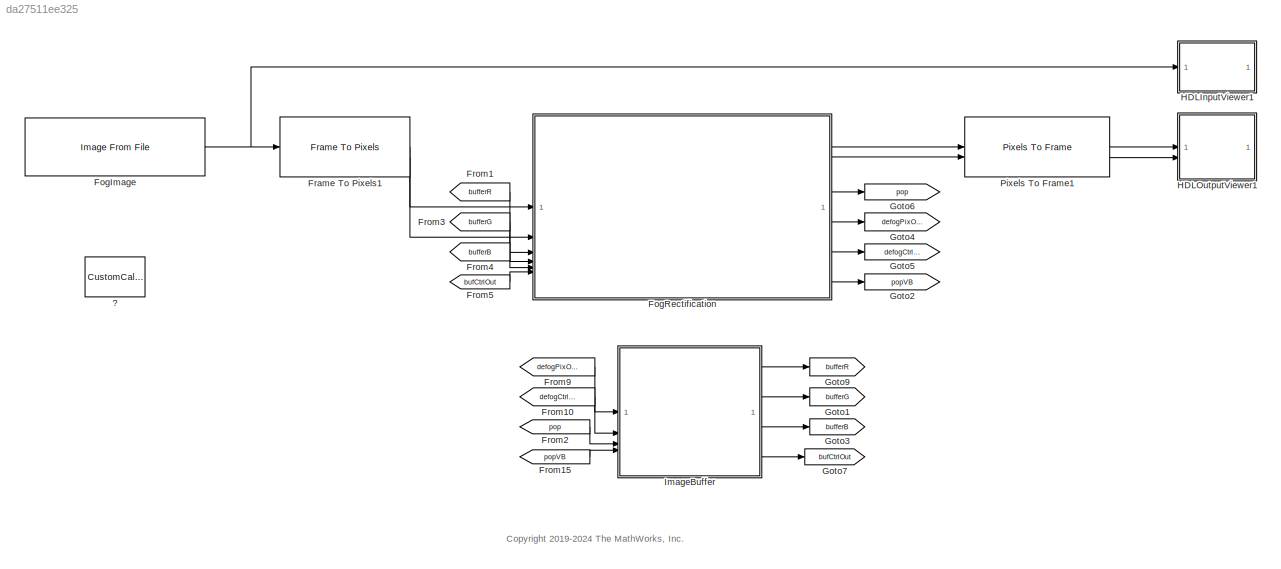
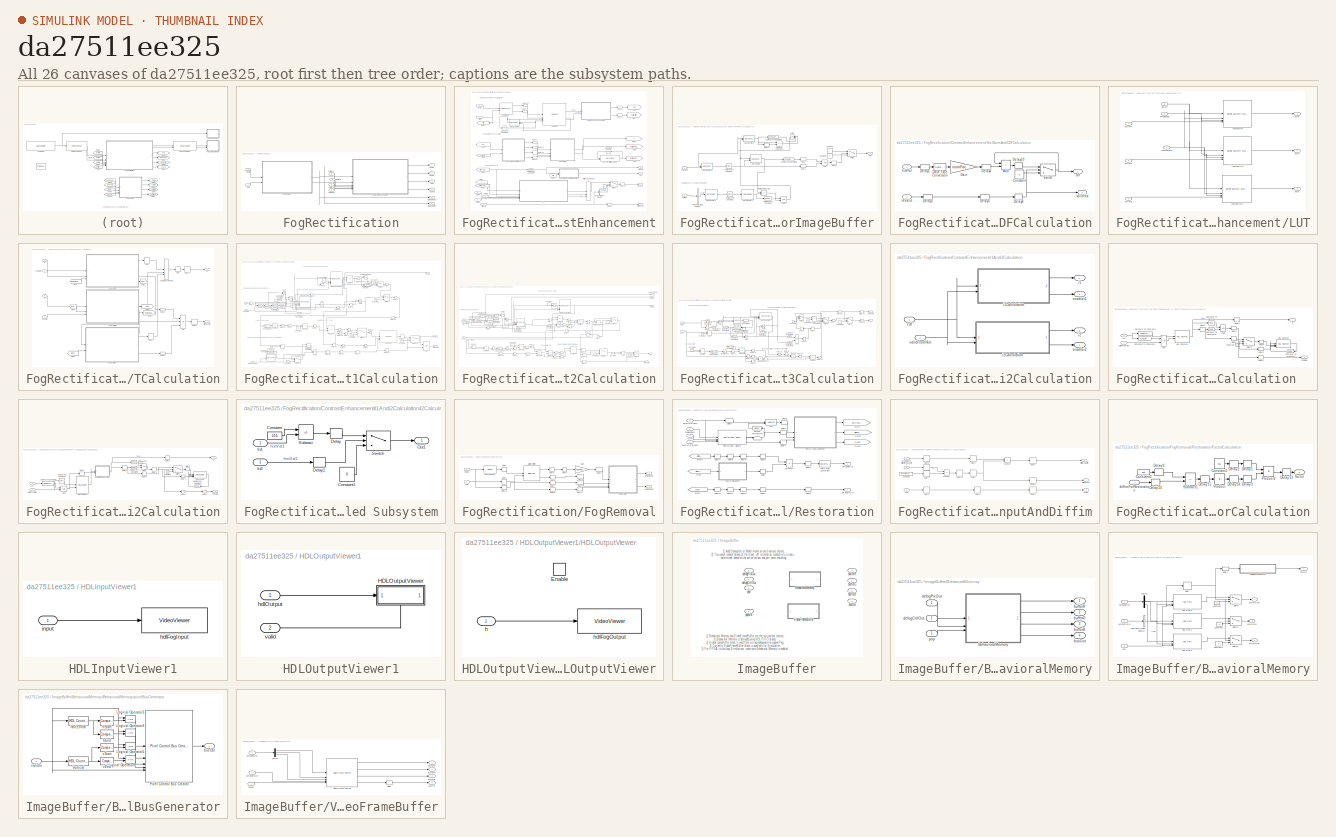
[diagram: thumbnail index - all 26 canvases of the model, root first then tree order]
MODEL slx_da27511ee325
KIND model
CONFIG AbsTol = auto
CONFIG EnableMultiTasking = off
CONFIG FixedStep = auto
CONFIG InitFcn = img_path = get_param('FogRectificationHDL/FogImage','FileName');\nimg = imread(img_path);\n%[m,n,c] = size(img);\nm = 240;\nn = 320;\nc = 3;\ndimI = [m n 3];\ng = m*n;\n\nnumPixels = prod(dimI);\nh1 = [1, 2, 1; 2, 4, 2; 1, 2 ,1]./16 ;\nh = fliplr(flipud(h1));\nT =324*402; % total pixels per line*total video lines\n\nnumBins = 256;\nhazeFactor = 0.9;\nreductionFactor = 0.6;\nnormFactor =  1/g;\nthreshold1 = 0.05;\nth...<+60ch>
CONFIG MaxStep = auto
CONFIG MinStep = auto
CONFIG RelTol = 1e-3
CONFIG SampleTimeConstraint = Unconstrained
CONFIG SolverName = FixedStepDiscrete
CONFIG StartTime = 0.0
CONFIG StopTime = 2*T
BLOCK [CustomCallbackButton] ?
  Configuration = {"components":[{"name":"BackgroundImageComponent","settings":{"image":{"size":[0,0],"src":"default","srcOrientation":"Right"},"position":[0,0,1,1]}},{"name":"ButtonStateComponent","settings":{"buttonType":"momentary","clickFcn":"showExample('visionhdl\/FogRectificationHDLExample')","onValue":1,"position":[0,0,1,1],"pressDelay":"500","pressFcn":"","repeatInterval":"0","states":[{"horizontalAlignmen...<+1981ch>
  CustomBackgroundColor = {"color":[0.9568627451,0.9568627451,0.9568627451],"show":true}
BLOCK [Reference] FogImage  REF=visionsources/Image From File
  SourceBlock = visionsources/Image From File
  SourceType = Image From File
  Tag = vipblks_nd
BLOCK [SubSystem] FogRectification
BLOCK [SubSystem] FogRectification/ContrastEnhancement
BLOCK [Reference] FogRectification/ContrastEnhancement/Compare To Constant1  REF=simulink/Logic and Bit
Operations/Compare
To Constant
  SourceBlock = simulink/Logic and Bit\nOperations/Compare\nTo Constant
  SourceType = Compare To Constant
BLOCK [Reference] FogRectification/ContrastEnhancement/Compare To Constant2  REF=simulink/Logic and Bit
Operations/Compare
To Constant
  SourceBlock = simulink/Logic and Bit\nOperations/Compare\nTo Constant
  SourceType = Compare To Constant
BLOCK [Reference] FogRectification/ContrastEnhancement/Compare To Constant3  REF=simulink/Logic and Bit
Operations/Compare
To Constant
  SourceBlock = simulink/Logic and Bit\nOperations/Compare\nTo Constant
  SourceType = Compare To Constant
BLOCK [Constant] FogRectification/ContrastEnhancement/Constant1
  OutDataTypeStr = uint8
  SampleTime = -1
  Value = 0
BLOCK [Reference] FogRectification/ContrastEnhancement/CounterForWriteAddress  REF=hdlsllib/Sources/HDL Counter
  SourceBlock = hdlsllib/Sources/HDL Counter
  SourceType = HDL Counter
BLOCK [Delay] FogRectification/ContrastEnhancement/Delay1
  DelayLength = 4
  InputPortMap = u0
BLOCK [Delay] FogRectification/ContrastEnhancement/Delay10
  InputPortMap = u0
BLOCK [Delay] FogRectification/ContrastEnhancement/Delay11
  InputPortMap = u0
BLOCK [Delay] FogRectification/ContrastEnhancement/Delay14
  DelayLength = 1
  InputPortMap = u0
BLOCK [Delay] FogRectification/ContrastEnhancement/Delay16
  DelayLength = 1
  InputPortMap = u0
BLOCK [Delay] FogRectification/ContrastEnhancement/Delay17
  DelayLength = 1
  InputPortMap = u0
BLOCK [Delay] FogRectification/ContrastEnhancement/Delay21
  DelayLength = 4
  InputPortMap = u0
BLOCK [Delay] FogRectification/ContrastEnhancement/Delay6
  InputPortMap = u0
BLOCK [Delay] FogRectification/ContrastEnhancement/Delay7
  InputPortMap = u0
BLOCK [Delay] FogRectification/ContrastEnhancement/Delay9
  DelayLength = 1
  InputPortMap = u0
BLOCK [From] FogRectification/ContrastEnhancement/From
  GotoTag = cdf
BLOCK [From] FogRectification/ContrastEnhancement/From1
  GotoTag = validHist
BLOCK [From] FogRectification/ContrastEnhancement/From2
  GotoTag = writeAddress
BLOCK [From] FogRectification/ContrastEnhancement/From3
  GotoTag = writeEnable
BLOCK [From] FogRectification/ContrastEnhancement/From4
  GotoTag = T
BLOCK [From] FogRectification/ContrastEnhancement/From5
  GotoTag = ctrlIn
BLOCK [SubSystem] FogRectification/ContrastEnhancement/GeneratePopForImageBuffer
BLOCK [Logic] FogRectification/ContrastEnhancement/GeneratePopForImageBuffer/AND
  AllPortsSameDT = off
  IconShape = distinctive
  OutDataTypeStr = boolean
BLOCK [Logic] FogRectification/ContrastEnhancement/GeneratePopForImageBuffer/AND1
  AllPortsSameDT = off
  IconShape = distinctive
  OutDataTypeStr = boolean
BLOCK [Logic] FogRectification/ContrastEnhancement/GeneratePopForImageBuffer/AND2
  AllPortsSameDT = off
  IconShape = distinctive
  NameLocation = top
  OutDataTypeStr = boolean
BLOCK [Reference] FogRectification/ContrastEnhancement/GeneratePopForImageBuffer/Compare To Constant  REF=simulink/Logic and Bit
Operations/Compare
To Constant
  SourceBlock = simulink/Logic and Bit\nOperations/Compare\nTo Constant
  SourceType = Compare To Constant
BLOCK [Reference] FogRectification/ContrastEnhancement/GeneratePopForImageBuffer/Compare To Constant1  REF=simulink/Logic and Bit
Operations/Compare
To Constant
  SourceBlock = simulink/Logic and Bit\nOperations/Compare\nTo Constant
  SourceType = Compare To Constant
BLOCK [Reference] FogRectification/ContrastEnhancement/GeneratePopForImageBuffer/Compare To Constant2  REF=simulink/Logic and Bit
Operations/Compare
To Constant
  SourceBlock = simulink/Logic and Bit\nOperations/Compare\nTo Constant
  SourceType = Compare To Constant
BLOCK [Reference] FogRectification/ContrastEnhancement/GeneratePopForImageBuffer/Compare To Constant3  REF=simulink/Logic and Bit
Operations/Compare
To Constant
  SourceBlock = simulink/Logic and Bit\nOperations/Compare\nTo Constant
  SourceType = Compare To Constant
BLOCK [Reference] FogRectification/ContrastEnhancement/GeneratePopForImageBuffer/Compare To Constant4  REF=simulink/Logic and Bit
Operations/Compare
To Constant
  SourceBlock = simulink/Logic and Bit\nOperations/Compare\nTo Constant
  SourceType = Compare To Constant
BLOCK [Constant] FogRectification/ContrastEnhancement/GeneratePopForImageBuffer/Constant
  OutDataTypeStr = boolean
  SampleTime = -1
BLOCK [Constant] FogRectification/ContrastEnhancement/GeneratePopForImageBuffer/Constant1
  OutDataTypeStr = boolean
  SampleTime = -1
  Value = 0
BLOCK [Delay] FogRectification/ContrastEnhancement/GeneratePopForImageBuffer/Delay
  DelayLength = 1
  InputPortMap = u0
BLOCK [Delay] FogRectification/ContrastEnhancement/GeneratePopForImageBuffer/Delay1
  DelayLength = 1
  InputPortMap = u0
BLOCK [Delay] FogRectification/ContrastEnhancement/GeneratePopForImageBuffer/Delay2
  DelayLength = 1
  InputPortMap = u0
BLOCK [Delay] FogRectification/ContrastEnhancement/GeneratePopForImageBuffer/Delay3
  DelayLength = 1
  InputPortMap = u0
BLOCK [Reference] FogRectification/ContrastEnhancement/GeneratePopForImageBuffer/HDL Counter  REF=hdlsllib/Sources/HDL Counter
  SourceBlock = hdlsllib/Sources/HDL Counter
  SourceType = HDL Counter
BLOCK [Reference] FogRectification/ContrastEnhancement/GeneratePopForImageBuffer/HDL Counter1  REF=hdlsllib/Sources/HDL Counter
  SourceBlock = hdlsllib/Sources/HDL Counter
  SourceType = HDL Counter
BLOCK [Reference] FogRectification/ContrastEnhancement/GeneratePopForImageBuffer/HDL Counter2  REF=hdlsllib/Sources/HDL Counter
  SourceBlock = hdlsllib/Sources/HDL Counter
  SourceType = HDL Counter
BLOCK [Reference] FogRectification/ContrastEnhancement/GeneratePopForImageBuffer/HDL Counter3  REF=hdlsllib/Sources/HDL Counter
  SourceBlock = hdlsllib/Sources/HDL Counter
  SourceType = HDL Counter
BLOCK [Reference] FogRectification/ContrastEnhancement/GeneratePopForImageBuffer/HDL Counter4  REF=hdlsllib/Sources/HDL Counter
  SourceBlock = hdlsllib/Sources/HDL Counter
  SourceType = HDL Counter
BLOCK [BusSelector] FogRectification/ContrastEnhancement/GeneratePopForImageBuffer/Pixel Control Bus Selector
  OutputSignals = hStart
BLOCK [RelationalOperator] FogRectification/ContrastEnhancement/GeneratePopForImageBuffer/Relational Operator
  InputSameDT = off
  Operator = ==
  OutDataTypeStr = boolean
  RndMeth = Simplest
BLOCK [RelationalOperator] FogRectification/ContrastEnhancement/GeneratePopForImageBuffer/Relational Operator1
  InputSameDT = off
  Operator = ==
  OutDataTypeStr = boolean
  RndMeth = Simplest
BLOCK [Switch] FogRectification/ContrastEnhancement/GeneratePopForImageBuffer/Switch
  Criteria = u2 > Threshold
  InputSameDT = off
  OutDataTypeStr = boolean
  SaturateOnIntegerOverflow = off
BLOCK [Inport] FogRectification/ContrastEnhancement/GeneratePopForImageBuffer/TgenEnb
BLOCK [Inport] FogRectification/ContrastEnhancement/GeneratePopForImageBuffer/ctrlBus
  Port = 2
BLOCK [Outport] FogRectification/ContrastEnhancement/GeneratePopForImageBuffer/pop
BLOCK [Goto] FogRectification/ContrastEnhancement/Goto
  GotoTag = cdf
BLOCK [Goto] FogRectification/ContrastEnhancement/Goto1
  GotoTag = validHist
BLOCK [Goto] FogRectification/ContrastEnhancement/Goto2
  GotoTag = T
BLOCK [Goto] FogRectification/ContrastEnhancement/Goto3
  GotoTag = writeAddress
BLOCK [Goto] FogRectification/ContrastEnhancement/Goto4
  GotoTag = writeEnable
BLOCK [Goto] FogRectification/ContrastEnhancement/Goto5
  GotoTag = ctrlIn
BLOCK [Reference] FogRectification/ContrastEnhancement/HDL Counter1  REF=hdlsllib/Sources/HDL Counter
  SourceBlock = hdlsllib/Sources/HDL Counter
  SourceType = HDL Counter
BLOCK [SubSystem] FogRectification/ContrastEnhancement/HistNormAndCDFCalculation
BLOCK [Sum] FogRectification/ContrastEnhancement/HistNormAndCDFCalculation/Add
  AccumDataTypeStr = Inherit: Same as first input
  IconShape = rectangular
BLOCK [Constant] FogRectification/ContrastEnhancement/HistNormAndCDFCalculation/Constant
  OutDataTypeStr = Inherit: Inherit via back propagation
  SampleTime = -1
  Value = 0
BLOCK [DataTypeConversion] FogRectification/ContrastEnhancement/HistNormAndCDFCalculation/Data Type Conversion
  OutDataTypeStr = fixdt(0,32,16)
  RndMeth = Nearest
  SaturateOnIntegerOverflow = off
BLOCK [Delay] FogRectification/ContrastEnhancement/HistNormAndCDFCalculation/Delay2
  InputPortMap = u0
BLOCK [Delay] FogRectification/ContrastEnhancement/HistNormAndCDFCalculation/Delay20
  DelayLength = 1
  InputPortMap = u0
BLOCK [Delay] FogRectification/ContrastEnhancement/HistNormAndCDFCalculation/Delay3
  InputPortMap = u0
BLOCK [Delay] FogRectification/ContrastEnhancement/HistNormAndCDFCalculation/Delay4
  InputPortMap = u0
BLOCK [Delay] FogRectification/ContrastEnhancement/HistNormAndCDFCalculation/Delay5
  InputPortMap = u0
BLOCK [Delay] FogRectification/ContrastEnhancement/HistNormAndCDFCalculation/Delay8
  DelayLength = 1
  InputPortMap = u0
BLOCK [Gain] FogRectification/ContrastEnhancement/HistNormAndCDFCalculation/Gain
  Gain = normFactor
  OutDataTypeStr = fixdt(0,32,16)
  ParamDataTypeStr = fixdt(0,16,31)
  RndMeth = Nearest
BLOCK [Switch] FogRectification/ContrastEnhancement/HistNormAndCDFCalculation/Switch
  Criteria = u2 > Threshold
  InputSameDT = off
  SaturateOnIntegerOverflow = off
BLOCK [Outport] FogRectification/ContrastEnhancement/HistNormAndCDFCalculation/cdf
BLOCK [Inport] FogRectification/ContrastEnhancement/HistNormAndCDFCalculation/histVal
BLOCK [Inport] FogRectification/ContrastEnhancement/HistNormAndCDFCalculation/rdValid
  Port = 2
BLOCK [Outport] FogRectification/ContrastEnhancement/HistNormAndCDFCalculation/validHist
  Port = 2
BLOCK [Reference] FogRectification/ContrastEnhancement/Histogram  REF=visionhdlstatistics/Histogram
  SourceBlock = visionhdlstatistics/Histogram
  SourceType = Histogram
BLOCK [SubSystem] FogRectification/ContrastEnhancement/LUT
BLOCK [Reference] FogRectification/ContrastEnhancement/LUT/InputBuffer  REF=hdlsllib/HDL RAMs/Simple Dual Port
RAM System
  SourceBlock = hdlsllib/HDL RAMs/Simple Dual Port\nRAM System
  SourceType = hdl.RAM
BLOCK [Reference] FogRectification/ContrastEnhancement/LUT/InputBuffer1  REF=hdlsllib/HDL RAMs/Simple Dual Port
RAM System
  SourceBlock = hdlsllib/HDL RAMs/Simple Dual Port\nRAM System
  SourceType = hdl.RAM
BLOCK [Reference] FogRectification/ContrastEnhancement/LUT/InputBuffer2  REF=hdlsllib/HDL RAMs/Simple Dual Port
RAM System
  SourceBlock = hdlsllib/HDL RAMs/Simple Dual Port\nRAM System
  SourceType = hdl.RAM
BLOCK [Inport] FogRectification/ContrastEnhancement/LUT/bufferB
  Port = 6
BLOCK [Inport] FogRectification/ContrastEnhancement/LUT/bufferG
  Port = 5
BLOCK [Inport] FogRectification/ContrastEnhancement/LUT/bufferR
  Port = 4
BLOCK [Inport] FogRectification/ContrastEnhancement/LUT/dataIn
BLOCK [Outport] FogRectification/ContrastEnhancement/LUT/outB
  Port = 3
BLOCK [Outport] FogRectification/ContrastEnhancement/LUT/outG
  Port = 2
BLOCK [Outport] FogRectification/ContrastEnhancement/LUT/outR
BLOCK [Inport] FogRectification/ContrastEnhancement/LUT/writeAddress
  Port = 3
BLOCK [Inport] FogRectification/ContrastEnhancement/LUT/writeEnable
  Port = 2
BLOCK [Concatenate] FogRectification/ContrastEnhancement/Matrix Concatenate1
  ConcatenateDimension = 2
  Mode = Multidimensional array
  NumInputs = 3
BLOCK [BusSelector] FogRectification/ContrastEnhancement/Pixel Control Bus Selector
  OutputSignals = valid
BLOCK [Reference] FogRectification/ContrastEnhancement/RGBtoGray  REF=visionhdlconversions/Color Space Converter
  SourceBlock = visionhdlconversions/Color Space Converter
  SourceType = Color Space Converter
BLOCK [Switch] FogRectification/ContrastEnhancement/Switch1
  Criteria = u2 ~= 0
  InputSameDT = off
  SaturateOnIntegerOverflow = off
BLOCK [SubSystem] FogRectification/ContrastEnhancement/TCalculation
BLOCK [Delay] FogRectification/ContrastEnhancement/TCalculation/Delay
  DelayLength = 1
  InputPortMap = u0
BLOCK [Delay] FogRectification/ContrastEnhancement/TCalculation/Delay1
  DelayLength = 1
  InputPortMap = u0
BLOCK [Delay] FogRectification/ContrastEnhancement/TCalculation/Delay2
  InputPortMap = u0
BLOCK [Delay] FogRectification/ContrastEnhancement/TCalculation/Delay3
  DelayLength = 1
  InputPortMap = u0
BLOCK [Delay] FogRectification/ContrastEnhancement/TCalculation/Delay4
  InputPortMap = u0
BLOCK [Delay] FogRectification/ContrastEnhancement/TCalculation/Delay5
  DelayLength = 1
  InputPortMap = u0
BLOCK [From] FogRectification/ContrastEnhancement/TCalculation/From
  GotoTag = i2HighEnable
BLOCK [From] FogRectification/ContrastEnhancement/TCalculation/From1
  GotoTag = t2Rst
BLOCK [From] FogRectification/ContrastEnhancement/TCalculation/From2
  GotoTag = i1Val
BLOCK [Goto] FogRectification/ContrastEnhancement/TCalculation/Goto
  GotoTag = i2HighEnable
BLOCK [Goto] FogRectification/ContrastEnhancement/TCalculation/Goto1
  GotoTag = t2Rst
BLOCK [Goto] FogRectification/ContrastEnhancement/TCalculation/Goto2
  GotoTag = i1Val
BLOCK [MinMax] FogRectification/ContrastEnhancement/TCalculation/Max
  Function = max
BLOCK [Logic] FogRectification/ContrastEnhancement/TCalculation/OR
  AllPortsSameDT = off
  IconShape = distinctive
  Inputs = 3
  Operator = OR
  OutDataTypeStr = boolean
BLOCK [Outport] FogRectification/ContrastEnhancement/TCalculation/T
BLOCK [Concatenate] FogRectification/ContrastEnhancement/TCalculation/Vector Concatenate
  NumInputs = 3
BLOCK [Inport] FogRectification/ContrastEnhancement/TCalculation/enablei1
  Port = 2
BLOCK [Inport] FogRectification/ContrastEnhancement/TCalculation/enablei2
  Port = 4
BLOCK [Inport] FogRectification/ContrastEnhancement/TCalculation/i1
BLOCK [Inport] FogRectification/ContrastEnhancement/TCalculation/i2
  Port = 3
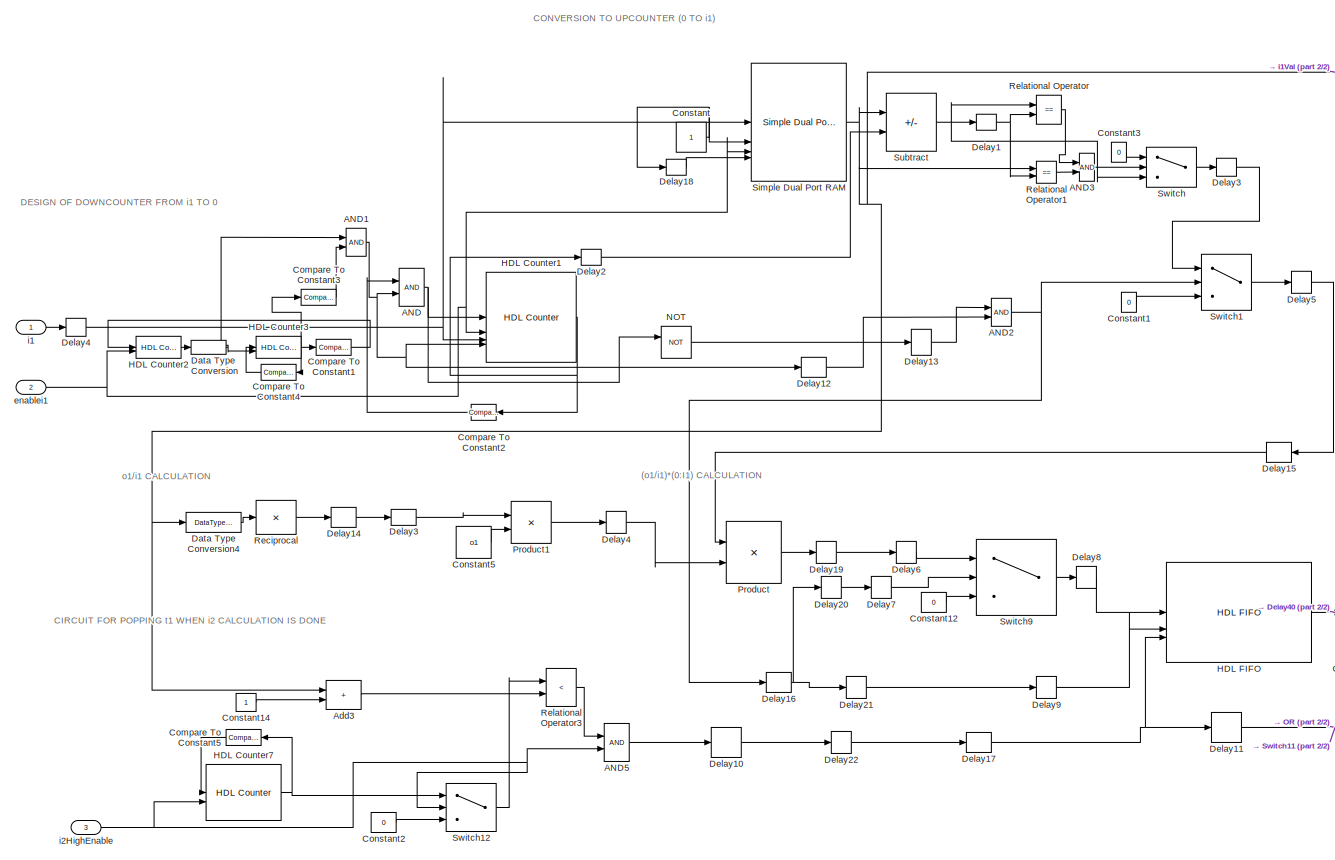
[diagram: FogRectification/ContrastEnhancement/TCalculation/t1Calculation - part 1/2, most of the canvas]
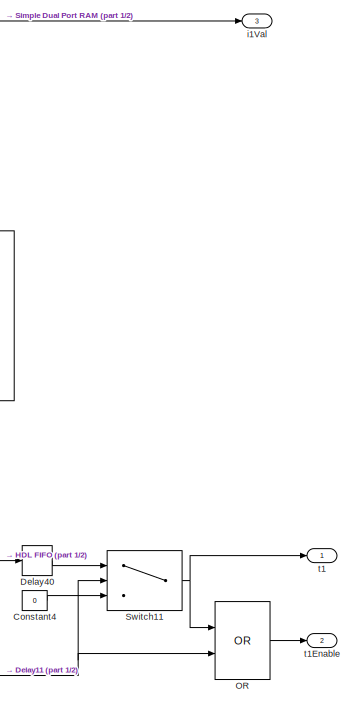
[diagram: FogRectification/ContrastEnhancement/TCalculation/t1Calculation - part 2/2, right side, full height]
BLOCK [SubSystem] FogRectification/ContrastEnhancement/TCalculation/t1Calculation
BLOCK [Delay] FogRectification/ContrastEnhancement/TCalculation/t1Calculation/ Delay3
  DelayLength = 1
  InputPortMap = u0
BLOCK [Delay] FogRectification/ContrastEnhancement/TCalculation/t1Calculation/ Delay4
  InputPortMap = u0
BLOCK [Logic] FogRectification/ContrastEnhancement/TCalculation/t1Calculation/AND
  AllPortsSameDT = off
  IconShape = distinctive
  OutDataTypeStr = boolean
BLOCK [Logic] FogRectification/ContrastEnhancement/TCalculation/t1Calculation/AND1
  AllPortsSameDT = off
  IconShape = distinctive
  OutDataTypeStr = boolean
BLOCK [Logic] FogRectification/ContrastEnhancement/TCalculation/t1Calculation/AND2
  AllPortsSameDT = off
  IconShape = distinctive
  OutDataTypeStr = boolean
BLOCK [Logic] FogRectification/ContrastEnhancement/TCalculation/t1Calculation/AND3
  AllPortsSameDT = off
  IconShape = distinctive
  OutDataTypeStr = boolean
BLOCK [Logic] FogRectification/ContrastEnhancement/TCalculation/t1Calculation/AND5
  AllPortsSameDT = off
  IconShape = distinctive
  OutDataTypeStr = boolean
BLOCK [Sum] FogRectification/ContrastEnhancement/TCalculation/t1Calculation/Add3
  IconShape = rectangular
  OutDataTypeStr = uint8
BLOCK [Reference] FogRectification/ContrastEnhancement/TCalculation/t1Calculation/Compare To Constant1  REF=simulink/Logic and Bit
Operations/Compare
To Constant
  SourceBlock = simulink/Logic and Bit\nOperations/Compare\nTo Constant
  SourceType = Compare To Constant
BLOCK [Reference] FogRectification/ContrastEnhancement/TCalculation/t1Calculation/Compare To Constant2  REF=simulink/Logic and Bit
Operations/Compare
To Constant
  SourceBlock = simulink/Logic and Bit\nOperations/Compare\nTo Constant
  SourceType = Compare To Constant
BLOCK [Reference] FogRectification/ContrastEnhancement/TCalculation/t1Calculation/Compare To Constant3  REF=simulink/Logic and Bit
Operations/Compare
To Constant
  SourceBlock = simulink/Logic and Bit\nOperations/Compare\nTo Constant
  SourceType = Compare To Constant
BLOCK [Reference] FogRectification/ContrastEnhancement/TCalculation/t1Calculation/Compare To Constant4  REF=simulink/Logic and Bit
Operations/Compare
To Constant
  SourceBlock = simulink/Logic and Bit\nOperations/Compare\nTo Constant
  SourceType = Compare To Constant
BLOCK [Reference] FogRectification/ContrastEnhancement/TCalculation/t1Calculation/Compare To Constant5  REF=simulink/Logic and Bit
Operations/Compare
To Constant
  SourceBlock = simulink/Logic and Bit\nOperations/Compare\nTo Constant
  SourceType = Compare To Constant
BLOCK [Constant] FogRectification/ContrastEnhancement/TCalculation/t1Calculation/Constant
  OutDataTypeStr = uint8
  SampleTime = -1
BLOCK [Constant] FogRectification/ContrastEnhancement/TCalculation/t1Calculation/Constant1
  OutDataTypeStr = uint8
  SampleTime = -1
  Value = 0
BLOCK [Constant] FogRectification/ContrastEnhancement/TCalculation/t1Calculation/Constant12
  OutDataTypeStr = uint8
  SampleTime = -1
  Value = 0
BLOCK [Constant] FogRectification/ContrastEnhancement/TCalculation/t1Calculation/Constant14
  OutDataTypeStr = uint8
  SampleTime = -1
BLOCK [Constant] FogRectification/ContrastEnhancement/TCalculation/t1Calculation/Constant2
  OutDataTypeStr = uint8
  SampleTime = -1
  Value = 0
BLOCK [Constant] FogRectification/ContrastEnhancement/TCalculation/t1Calculation/Constant3
  OutDataTypeStr = uint8
  SampleTime = -1
  Value = 0
BLOCK [Constant] FogRectification/ContrastEnhancement/TCalculation/t1Calculation/Constant4
  OutDataTypeStr = uint8
  SampleTime = -1
  Value = 0
BLOCK [Constant] FogRectification/ContrastEnhancement/TCalculation/t1Calculation/Constant5
  OutDataTypeStr = uint8
  SampleTime = -1
  Value = o1
BLOCK [DataTypeConversion] FogRectification/ContrastEnhancement/TCalculation/t1Calculation/Data Type Conversion
  OutDataTypeStr = boolean
  RndMeth = Floor
  SaturateOnIntegerOverflow = off
BLOCK [DataTypeConversion] FogRectification/ContrastEnhancement/TCalculation/t1Calculation/Data Type Conversion4
  OutDataTypeStr = fixdt(0,32,0)
  RndMeth = Floor
  SaturateOnIntegerOverflow = off
BLOCK [Delay] FogRectification/ContrastEnhancement/TCalculation/t1Calculation/Delay1
  DelayLength = 1
  InputPortMap = u0
BLOCK [Delay] FogRectification/ContrastEnhancement/TCalculation/t1Calculation/Delay10
  InputPortMap = u0
BLOCK [Delay] FogRectification/ContrastEnhancement/TCalculation/t1Calculation/Delay11
  InputPortMap = u0
BLOCK [Delay] FogRectification/ContrastEnhancement/TCalculation/t1Calculation/Delay12
  InputPortMap = u0
BLOCK [Delay] FogRectification/ContrastEnhancement/TCalculation/t1Calculation/Delay13
  DelayLength = 3
  InputPortMap = u0
BLOCK [Delay] FogRectification/ContrastEnhancement/TCalculation/t1Calculation/Delay14
  DelayLength = 44
  InputPortMap = u0
BLOCK [Delay] FogRectification/ContrastEnhancement/TCalculation/t1Calculation/Delay15
  DelayLength = 44
  InputPortMap = u0
BLOCK [Delay] FogRectification/ContrastEnhancement/TCalculation/t1Calculation/Delay16
  DelayLength = 44
  InputPortMap = u0
BLOCK [Delay] FogRectification/ContrastEnhancement/TCalculation/t1Calculation/Delay17
  DelayLength = 44
  InputPortMap = u0
BLOCK [Delay] FogRectification/ContrastEnhancement/TCalculation/t1Calculation/Delay18
  DelayLength = 1
  InputPortMap = u0
BLOCK [Delay] FogRectification/ContrastEnhancement/TCalculation/t1Calculation/Delay19
  InputPortMap = u0
BLOCK [Delay] FogRectification/ContrastEnhancement/TCalculation/t1Calculation/Delay2
  DelayLength = 1
  InputPortMap = u0
BLOCK [Delay] FogRectification/ContrastEnhancement/TCalculation/t1Calculation/Delay20
  InputPortMap = u0
BLOCK [Delay] FogRectification/ContrastEnhancement/TCalculation/t1Calculation/Delay21
  InputPortMap = u0
BLOCK [Delay] FogRectification/ContrastEnhancement/TCalculation/t1Calculation/Delay22
  InputPortMap = u0
BLOCK [Delay] FogRectification/ContrastEnhancement/TCalculation/t1Calculation/Delay3
  DelayLength = 1
  InputPortMap = u0
BLOCK [Delay] FogRectification/ContrastEnhancement/TCalculation/t1Calculation/Delay4
  InputPortMap = u0
BLOCK [Delay] FogRectification/ContrastEnhancement/TCalculation/t1Calculation/Delay40
  DelayLength = 1
  InputPortMap = u0
BLOCK [Delay] FogRectification/ContrastEnhancement/TCalculation/t1Calculation/Delay5
  DelayLength = 1
  InputPortMap = u0
BLOCK [Delay] FogRectification/ContrastEnhancement/TCalculation/t1Calculation/Delay6
  DelayLength = 1
  InputPortMap = u0
BLOCK [Delay] FogRectification/ContrastEnhancement/TCalculation/t1Calculation/Delay7
  InputPortMap = u0
BLOCK [Delay] FogRectification/ContrastEnhancement/TCalculation/t1Calculation/Delay8
  DelayLength = 1
  InputPortMap = u0
BLOCK [Delay] FogRectification/ContrastEnhancement/TCalculation/t1Calculation/Delay9
  DelayLength = 3
  InputPortMap = u0
BLOCK [Reference] FogRectification/ContrastEnhancement/TCalculation/t1Calculation/HDL Counter1  REF=hdlsllib/Sources/HDL Counter
  SourceBlock = hdlsllib/Sources/HDL Counter
  SourceType = HDL Counter
BLOCK [Reference] FogRectification/ContrastEnhancement/TCalculation/t1Calculation/HDL Counter2  REF=hdlsllib/Sources/HDL Counter
  SourceBlock = hdlsllib/Sources/HDL Counter
  SourceType = HDL Counter
BLOCK [Reference] FogRectification/ContrastEnhancement/TCalculation/t1Calculation/HDL Counter3  REF=hdlsllib/Sources/HDL Counter
  SourceBlock = hdlsllib/Sources/HDL Counter
  SourceType = HDL Counter
BLOCK [Reference] FogRectification/ContrastEnhancement/TCalculation/t1Calculation/HDL Counter7  REF=hdlsllib/Sources/HDL Counter
  SourceBlock = hdlsllib/Sources/HDL Counter
  SourceType = HDL Counter
BLOCK [Reference] FogRectification/ContrastEnhancement/TCalculation/t1Calculation/HDL FIFO  REF=hdlsllib/HDL RAMs/HDL FIFO
  SourceBlock = hdlsllib/HDL RAMs/HDL FIFO
  SourceType = HDL_FIFO
BLOCK [Logic] FogRectification/ContrastEnhancement/TCalculation/t1Calculation/NOT
  AllPortsSameDT = off
  IconShape = distinctive
  Operator = NOT
  OutDataTypeStr = boolean
BLOCK [Logic] FogRectification/ContrastEnhancement/TCalculation/t1Calculation/OR
  AllPortsSameDT = off
  IconShape = distinctive
  Operator = OR
  OutDataTypeStr = boolean
BLOCK [Product] FogRectification/ContrastEnhancement/TCalculation/t1Calculation/Product
  OutDataTypeStr = uint8
BLOCK [Product] FogRectification/ContrastEnhancement/TCalculation/t1Calculation/Product1
  OutDataTypeStr = fixdt(0,32,15)
BLOCK [Product] FogRectification/ContrastEnhancement/TCalculation/t1Calculation/Reciprocal
  Inputs = /
  RndMeth = Zero
  SaturateOnIntegerOverflow = on
BLOCK [RelationalOperator] FogRectification/ContrastEnhancement/TCalculation/t1Calculation/Relational Operator
  InputSameDT = off
  Operator = ==
  OutDataTypeStr = boolean
  RndMeth = Simplest
BLOCK [RelationalOperator] FogRectification/ContrastEnhancement/TCalculation/t1Calculation/Relational Operator1
  InputSameDT = off
  Operator = ==
  OutDataTypeStr = boolean
  RndMeth = Simplest
BLOCK [RelationalOperator] FogRectification/ContrastEnhancement/TCalculation/t1Calculation/Relational Operator3
  InputSameDT = off
  Operator = <
  OutDataTypeStr = boolean
  RndMeth = Simplest
BLOCK [Reference] FogRectification/ContrastEnhancement/TCalculation/t1Calculation/Simple Dual Port RAM  REF=hdlsllib/HDL RAMs/Simple Dual Port RAM
  SourceBlock = hdlsllib/HDL RAMs/Simple Dual Port RAM
  SourceType = Simple Dual-port RAM
BLOCK [Sum] FogRectification/ContrastEnhancement/TCalculation/t1Calculation/Subtract
  IconShape = rectangular
  Inputs = +-
BLOCK [Switch] FogRectification/ContrastEnhancement/TCalculation/t1Calculation/Switch
  Criteria = u2 ~= 0
  InputSameDT = off
  SaturateOnIntegerOverflow = off
BLOCK [Switch] FogRectification/ContrastEnhancement/TCalculation/t1Calculation/Switch1
  Criteria = u2 ~= 0
  InputSameDT = off
  SaturateOnIntegerOverflow = off
BLOCK [Switch] FogRectification/ContrastEnhancement/TCalculation/t1Calculation/Switch11
  Criteria = u2 ~= 0
  InputSameDT = off
  SaturateOnIntegerOverflow = off
BLOCK [Switch] FogRectification/ContrastEnhancement/TCalculation/t1Calculation/Switch12
  Criteria = u2 > Threshold
  InputSameDT = off
  SaturateOnIntegerOverflow = off
BLOCK [Switch] FogRectification/ContrastEnhancement/TCalculation/t1Calculation/Switch9
  Criteria = u2 ~= 0
  InputSameDT = off
  SaturateOnIntegerOverflow = off
BLOCK [Inport] FogRectification/ContrastEnhancement/TCalculation/t1Calculation/enablei1
  Port = 2
BLOCK [Inport] FogRectification/ContrastEnhancement/TCalculation/t1Calculation/i1
BLOCK [Outport] FogRectification/ContrastEnhancement/TCalculation/t1Calculation/i1Val
  Port = 3
BLOCK [Inport] FogRectification/ContrastEnhancement/TCalculation/t1Calculation/i2HighEnable
  Port = 3
BLOCK [Outport] FogRectification/ContrastEnhancement/TCalculation/t1Calculation/t1
BLOCK [Outport] FogRectification/ContrastEnhancement/TCalculation/t1Calculation/t1Enable
  Port = 2
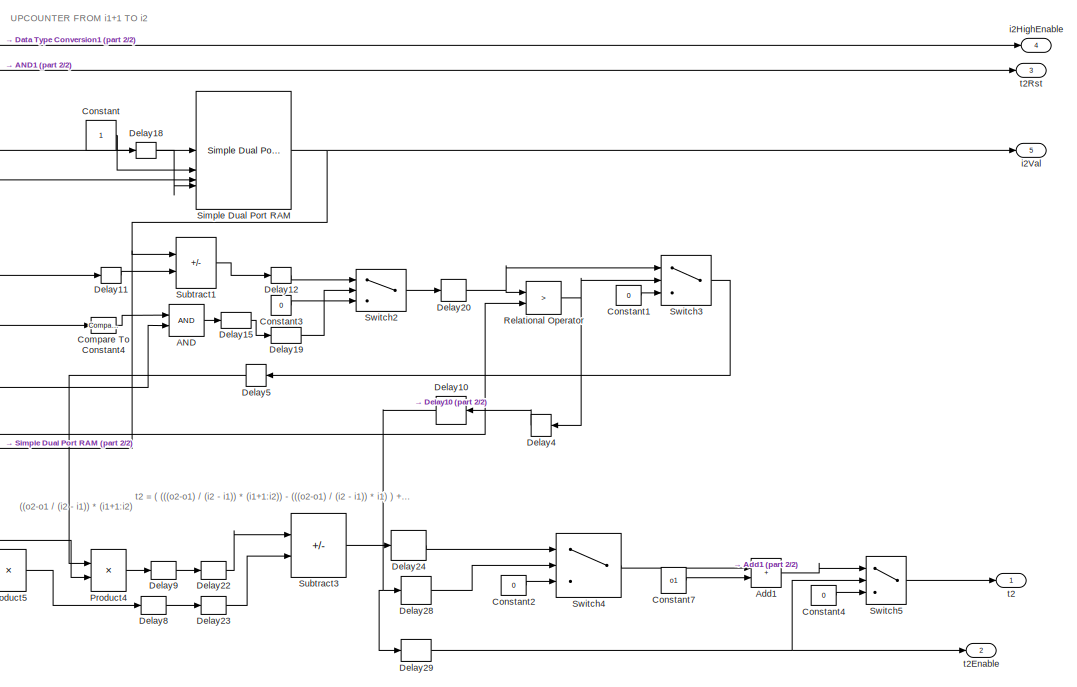
[diagram: FogRectification/ContrastEnhancement/TCalculation/t2Calculation - part 1/2, right side, full height]
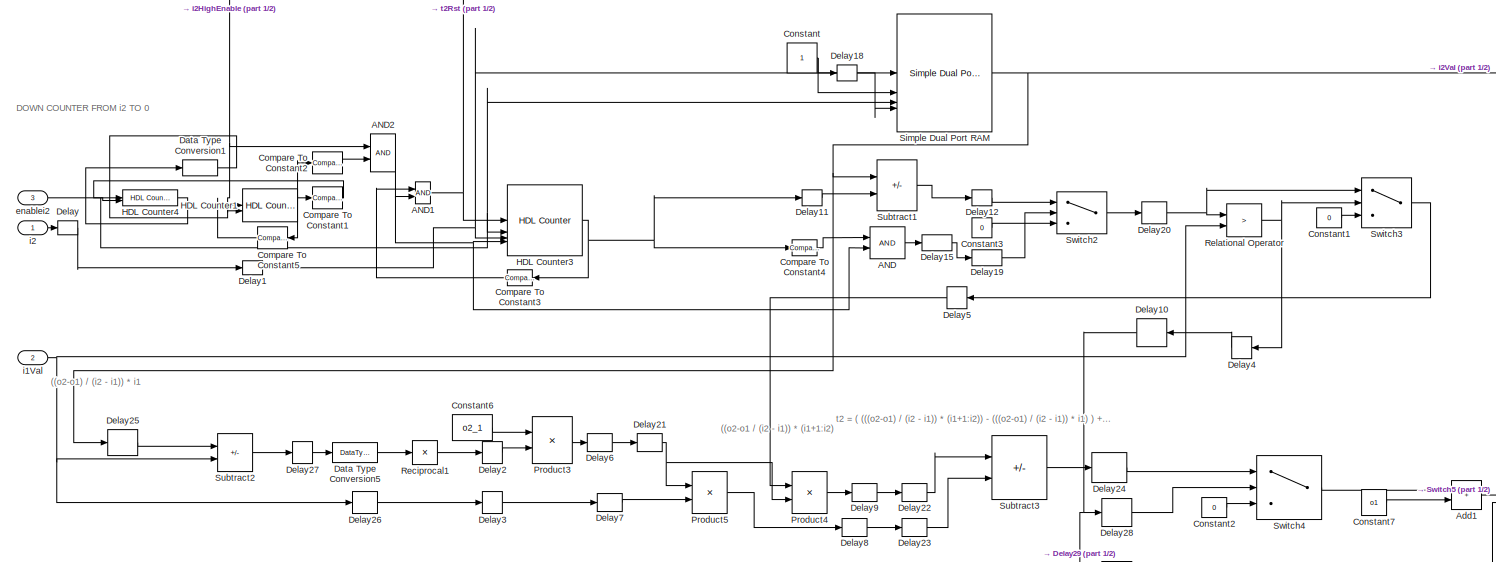
[diagram: FogRectification/ContrastEnhancement/TCalculation/t2Calculation - part 2/2, most of the canvas]
BLOCK [SubSystem] FogRectification/ContrastEnhancement/TCalculation/t2Calculation
BLOCK [Logic] FogRectification/ContrastEnhancement/TCalculation/t2Calculation/AND
  AllPortsSameDT = off
  IconShape = distinctive
  OutDataTypeStr = boolean
BLOCK [Logic] FogRectification/ContrastEnhancement/TCalculation/t2Calculation/AND1
  AllPortsSameDT = off
  IconShape = distinctive
  OutDataTypeStr = boolean
BLOCK [Logic] FogRectification/ContrastEnhancement/TCalculation/t2Calculation/AND2
  AllPortsSameDT = off
  IconShape = distinctive
  OutDataTypeStr = boolean
BLOCK [Sum] FogRectification/ContrastEnhancement/TCalculation/t2Calculation/Add1
  IconShape = rectangular
  OutDataTypeStr = uint8
BLOCK [Reference] FogRectification/ContrastEnhancement/TCalculation/t2Calculation/Compare To Constant1  REF=simulink/Logic and Bit
Operations/Compare
To Constant
  SourceBlock = simulink/Logic and Bit\nOperations/Compare\nTo Constant
  SourceType = Compare To Constant
BLOCK [Reference] FogRectification/ContrastEnhancement/TCalculation/t2Calculation/Compare To Constant2  REF=simulink/Logic and Bit
Operations/Compare
To Constant
  SourceBlock = simulink/Logic and Bit\nOperations/Compare\nTo Constant
  SourceType = Compare To Constant
BLOCK [Reference] FogRectification/ContrastEnhancement/TCalculation/t2Calculation/Compare To Constant3  REF=simulink/Logic and Bit
Operations/Compare
To Constant
  SourceBlock = simulink/Logic and Bit\nOperations/Compare\nTo Constant
  SourceType = Compare To Constant
BLOCK [Reference] FogRectification/ContrastEnhancement/TCalculation/t2Calculation/Compare To Constant4  REF=simulink/Logic and Bit
Operations/Compare
To Constant
  SourceBlock = simulink/Logic and Bit\nOperations/Compare\nTo Constant
  SourceType = Compare To Constant
BLOCK [Reference] FogRectification/ContrastEnhancement/TCalculation/t2Calculation/Compare To Constant5  REF=simulink/Logic and Bit
Operations/Compare
To Constant
  SourceBlock = simulink/Logic and Bit\nOperations/Compare\nTo Constant
  SourceType = Compare To Constant
BLOCK [Constant] FogRectification/ContrastEnhancement/TCalculation/t2Calculation/Constant
  OutDataTypeStr = uint8
  SampleTime = -1
BLOCK [Constant] FogRectification/ContrastEnhancement/TCalculation/t2Calculation/Constant1
  OutDataTypeStr = uint8
  SampleTime = -1
  Value = 0
BLOCK [Constant] FogRectification/ContrastEnhancement/TCalculation/t2Calculation/Constant2
  OutDataTypeStr = uint8
  SampleTime = -1
  Value = 0
BLOCK [Constant] FogRectification/ContrastEnhancement/TCalculation/t2Calculation/Constant3
  OutDataTypeStr = uint8
  SampleTime = -1
  Value = 0
BLOCK [Constant] FogRectification/ContrastEnhancement/TCalculation/t2Calculation/Constant4
  OutDataTypeStr = uint8
  SampleTime = -1
  Value = 0
BLOCK [Constant] FogRectification/ContrastEnhancement/TCalculation/t2Calculation/Constant6
  OutDataTypeStr = uint8
  SampleTime = -1
  Value = o2_1
BLOCK [Constant] FogRectification/ContrastEnhancement/TCalculation/t2Calculation/Constant7
  OutDataTypeStr = uint8
  SampleTime = -1
  Value = o1
BLOCK [DataTypeConversion] FogRectification/ContrastEnhancement/TCalculation/t2Calculation/Data Type Conversion1
  OutDataTypeStr = boolean
  RndMeth = Floor
  SaturateOnIntegerOverflow = off
BLOCK [DataTypeConversion] FogRectification/ContrastEnhancement/TCalculation/t2Calculation/Data Type Conversion5
  OutDataTypeStr = fixdt(0,32,0)
  RndMeth = Floor
  SaturateOnIntegerOverflow = off
BLOCK [Delay] FogRectification/ContrastEnhancement/TCalculation/t2Calculation/Delay
  InputPortMap = u0
BLOCK [Delay] FogRectification/ContrastEnhancement/TCalculation/t2Calculation/Delay1
  DelayLength = 1
  InputPortMap = u0
BLOCK [Delay] FogRectification/ContrastEnhancement/TCalculation/t2Calculation/Delay10
  InputPortMap = u0
BLOCK [Delay] FogRectification/ContrastEnhancement/TCalculation/t2Calculation/Delay11
  DelayLength = 1
  InputPortMap = u0
BLOCK [Delay] FogRectification/ContrastEnhancement/TCalculation/t2Calculation/Delay12
  DelayLength = 1
  InputPortMap = u0
BLOCK [Delay] FogRectification/ContrastEnhancement/TCalculation/t2Calculation/Delay15
  DelayLength = 1
  InputPortMap = u0
BLOCK [Delay] FogRectification/ContrastEnhancement/TCalculation/t2Calculation/Delay18
  DelayLength = 1
  InputPortMap = u0
BLOCK [Delay] FogRectification/ContrastEnhancement/TCalculation/t2Calculation/Delay19
  InputPortMap = u0
BLOCK [Delay] FogRectification/ContrastEnhancement/TCalculation/t2Calculation/Delay2
  DelayLength = 44
  InputPortMap = u0
BLOCK [Delay] FogRectification/ContrastEnhancement/TCalculation/t2Calculation/Delay20
  DelayLength = 1
  InputPortMap = u0
BLOCK [Delay] FogRectification/ContrastEnhancement/TCalculation/t2Calculation/Delay21
  DelayLength = 1
  InputPortMap = u0
BLOCK [Delay] FogRectification/ContrastEnhancement/TCalculation/t2Calculation/Delay22
  DelayLength = 1
  InputPortMap = u0
BLOCK [Delay] FogRectification/ContrastEnhancement/TCalculation/t2Calculation/Delay23
  DelayLength = 1
  InputPortMap = u0
BLOCK [Delay] FogRectification/ContrastEnhancement/TCalculation/t2Calculation/Delay24
  DelayLength = 1
  InputPortMap = u0
BLOCK [Delay] FogRectification/ContrastEnhancement/TCalculation/t2Calculation/Delay25
  DelayLength = 1
  InputPortMap = u0
BLOCK [Delay] FogRectification/ContrastEnhancement/TCalculation/t2Calculation/Delay26
  DelayLength = 1
  InputPortMap = u0
BLOCK [Delay] FogRectification/ContrastEnhancement/TCalculation/t2Calculation/Delay27
  DelayLength = 1
  InputPortMap = u0
BLOCK [Delay] FogRectification/ContrastEnhancement/TCalculation/t2Calculation/Delay28
  InputPortMap = u0
BLOCK [Delay] FogRectification/ContrastEnhancement/TCalculation/t2Calculation/Delay29
  InputPortMap = u0
BLOCK [Delay] FogRectification/ContrastEnhancement/TCalculation/t2Calculation/Delay3
  DelayLength = 44
  InputPortMap = u0
BLOCK [Delay] FogRectification/ContrastEnhancement/TCalculation/t2Calculation/Delay4
  DelayLength = 44
  InputPortMap = u0
BLOCK [Delay] FogRectification/ContrastEnhancement/TCalculation/t2Calculation/Delay5
  DelayLength = 44
  InputPortMap = u0
BLOCK [Delay] FogRectification/ContrastEnhancement/TCalculation/t2Calculation/Delay6
  InputPortMap = u0
BLOCK [Delay] FogRectification/ContrastEnhancement/TCalculation/t2Calculation/Delay7
  InputPortMap = u0
BLOCK [Delay] FogRectification/ContrastEnhancement/TCalculation/t2Calculation/Delay8
  InputPortMap = u0
BLOCK [Delay] FogRectification/ContrastEnhancement/TCalculation/t2Calculation/Delay9
  InputPortMap = u0
BLOCK [Reference] FogRectification/ContrastEnhancement/TCalculation/t2Calculation/HDL Counter1  REF=hdlsllib/Sources/HDL Counter
  SourceBlock = hdlsllib/Sources/HDL Counter
  SourceType = HDL Counter
BLOCK [Reference] FogRectification/ContrastEnhancement/TCalculation/t2Calculation/HDL Counter3  REF=hdlsllib/Sources/HDL Counter
  SourceBlock = hdlsllib/Sources/HDL Counter
  SourceType = HDL Counter
BLOCK [Reference] FogRectification/ContrastEnhancement/TCalculation/t2Calculation/HDL Counter4  REF=hdlsllib/Sources/HDL Counter
  SourceBlock = hdlsllib/Sources/HDL Counter
  SourceType = HDL Counter
BLOCK [Product] FogRectification/ContrastEnhancement/TCalculation/t2Calculation/Product3
  OutDataTypeStr = fixdt(0,32,15)
BLOCK [Product] FogRectification/ContrastEnhancement/TCalculation/t2Calculation/Product4
  OutDataTypeStr = fixdt(0,32,15)
BLOCK [Product] FogRectification/ContrastEnhancement/TCalculation/t2Calculation/Product5
  OutDataTypeStr = fixdt(0,32,15)
BLOCK [Product] FogRectification/ContrastEnhancement/TCalculation/t2Calculation/Reciprocal1
  Inputs = /
  RndMeth = Zero
  SaturateOnIntegerOverflow = on
BLOCK [RelationalOperator] FogRectification/ContrastEnhancement/TCalculation/t2Calculation/Relational Operator
  InputSameDT = off
  Operator = >
  OutDataTypeStr = boolean
  RndMeth = Simplest
BLOCK [Reference] FogRectification/ContrastEnhancement/TCalculation/t2Calculation/Simple Dual Port RAM  REF=hdlsllib/HDL RAMs/Simple Dual Port RAM
  SourceBlock = hdlsllib/HDL RAMs/Simple Dual Port RAM
  SourceType = Simple Dual-port RAM
BLOCK [Sum] FogRectification/ContrastEnhancement/TCalculation/t2Calculation/Subtract1
  AccumDataTypeStr = uint8
  IconShape = rectangular
  Inputs = +-
BLOCK [Sum] FogRectification/ContrastEnhancement/TCalculation/t2Calculation/Subtract2
  IconShape = rectangular
  Inputs = +-
BLOCK [Sum] FogRectification/ContrastEnhancement/TCalculation/t2Calculation/Subtract3
  IconShape = rectangular
  Inputs = +-
BLOCK [Switch] FogRectification/ContrastEnhancement/TCalculation/t2Calculation/Switch2
  Criteria = u2 ~= 0
  InputSameDT = off
  SaturateOnIntegerOverflow = off
BLOCK [Switch] FogRectification/ContrastEnhancement/TCalculation/t2Calculation/Switch3
  Criteria = u2 ~= 0
  InputSameDT = off
  SaturateOnIntegerOverflow = off
BLOCK [Switch] FogRectification/ContrastEnhancement/TCalculation/t2Calculation/Switch4
  Criteria = u2 ~= 0
  InputSameDT = off
  SaturateOnIntegerOverflow = off
BLOCK [Switch] FogRectification/ContrastEnhancement/TCalculation/t2Calculation/Switch5
  Criteria = u2 ~= 0
  InputSameDT = off
  SaturateOnIntegerOverflow = off
BLOCK [Inport] FogRectification/ContrastEnhancement/TCalculation/t2Calculation/enablei2
  Port = 3
BLOCK [Inport] FogRectification/ContrastEnhancement/TCalculation/t2Calculation/i1Val
  Port = 2
BLOCK [Inport] FogRectification/ContrastEnhancement/TCalculation/t2Calculation/i2
BLOCK [Outport] FogRectification/ContrastEnhancement/TCalculation/t2Calculation/i2HighEnable
  Port = 4
BLOCK [Outport] FogRectification/ContrastEnhancement/TCalculation/t2Calculation/i2Val
  Port = 5
BLOCK [Outport] FogRectification/ContrastEnhancement/TCalculation/t2Calculation/t2
BLOCK [Outport] FogRectification/ContrastEnhancement/TCalculation/t2Calculation/t2Enable
  Port = 2
BLOCK [Outport] FogRectification/ContrastEnhancement/TCalculation/t2Calculation/t2Rst
  Port = 3
BLOCK [SubSystem] FogRectification/ContrastEnhancement/TCalculation/t3Calculation
BLOCK [Logic] FogRectification/ContrastEnhancement/TCalculation/t3Calculation/AND1
  AllPortsSameDT = off
  IconShape = distinctive
  OutDataTypeStr = boolean
BLOCK [Logic] FogRectification/ContrastEnhancement/TCalculation/t3Calculation/AND2
  AllPortsSameDT = off
  IconShape = distinctive
  OutDataTypeStr = boolean
BLOCK [Logic] FogRectification/ContrastEnhancement/TCalculation/t3Calculation/AND3
  AllPortsSameDT = off
  IconShape = distinctive
  OutDataTypeStr = boolean
BLOCK [Logic] FogRectification/ContrastEnhancement/TCalculation/t3Calculation/AND4
  AllPortsSameDT = off
  IconShape = distinctive
  OutDataTypeStr = boolean
BLOCK [Sum] FogRectification/ContrastEnhancement/TCalculation/t3Calculation/Add
  IconShape = rectangular
  OutDataTypeStr = uint8
BLOCK [Sum] FogRectification/ContrastEnhancement/TCalculation/t3Calculation/Add2
  IconShape = rectangular
  OutDataTypeStr = uint8
BLOCK [Reference] FogRectification/ContrastEnhancement/TCalculation/t3Calculation/Compare To Constant1  REF=simulink/Logic and Bit
Operations/Compare
To Constant
  SourceBlock = simulink/Logic and Bit\nOperations/Compare\nTo Constant
  SourceType = Compare To Constant
BLOCK [Reference] FogRectification/ContrastEnhancement/TCalculation/t3Calculation/Compare To Constant2  REF=simulink/Logic and Bit
Operations/Compare
To Constant
  SourceBlock = simulink/Logic and Bit\nOperations/Compare\nTo Constant
  SourceType = Compare To Constant
BLOCK [Reference] FogRectification/ContrastEnhancement/TCalculation/t3Calculation/Compare To Constant3  REF=simulink/Logic and Bit
Operations/Compare
To Constant
  SourceBlock = simulink/Logic and Bit\nOperations/Compare\nTo Constant
  SourceType = Compare To Constant
BLOCK [Reference] FogRectification/ContrastEnhancement/TCalculation/t3Calculation/Compare To Constant4  REF=simulink/Logic and Bit
Operations/Compare
To Constant
  SourceBlock = simulink/Logic and Bit\nOperations/Compare\nTo Constant
  SourceType = Compare To Constant
BLOCK [Reference] FogRectification/ContrastEnhancement/TCalculation/t3Calculation/Compare To Constant5  REF=simulink/Logic and Bit
Operations/Compare
To Constant
  SourceBlock = simulink/Logic and Bit\nOperations/Compare\nTo Constant
  SourceType = Compare To Constant
BLOCK [Reference] FogRectification/ContrastEnhancement/TCalculation/t3Calculation/Compare To Constant6  REF=simulink/Logic and Bit
Operations/Compare
To Constant
  SourceBlock = simulink/Logic and Bit\nOperations/Compare\nTo Constant
  SourceType = Compare To Constant
BLOCK [Reference] FogRectification/ContrastEnhancement/TCalculation/t3Calculation/Compare To Constant7  REF=simulink/Logic and Bit
Operations/Compare
To Constant
  SourceBlock = simulink/Logic and Bit\nOperations/Compare\nTo Constant
  SourceType = Compare To Constant
BLOCK [Reference] FogRectification/ContrastEnhancement/TCalculation/t3Calculation/Compare To Constant8  REF=simulink/Logic and Bit
Operations/Compare
To Constant
  SourceBlock = simulink/Logic and Bit\nOperations/Compare\nTo Constant
  SourceType = Compare To Constant
BLOCK [Constant] FogRectification/ContrastEnhancement/TCalculation/t3Calculation/Constant1
  OutDataTypeStr = uint8
  SampleTime = -1
BLOCK [Constant] FogRectification/ContrastEnhancement/TCalculation/t3Calculation/Constant10
  OutDataTypeStr = uint8
  SampleTime = -1
  Value = o2
BLOCK [Constant] FogRectification/ContrastEnhancement/TCalculation/t3Calculation/Constant11
  OutDataTypeStr = uint8
  SampleTime = -1
  Value = 0
BLOCK [Constant] FogRectification/ContrastEnhancement/TCalculation/t3Calculation/Constant2
  OutDataTypeStr = uint8
  SampleTime = -1
  Value = 0
BLOCK [Constant] FogRectification/ContrastEnhancement/TCalculation/t3Calculation/Constant4
  OutDataTypeStr = uint8
  SampleTime = -1
  Value = 0
BLOCK [Constant] FogRectification/ContrastEnhancement/TCalculation/t3Calculation/Constant8
  OutDataTypeStr = uint8
  SampleTime = -1
  Value = max_o2
BLOCK [Constant] FogRectification/ContrastEnhancement/TCalculation/t3Calculation/Constant9
  OutDataTypeStr = uint8
  SampleTime = -1
  Value = 255
BLOCK [DataTypeConversion] FogRectification/ContrastEnhancement/TCalculation/t3Calculation/Data Type Conversion1
  OutDataTypeStr = boolean
  RndMeth = Floor
  SaturateOnIntegerOverflow = off
BLOCK [DataTypeConversion] FogRectification/ContrastEnhancement/TCalculation/t3Calculation/Data Type Conversion6
  OutDataTypeStr = fixdt(0,32,0)
  RndMeth = Floor
  SaturateOnIntegerOverflow = off
BLOCK [Delay] FogRectification/ContrastEnhancement/TCalculation/t3Calculation/Delay1
  DelayLength = 44
  InputPortMap = u0
BLOCK [Delay] FogRectification/ContrastEnhancement/TCalculation/t3Calculation/Delay13
  DelayLength = 1
  InputPortMap = u0
BLOCK [Delay] FogRectification/ContrastEnhancement/TCalculation/t3Calculation/Delay17
  DelayLength = 1
  InputPortMap = u0
BLOCK [Delay] FogRectification/ContrastEnhancement/TCalculation/t3Calculation/Delay2
  DelayLength = 44
  InputPortMap = u0
BLOCK [Delay] FogRectification/ContrastEnhancement/TCalculation/t3Calculation/Delay3
  DelayLength = 44
  InputPortMap = u0
BLOCK [Delay] FogRectification/ContrastEnhancement/TCalculation/t3Calculation/Delay30
  DelayLength = 1
  InputPortMap = u0
BLOCK [Delay] FogRectification/ContrastEnhancement/TCalculation/t3Calculation/Delay31
  DelayLength = 1
  InputPortMap = u0
BLOCK [Delay] FogRectification/ContrastEnhancement/TCalculation/t3Calculation/Delay32
  DelayLength = 1
  InputPortMap = u0
BLOCK [Delay] FogRectification/ContrastEnhancement/TCalculation/t3Calculation/Delay33
  DelayLength = 1
  InputPortMap = u0
BLOCK [Delay] FogRectification/ContrastEnhancement/TCalculation/t3Calculation/Delay34
  DelayLength = 3
  InputPortMap = u0
  NameLocation = top
BLOCK [Delay] FogRectification/ContrastEnhancement/TCalculation/t3Calculation/Delay35
  DelayLength = 1
  InputPortMap = u0
BLOCK [Delay] FogRectification/ContrastEnhancement/TCalculation/t3Calculation/Delay36
  DelayLength = 1
  InputPortMap = u0
BLOCK [Delay] FogRectification/ContrastEnhancement/TCalculation/t3Calculation/Delay37
  DelayLength = 1
  InputPortMap = u0
BLOCK [Delay] FogRectification/ContrastEnhancement/TCalculation/t3Calculation/Delay38
  DelayLength = 1
  InputPortMap = u0
BLOCK [Delay] FogRectification/ContrastEnhancement/TCalculation/t3Calculation/Delay39
  DelayLength = 1
  InputPortMap = u0
BLOCK [Delay] FogRectification/ContrastEnhancement/TCalculation/t3Calculation/Delay43
  DelayLength = 1
  InputPortMap = u0
BLOCK [Delay] FogRectification/ContrastEnhancement/TCalculation/t3Calculation/Delay5
  DelayLength = 44
  InputPortMap = u0
BLOCK [Delay] FogRectification/ContrastEnhancement/TCalculation/t3Calculation/Delay6
  DelayLength = 44
  InputPortMap = u0
BLOCK [Reference] FogRectification/ContrastEnhancement/TCalculation/t3Calculation/HDL Counter  REF=hdlsllib/Sources/HDL Counter
  SourceBlock = hdlsllib/Sources/HDL Counter
  SourceType = HDL Counter
BLOCK [Reference] FogRectification/ContrastEnhancement/TCalculation/t3Calculation/HDL Counter1  REF=hdlsllib/Sources/HDL Counter
  SourceBlock = hdlsllib/Sources/HDL Counter
  SourceType = HDL Counter
BLOCK [Reference] FogRectification/ContrastEnhancement/TCalculation/t3Calculation/HDL Counter5  REF=hdlsllib/Sources/HDL Counter
  SourceBlock = hdlsllib/Sources/HDL Counter
  SourceType = HDL Counter
BLOCK [Product] FogRectification/ContrastEnhancement/TCalculation/t3Calculation/Product6
  OutDataTypeStr = fixdt(0,32,15)
BLOCK [Product] FogRectification/ContrastEnhancement/TCalculation/t3Calculation/Product7
  OutDataTypeStr = fixdt(0,32,15)
BLOCK [Product] FogRectification/ContrastEnhancement/TCalculation/t3Calculation/Product8
  OutDataTypeStr = fixdt(0,32,15)
BLOCK [Product] FogRectification/ContrastEnhancement/TCalculation/t3Calculation/Reciprocal2
  Inputs = /
  RndMeth = Zero
  SaturateOnIntegerOverflow = on
BLOCK [Sum] FogRectification/ContrastEnhancement/TCalculation/t3Calculation/Subtract4
  IconShape = rectangular
  Inputs = +-
BLOCK [Sum] FogRectification/ContrastEnhancement/TCalculation/t3Calculation/Subtract5
  IconShape = rectangular
  Inputs = +-
BLOCK [Switch] FogRectification/ContrastEnhancement/TCalculation/t3Calculation/Switch6
  Criteria = u2 ~= 0
  InputSameDT = off
  SaturateOnIntegerOverflow = off
BLOCK [Switch] FogRectification/ContrastEnhancement/TCalculation/t3Calculation/Switch7
  Criteria = u2 ~= 0
  InputSameDT = off
  SaturateOnIntegerOverflow = off
BLOCK [Switch] FogRectification/ContrastEnhancement/TCalculation/t3Calculation/Switch8
  Criteria = u2 ~= 0
  InputSameDT = off
  SaturateOnIntegerOverflow = off
BLOCK [Inport] FogRectification/ContrastEnhancement/TCalculation/t3Calculation/i2Val
BLOCK [Inport] FogRectification/ContrastEnhancement/TCalculation/t3Calculation/t2Rst
  Port = 2
BLOCK [Outport] FogRectification/ContrastEnhancement/TCalculation/t3Calculation/t3
BLOCK [Outport] FogRectification/ContrastEnhancement/TCalculation/t3Calculation/t3Enable
  Port = 2
BLOCK [Outport] FogRectification/ContrastEnhancement/TCalculation/writeEnable
  Port = 2
BLOCK [Inport] FogRectification/ContrastEnhancement/bufferB
  Port = 5
BLOCK [Inport] FogRectification/ContrastEnhancement/bufferG
  Port = 4
BLOCK [Inport] FogRectification/ContrastEnhancement/bufferR
  Port = 3
BLOCK [Inport] FogRectification/ContrastEnhancement/ctrlBusIn
  Port = 6
BLOCK [Outport] FogRectification/ContrastEnhancement/ctrlBusOut
  Port = 2
BLOCK [Inport] FogRectification/ContrastEnhancement/ctrlIn
  Port = 2
BLOCK [SubSystem] FogRectification/ContrastEnhancement/i1Andi2Calculation
BLOCK [Inport] FogRectification/ContrastEnhancement/i1Andi2Calculation/cdf
BLOCK [Outport] FogRectification/ContrastEnhancement/i1Andi2Calculation/enablei1
  Port = 2
BLOCK [Outport] FogRectification/ContrastEnhancement/i1Andi2Calculation/enablei2
  Port = 4
BLOCK [Outport] FogRectification/ContrastEnhancement/i1Andi2Calculation/i1
BLOCK [SubSystem] FogRectification/ContrastEnhancement/i1Andi2Calculation/i1Calculation  
BLOCK [Logic] FogRectification/ContrastEnhancement/i1Andi2Calculation/i1Calculation  /AND
  AllPortsSameDT = off
  IconShape = distinctive
  OutDataTypeStr = boolean
BLOCK [Logic] FogRectification/ContrastEnhancement/i1Andi2Calculation/i1Calculation  /AND2
  AllPortsSameDT = off
  IconShape = distinctive
  OutDataTypeStr = boolean
BLOCK [Reference] FogRectification/ContrastEnhancement/i1Andi2Calculation/i1Calculation  /Compare To Constant  REF=simulink/Logic and Bit
Operations/Compare
To Constant
  SourceBlock = simulink/Logic and Bit\nOperations/Compare\nTo Constant
  SourceType = Compare To Constant
BLOCK [Reference] FogRectification/ContrastEnhancement/i1Andi2Calculation/i1Calculation  /Compare To Constant1  REF=simulink/Logic and Bit
Operations/Compare
To Constant
  SourceBlock = simulink/Logic and Bit\nOperations/Compare\nTo Constant
  SourceType = Compare To Constant
BLOCK [Reference] FogRectification/ContrastEnhancement/i1Andi2Calculation/i1Calculation  /Compare To Constant2  REF=simulink/Logic and Bit
Operations/Compare
To Constant
  SourceBlock = simulink/Logic and Bit\nOperations/Compare\nTo Constant
  SourceType = Compare To Constant
BLOCK [Reference] FogRectification/ContrastEnhancement/i1Andi2Calculation/i1Calculation  /Compare To Constant3  REF=simulink/Logic and Bit
Operations/Compare
To Constant
  SourceBlock = simulink/Logic and Bit\nOperations/Compare\nTo Constant
  SourceType = Compare To Constant
BLOCK [Reference] FogRectification/ContrastEnhancement/i1Andi2Calculation/i1Calculation  /Compare To Constant4  REF=simulink/Logic and Bit
Operations/Compare
To Constant
  SourceBlock = simulink/Logic and Bit\nOperations/Compare\nTo Constant
  SourceType = Compare To Constant
BLOCK [Constant] FogRectification/ContrastEnhancement/i1Andi2Calculation/i1Calculation  /Constant
  OutDataTypeStr = uint8
  SampleTime = -1
  Value = 0
BLOCK [Delay] FogRectification/ContrastEnhancement/i1Andi2Calculation/i1Calculation  /Delay1
  DelayLength = 1
  InputPortMap = u0
BLOCK [Delay] FogRectification/ContrastEnhancement/i1Andi2Calculation/i1Calculation  /Delay2
  DelayLength = 1
  InputPortMap = u0
BLOCK [Delay] FogRectification/ContrastEnhancement/i1Andi2Calculation/i1Calculation  /Delay3
  DelayLength = 1
  InputPortMap = u0
BLOCK [Delay] FogRectification/ContrastEnhancement/i1Andi2Calculation/i1Calculation  /Delay4
  DelayLength = 1
  InputPortMap = u0
BLOCK [Delay] FogRectification/ContrastEnhancement/i1Andi2Calculation/i1Calculation  /Delay5
  DelayLength = 1
  InputPortMap = u0
BLOCK [Delay] FogRectification/ContrastEnhancement/i1Andi2Calculation/i1Calculation  /Delay6
  DelayLength = 1
  InputPortMap = u0
BLOCK [Delay] FogRectification/ContrastEnhancement/i1Andi2Calculation/i1Calculation  /Delay7
  DelayLength = 1
  InputPortMap = u0
BLOCK [Reference] FogRectification/ContrastEnhancement/i1Andi2Calculation/i1Calculation  /HDL Counter  REF=hdlsllib/Sources/HDL Counter
  SourceBlock = hdlsllib/Sources/HDL Counter
  SourceType = HDL Counter
BLOCK [Reference] FogRectification/ContrastEnhancement/i1Andi2Calculation/i1Calculation  /HDL Counter1  REF=hdlsllib/Sources/HDL Counter
  SourceBlock = hdlsllib/Sources/HDL Counter
  SourceType = HDL Counter
BLOCK [Switch] FogRectification/ContrastEnhancement/i1Andi2Calculation/i1Calculation  /Switch
  Criteria = u2 ~= 0
  InputSameDT = off
  SaturateOnIntegerOverflow = off
BLOCK [Inport] FogRectification/ContrastEnhancement/i1Andi2Calculation/i1Calculation  /cdf
BLOCK [Outport] FogRectification/ContrastEnhancement/i1Andi2Calculation/i1Calculation  /enablei1
  Port = 2
BLOCK [Outport] FogRectification/ContrastEnhancement/i1Andi2Calculation/i1Calculation  /i1
BLOCK [Inport] FogRectification/ContrastEnhancement/i1Andi2Calculation/i1Calculation  /validFromHist
  Port = 2
BLOCK [Outport] FogRectification/ContrastEnhancement/i1Andi2Calculation/i2
  Port = 3
BLOCK [SubSystem] FogRectification/ContrastEnhancement/i1Andi2Calculation/i2Calculation
BLOCK [Logic] FogRectification/ContrastEnhancement/i1Andi2Calculation/i2Calculation/AND1
  AllPortsSameDT = off
  IconShape = distinctive
  OutDataTypeStr = boolean
BLOCK [Logic] FogRectification/ContrastEnhancement/i1Andi2Calculation/i2Calculation/AND2
  AllPortsSameDT = off
  IconShape = distinctive
  OutDataTypeStr = boolean
BLOCK [Reference] FogRectification/ContrastEnhancement/i1Andi2Calculation/i2Calculation/Compare To Constant  REF=simulink/Logic and Bit
Operations/Compare
To Constant
  SourceBlock = simulink/Logic and Bit\nOperations/Compare\nTo Constant
  SourceType = Compare To Constant
BLOCK [Reference] FogRectification/ContrastEnhancement/i1Andi2Calculation/i2Calculation/Compare To Constant1  REF=simulink/Logic and Bit
Operations/Compare
To Constant
  SourceBlock = simulink/Logic and Bit\nOperations/Compare\nTo Constant
  SourceType = Compare To Constant
BLOCK [Reference] FogRectification/ContrastEnhancement/i1Andi2Calculation/i2Calculation/Compare To Constant2  REF=simulink/Logic and Bit
Operations/Compare
To Constant
  SourceBlock = simulink/Logic and Bit\nOperations/Compare\nTo Constant
  SourceType = Compare To Constant
BLOCK [Reference] FogRectification/ContrastEnhancement/i1Andi2Calculation/i2Calculation/Compare To Constant3  REF=simulink/Logic and Bit
Operations/Compare
To Constant
  SourceBlock = simulink/Logic and Bit\nOperations/Compare\nTo Constant
  SourceType = Compare To Constant
BLOCK [Reference] FogRectification/ContrastEnhancement/i1Andi2Calculation/i2Calculation/Compare To Constant4  REF=simulink/Logic and Bit
Operations/Compare
To Constant
  SourceBlock = simulink/Logic and Bit\nOperations/Compare\nTo Constant
  SourceType = Compare To Constant
BLOCK [Constant] FogRectification/ContrastEnhancement/i1Andi2Calculation/i2Calculation/Constant
  OutDataTypeStr = uint8
  SampleTime = -1
  Value = 0
BLOCK [Delay] FogRectification/ContrastEnhancement/i1Andi2Calculation/i2Calculation/Delay1
  DelayLength = 1
  InputPortMap = u0
BLOCK [Delay] FogRectification/ContrastEnhancement/i1Andi2Calculation/i2Calculation/Delay2
  DelayLength = 1
  InputPortMap = u0
BLOCK [Delay] FogRectification/ContrastEnhancement/i1Andi2Calculation/i2Calculation/Delay3
  DelayLength = 1
  InputPortMap = u0
BLOCK [Delay] FogRectification/ContrastEnhancement/i1Andi2Calculation/i2Calculation/Delay4
  DelayLength = 1
  InputPortMap = u0
BLOCK [Delay] FogRectification/ContrastEnhancement/i1Andi2Calculation/i2Calculation/Delay5
  DelayLength = 1
  InputPortMap = u0
BLOCK [Delay] FogRectification/ContrastEnhancement/i1Andi2Calculation/i2Calculation/Delay6
  DelayLength = 1
  InputPortMap = u0
BLOCK [Delay] FogRectification/ContrastEnhancement/i1Andi2Calculation/i2Calculation/Delay7
  DelayLength = 1
  InputPortMap = u0
BLOCK [Delay] FogRectification/ContrastEnhancement/i1Andi2Calculation/i2Calculation/Delay8
  DelayLength = 1
  InputPortMap = u0
BLOCK [Delay] FogRectification/ContrastEnhancement/i1Andi2Calculation/i2Calculation/Delay9
  DelayLength = 1
  InputPortMap = u0
BLOCK [SubSystem] FogRectification/ContrastEnhancement/i1Andi2Calculation/i2Calculation/Enabled Subsystem
  TreatAsAtomicUnit = on
BLOCK [Constant] FogRectification/ContrastEnhancement/i1Andi2Calculation/i2Calculation/Enabled Subsystem/Constant
  OutDataTypeStr = uint8
  SampleTime = -1
  Value = 255
BLOCK [Constant] FogRectification/ContrastEnhancement/i1Andi2Calculation/i2Calculation/Enabled Subsystem/Constant1
  OutDataTypeStr = uint8
  SampleTime = -1
  Value = 0
BLOCK [Delay] FogRectification/ContrastEnhancement/i1Andi2Calculation/i2Calculation/Enabled Subsystem/Delay
  DelayLength = 1
  InputPortMap = u0
BLOCK [Delay] FogRectification/ContrastEnhancement/i1Andi2Calculation/i2Calculation/Enabled Subsystem/Delay1
  DelayLength = 1
  InputPortMap = u0
BLOCK [Inport] FogRectification/ContrastEnhancement/i1Andi2Calculation/i2Calculation/Enabled Subsystem/In1
BLOCK [Inport] FogRectification/ContrastEnhancement/i1Andi2Calculation/i2Calculation/Enabled Subsystem/In2
  Port = 2
BLOCK [Outport] FogRectification/ContrastEnhancement/i1Andi2Calculation/i2Calculation/Enabled Subsystem/Out1
  InitialOutput = 0
  VectorParamsAs1DForOutWhenUnconnected = off
BLOCK [Sum] FogRectification/ContrastEnhancement/i1Andi2Calculation/i2Calculation/Enabled Subsystem/Subtract
  IconShape = rectangular
  Inputs = +-
  OutDataTypeStr = uint8
BLOCK [Switch] FogRectification/ContrastEnhancement/i1Andi2Calculation/i2Calculation/Enabled Subsystem/Switch
  Criteria = u2 ~= 0
  InputSameDT = off
  SaturateOnIntegerOverflow = off
BLOCK [Reference] FogRectification/ContrastEnhancement/i1Andi2Calculation/i2Calculation/HDL Counter  REF=hdlsllib/Sources/HDL Counter
  SourceBlock = hdlsllib/Sources/HDL Counter
  SourceType = HDL Counter
BLOCK [Reference] FogRectification/ContrastEnhancement/i1Andi2Calculation/i2Calculation/HDL Counter2  REF=hdlsllib/Sources/HDL Counter
  SourceBlock = hdlsllib/Sources/HDL Counter
  SourceType = HDL Counter
BLOCK [Switch] FogRectification/ContrastEnhancement/i1Andi2Calculation/i2Calculation/Switch1
  Criteria = u2 ~= 0
  InputSameDT = off
  SaturateOnIntegerOverflow = off
BLOCK [Inport] FogRectification/ContrastEnhancement/i1Andi2Calculation/i2Calculation/cdf
BLOCK [Outport] FogRectification/ContrastEnhancement/i1Andi2Calculation/i2Calculation/enablei2
  Port = 2
BLOCK [Outport] FogRectification/ContrastEnhancement/i1Andi2Calculation/i2Calculation/i2
BLOCK [Inport] FogRectification/ContrastEnhancement/i1Andi2Calculation/i2Calculation/validFromHist
  Port = 2
BLOCK [Inport] FogRectification/ContrastEnhancement/i1Andi2Calculation/validFromHist
  Port = 2
BLOCK [Inport] FogRectification/ContrastEnhancement/pixelIn
BLOCK [Outport] FogRectification/ContrastEnhancement/pixelOut
BLOCK [Outport] FogRectification/ContrastEnhancement/pop
  Port = 3
BLOCK [Outport] FogRectification/ContrastEnhancement/popVB
  Port = 4
BLOCK [SubSystem] FogRectification/FogRemoval
BLOCK [Reference] FogRectification/FogRemoval/Bilateral Filter  REF=visionhdlfilter/Bilateral Filter
  SourceBlock = visionhdlfilter/Bilateral Filter
  SourceType = visionhdl.BilateralFilter
BLOCK [MinMax] FogRectification/FogRemoval/DarkChannel
  OutDataTypeStr = uint8
BLOCK [Delay] FogRectification/FogRemoval/Delay
  DelayLength = 1
  InputPortMap = u0
BLOCK [Delay] FogRectification/FogRemoval/Delay1
  DelayLength = 1
  InputPortMap = u0
BLOCK [Delay] FogRectification/FogRemoval/Delay10
  DelayLength = 4
  InputPortMap = u0
BLOCK [Delay] FogRectification/FogRemoval/Delay11
  DelayLength = 1
  InputPortMap = u0
BLOCK [Delay] FogRectification/FogRemoval/Delay2
  InputPortMap = u0
BLOCK [Delay] FogRectification/FogRemoval/Delay3
  InputPortMap = u0
BLOCK [Delay] FogRectification/FogRemoval/Delay4
  DelayLength = 4
  InputPortMap = u0
BLOCK [Delay] FogRectification/FogRemoval/Delay5
  DelayLength = 1
  InputPortMap = u0
BLOCK [Delay] FogRectification/FogRemoval/Delay6
  DelayLength = 1
  InputPortMap = u0
BLOCK [Delay] FogRectification/FogRemoval/Delay7
  DelayLength = 1
  InputPortMap = u0
BLOCK [Delay] FogRectification/FogRemoval/Delay8
  DelayLength = 1
  InputPortMap = u0
BLOCK [Delay] FogRectification/FogRemoval/Delay9
  DelayLength = 4
  InputPortMap = u0
BLOCK [Gain] FogRectification/FogRemoval/Gain
  Gain = hazeFactor
  ParamDataTypeStr = fixdt(0,16,15)
BLOCK [SubSystem] FogRectification/FogRemoval/Restoration
BLOCK [DataTypeConversion] FogRectification/FogRemoval/Restoration/Data Type Conversion
  OutDataTypeStr = uint8
  RndMeth = Nearest
  SaturateOnIntegerOverflow = off
BLOCK [Delay] FogRectification/FogRemoval/Restoration/Delay
  InputPortMap = u0
BLOCK [Delay] FogRectification/FogRemoval/Restoration/Delay1
  InputPortMap = u0
BLOCK [Delay] FogRectification/FogRemoval/Restoration/Delay10
  DelayLength = 44
  InputPortMap = u0
BLOCK [Delay] FogRectification/FogRemoval/Restoration/Delay11
  InputPortMap = u0
BLOCK [Delay] FogRectification/FogRemoval/Restoration/Delay16
  DelayLength = 5
  InputPortMap = u0
BLOCK [Delay] FogRectification/FogRemoval/Restoration/Delay17
  DelayLength = 5
  InputPortMap = u0
BLOCK [Delay] FogRectification/FogRemoval/Restoration/Delay18
  InputPortMap = u0
BLOCK [Delay] FogRectification/FogRemoval/Restoration/Delay2
  InputPortMap = u0
BLOCK [Delay] FogRectification/FogRemoval/Restoration/Delay3
  InputPortMap = u0
BLOCK [Delay] FogRectification/FogRemoval/Restoration/Delay4
  InputPortMap = u0
BLOCK [Delay] FogRectification/FogRemoval/Restoration/Delay5
  InputPortMap = u0
BLOCK [Delay] FogRectification/FogRemoval/Restoration/Delay6
  DelayLength = 1
  InputPortMap = u0
BLOCK [Delay] FogRectification/FogRemoval/Restoration/Delay7
  DelayLength = 10
  InputPortMap = u0
BLOCK [Delay] FogRectification/FogRemoval/Restoration/Delay8
  InputPortMap = u0
BLOCK [Delay] FogRectification/FogRemoval/Restoration/Delay9
  DelayLength = 44
  InputPortMap = u0
BLOCK [SubSystem] FogRectification/FogRemoval/Restoration/DiffOfInputAndDiffim
BLOCK [Constant] FogRectification/FogRemoval/Restoration/DiffOfInputAndDiffim/Constant1
  OutDataTypeStr = fixdt(0,16,15)
  SampleTime = -1
  Value = reductionFactor
BLOCK [Delay] FogRectification/FogRemoval/Restoration/DiffOfInputAndDiffim/Delay
  InputPortMap = u0
BLOCK [Delay] FogRectification/FogRemoval/Restoration/DiffOfInputAndDiffim/Delay1
  InputPortMap = u0
BLOCK [Delay] FogRectification/FogRemoval/Restoration/DiffOfInputAndDiffim/Delay10
  DelayLength = 1
  InputPortMap = u0
BLOCK [Delay] FogRectification/FogRemoval/Restoration/DiffOfInputAndDiffim/Delay2
  InputPortMap = u0
BLOCK [Delay] FogRectification/FogRemoval/Restoration/DiffOfInputAndDiffim/Delay3
  InputPortMap = u0
BLOCK [Delay] FogRectification/FogRemoval/Restoration/DiffOfInputAndDiffim/Delay4
  InputPortMap = u0
BLOCK [Delay] FogRectification/FogRemoval/Restoration/DiffOfInputAndDiffim/Delay5
  InputPortMap = u0
BLOCK [Delay] FogRectification/FogRemoval/Restoration/DiffOfInputAndDiffim/Delay6
  InputPortMap = u0
BLOCK [Delay] FogRectification/FogRemoval/Restoration/DiffOfInputAndDiffim/Delay7
  DelayLength = 1
  InputPortMap = u0
BLOCK [Delay] FogRectification/FogRemoval/Restoration/DiffOfInputAndDiffim/Delay8
  DelayLength = 1
  InputPortMap = u0
BLOCK [Delay] FogRectification/FogRemoval/Restoration/DiffOfInputAndDiffim/Delay9
  DelayLength = 1
  InputPortMap = u0
BLOCK [Product] FogRectification/FogRemoval/Restoration/DiffOfInputAndDiffim/Product
  OutDataTypeStr = fixdt(0,32,20)
BLOCK [Inport] FogRectification/FogRemoval/Restoration/DiffOfInputAndDiffim/ScaledInput
  Port = 2
BLOCK [Sum] FogRectification/FogRemoval/Restoration/DiffOfInputAndDiffim/Subtract
  IconShape = rectangular
  Inputs = +-
BLOCK [Inport] FogRectification/FogRemoval/Restoration/DiffOfInputAndDiffim/ctrlIn
  Port = 3
BLOCK [Outport] FogRectification/FogRemoval/Restoration/DiffOfInputAndDiffim/ctrlOut
  Port = 3
BLOCK [Outport] FogRectification/FogRemoval/Restoration/DiffOfInputAndDiffim/diffOfIpAnddiffim
BLOCK [Inport] FogRectification/FogRemoval/Restoration/DiffOfInputAndDiffim/diffimAfterReduction
BLOCK [Outport] FogRectification/FogRemoval/Restoration/DiffOfInputAndDiffim/diffimForRst
  Port = 2
BLOCK [SubSystem] FogRectification/FogRemoval/Restoration/FactorCalculation
BLOCK [Constant] FogRectification/FogRemoval/Restoration/FactorCalculation/Constant1
  OutDataTypeStr = uint8
  SampleTime = -1
  Value = 255
BLOCK [Constant] FogRectification/FogRemoval/Restoration/FactorCalculation/Constant2
  OutDataTypeStr = uint8
  SampleTime = -1
  Value = 255
BLOCK [Delay] FogRectification/FogRemoval/Restoration/FactorCalculation/Delay1
  InputPortMap = u0
BLOCK [Delay] FogRectification/FogRemoval/Restoration/FactorCalculation/Delay10
  DelayLength = 1
  InputPortMap = u0
BLOCK [Delay] FogRectification/FogRemoval/Restoration/FactorCalculation/Delay12
  InputPortMap = u0
BLOCK [Delay] FogRectification/FogRemoval/Restoration/FactorCalculation/Delay14
  DelayLength = 44
  InputPortMap = u0
BLOCK [Delay] FogRectification/FogRemoval/Restoration/FactorCalculation/Delay15
  InputPortMap = u0
BLOCK [Delay] FogRectification/FogRemoval/Restoration/FactorCalculation/Delay2
  DelayLength = 44
  InputPortMap = u0
BLOCK [Delay] FogRectification/FogRemoval/Restoration/FactorCalculation/Delay3
  InputPortMap = u0
BLOCK [Delay] FogRectification/FogRemoval/Restoration/FactorCalculation/Delay9
  DelayLength = 1
  InputPortMap = u0
BLOCK [Product] FogRectification/FogRemoval/Restoration/FactorCalculation/Product
  Inputs = /
  RndMeth = Zero
  SaturateOnIntegerOverflow = on
BLOCK [Product] FogRectification/FogRemoval/Restoration/FactorCalculation/Product2
BLOCK [Sum] FogRectification/FogRemoval/Restoration/FactorCalculation/Subtract1
  IconShape = rectangular
  Inputs = +-
  OutDataTypeStr = fixdt(0,40,25)
  RndMeth = Nearest
BLOCK [Inport] FogRectification/FogRemoval/Restoration/FactorCalculation/diffimForRestoration
BLOCK [Outport] FogRectification/FogRemoval/Restoration/FactorCalculation/factor
BLOCK [From] FogRectification/FogRemoval/Restoration/From
  GotoTag = diffimForRestoration
BLOCK [From] FogRectification/FogRemoval/Restoration/From1
  GotoTag = ctrlOut
BLOCK [From] FogRectification/FogRemoval/Restoration/From2
  GotoTag = diffOfipAnddiffim
BLOCK [Goto] FogRectification/FogRemoval/Restoration/Goto
  GotoTag = diffOfipAnddiffim
BLOCK [Goto] FogRectification/FogRemoval/Restoration/Goto1
  GotoTag = diffimForRestoration
BLOCK [Goto] FogRectification/FogRemoval/Restoration/Goto2
  GotoTag = ctrlOut
  NameLocation = right
BLOCK [Reference] FogRectification/FogRemoval/Restoration/Pixel Stream Aligner2  REF=visionhdlutilities/Pixel Stream Aligner
  SourceBlock = visionhdlutilities/Pixel Stream Aligner
  SourceType = visionhdl.PixelStreamAligner
BLOCK [Product] FogRectification/FogRemoval/Restoration/Product1
  OutDataTypeStr = fixdt(0,32,20)
  RndMeth = Nearest
BLOCK [Terminator] FogRectification/FogRemoval/Restoration/Terminator2
  NameLocation = top
BLOCK [Inport] FogRectification/FogRemoval/Restoration/busOutAfterConv
  Port = 2
BLOCK [Inport] FogRectification/FogRemoval/Restoration/ctrlIn
  Port = 4
BLOCK [MinMax] FogRectification/FogRemoval/Restoration/darkCh
  OutDataTypeStr = uint8
BLOCK [Outport] FogRectification/FogRemoval/Restoration/defogCtrlOut
  Port = 2
  VectorParamsAs1DForOutWhenUnconnected = off
BLOCK [Outport] FogRectification/FogRemoval/Restoration/defogPixOut
  VectorParamsAs1DForOutWhenUnconnected = off
BLOCK [Inport] FogRectification/FogRemoval/Restoration/diffimAfterConv
BLOCK [MinMax] FogRectification/FogRemoval/Restoration/min
  Inputs = 2
BLOCK [Inport] FogRectification/FogRemoval/Restoration/scaledPixelIn
  Port = 3
BLOCK [Inport] FogRectification/FogRemoval/ctrlIn
  Port = 2
BLOCK [Outport] FogRectification/FogRemoval/defogCtrlOut
  Port = 2
BLOCK [Outport] FogRectification/FogRemoval/defogPixOut
BLOCK [Inport] FogRectification/FogRemoval/pixelIn
BLOCK [Inport] FogRectification/bufferB
  Port = 5
BLOCK [Inport] FogRectification/bufferG
  Port = 4
BLOCK [Inport] FogRectification/bufferR
  Port = 3
BLOCK [Inport] FogRectification/ctrlBusIn
  Port = 6
BLOCK [Inport] FogRectification/ctrlIn
  Port = 2
BLOCK [Outport] FogRectification/ctrlOut
  Port = 2
  VectorParamsAs1DForOutWhenUnconnected = off
BLOCK [Outport] FogRectification/defogCtrlOut
  Port = 5
  VectorParamsAs1DForOutWhenUnconnected = off
BLOCK [Outport] FogRectification/defogPixOut
  Port = 4
  VectorParamsAs1DForOutWhenUnconnected = off
BLOCK [Outport] FogRectification/pixOut
  VectorParamsAs1DForOutWhenUnconnected = off
BLOCK [Inport] FogRectification/pixelIn
BLOCK [Outport] FogRectification/pop
  Port = 3
  VectorParamsAs1DForOutWhenUnconnected = off
BLOCK [Outport] FogRectification/popVB
  Port = 6
  VectorParamsAs1DForOutWhenUnconnected = off
BLOCK [Reference] Frame To Pixels1  REF=visionhdlio/Frame To Pixels
  SourceBlock = visionhdlio/Frame To Pixels
  SourceType = Frame To Pixels
BLOCK [From] From1
  GotoTag = bufferR
BLOCK [From] From10
  GotoTag = defogCtrlOut
BLOCK [From] From15
  GotoTag = popVB
BLOCK [From] From2
  GotoTag = pop
BLOCK [From] From3
  GotoTag = bufferG
BLOCK [From] From4
  GotoTag = bufferB
BLOCK [From] From5
  GotoTag = bufCtrlOut
BLOCK [From] From9
  GotoTag = defogPixOut
BLOCK [Goto] Goto1
  GotoTag = bufferG
BLOCK [Goto] Goto2
  GotoTag = popVB
BLOCK [Goto] Goto3
  GotoTag = bufferB
BLOCK [Goto] Goto4
  GotoTag = defogPixOut
BLOCK [Goto] Goto5
  GotoTag = defogCtrlOut
BLOCK [Goto] Goto6
  GotoTag = pop
BLOCK [Goto] Goto7
  GotoTag = bufCtrlOut
BLOCK [Goto] Goto9
  GotoTag = bufferR
BLOCK [SubSystem] HDLInputViewer1
BLOCK [VideoViewer] HDLInputViewer1/hdlFogInput
  FigPos = [1217 942 673 613]
  ScopeSpecificationString = vipscopes.VideoViewerScopeCfg('CurrentConfiguration', extmgr.ConfigurationSet(extmgr.Configuration('Core','General UI',true),extmgr.Configuration('Core','Source UI',true),extmgr.Configuration('Sources','WiredSimulink',true),extmgr.Configuration('Sources','File',false),extmgr.Configuration('Sources','Workspace',false),extmgr.Configuration('Sources','Streaming',false),extmgr.Configuration('Sources',...<+715ch>
  colormapValue = gray(256)
BLOCK [Inport] HDLInputViewer1/input
BLOCK [SubSystem] HDLOutputViewer1
BLOCK [SubSystem] HDLOutputViewer1/HDLOutputViewer
  NameLocation = top
BLOCK [EnablePort] HDLOutputViewer1/HDLOutputViewer/Enable
BLOCK [Inport] HDLOutputViewer1/HDLOutputViewer/h
BLOCK [VideoViewer] HDLOutputViewer1/HDLOutputViewer/hdlFogOutput
  FigPos = [48 912 1348 650]
  ScopeSpecificationString = vipscopes.VideoViewerScopeCfg('CurrentConfiguration', extmgr.ConfigurationSet(extmgr.Configuration('Core','General UI',true),extmgr.Configuration('Core','Source UI',true),extmgr.Configuration('Sources','WiredSimulink',true),extmgr.Configuration('Sources','File',false),extmgr.Configuration('Sources','Workspace',false),extmgr.Configuration('Sources','Streaming',false),extmgr.Configuration('Sources',...<+714ch>
  colormapValue = gray(256)
BLOCK [Inport] HDLOutputViewer1/hdlOutput
BLOCK [Inport] HDLOutputViewer1/valid
  Port = 2
BLOCK [SubSystem] ImageBuffer
  LabelModeActiveChoice = (default)
  Variant = on
  VariantControlMode = label
BLOCK [SubSystem] ImageBuffer/BehavioralMemory
  VariantControl = (default)
BLOCK [SubSystem] ImageBuffer/BehavioralMemory/BehavioralMemory
BLOCK [Constant] ImageBuffer/BehavioralMemory/BehavioralMemory/Constant
  SampleTime = -1
  Value = 0
BLOCK [Constant] ImageBuffer/BehavioralMemory/BehavioralMemory/Constant1
  SampleTime = -1
  Value = 0
BLOCK [Constant] ImageBuffer/BehavioralMemory/BehavioralMemory/Constant2
  SampleTime = -1
  Value = 0
BLOCK [Delay] ImageBuffer/BehavioralMemory/BehavioralMemory/Delay
  DelayLength = 1
  InputPortMap = u0
BLOCK [Delay] ImageBuffer/BehavioralMemory/BehavioralMemory/Delay1
  DelayLength = 1
  InputPortMap = u0
BLOCK [Demux] ImageBuffer/BehavioralMemory/BehavioralMemory/Demux
  Outputs = 3
BLOCK [Reference] ImageBuffer/BehavioralMemory/BehavioralMemory/HDL FIFO1  REF=hdlsllib/HDL RAMs/HDL FIFO
  SourceBlock = hdlsllib/HDL RAMs/HDL FIFO
  SourceType = HDL_FIFO
BLOCK [Reference] ImageBuffer/BehavioralMemory/BehavioralMemory/HDL FIFO2  REF=hdlsllib/HDL RAMs/HDL FIFO
  SourceBlock = hdlsllib/HDL RAMs/HDL FIFO
  SourceType = HDL_FIFO
BLOCK [Reference] ImageBuffer/BehavioralMemory/BehavioralMemory/HDL FIFO3  REF=hdlsllib/HDL RAMs/HDL FIFO
  SourceBlock = hdlsllib/HDL RAMs/HDL FIFO
  SourceType = HDL_FIFO
BLOCK [BusSelector] ImageBuffer/BehavioralMemory/BehavioralMemory/Pixel Control Bus Selector
  OutputSignals = valid
BLOCK [Switch] ImageBuffer/BehavioralMemory/BehavioralMemory/Switch
  Criteria = u2 ~= 0
  InputSameDT = off
  OutDataTypeStr = uint8
  SaturateOnIntegerOverflow = off
BLOCK [Switch] ImageBuffer/BehavioralMemory/BehavioralMemory/Switch1
  Criteria = u2 ~= 0
  InputSameDT = off
  OutDataTypeStr = uint8
  SaturateOnIntegerOverflow = off
BLOCK [Switch] ImageBuffer/BehavioralMemory/BehavioralMemory/Switch2
  Criteria = u2 ~= 0
  InputSameDT = off
  OutDataTypeStr = uint8
  SaturateOnIntegerOverflow = off
BLOCK [Outport] ImageBuffer/BehavioralMemory/BehavioralMemory/buferOpG
  Port = 2
BLOCK [Outport] ImageBuffer/BehavioralMemory/BehavioralMemory/bufferOpB
  Port = 3
BLOCK [Outport] ImageBuffer/BehavioralMemory/BehavioralMemory/bufferOpR
BLOCK [Outport] ImageBuffer/BehavioralMemory/BehavioralMemory/busOut
  Port = 4
BLOCK [Inport] ImageBuffer/BehavioralMemory/BehavioralMemory/defogCtrlOut
  Port = 2
BLOCK [Inport] ImageBuffer/BehavioralMemory/BehavioralMemory/defogPixOut
BLOCK [SubSystem] ImageBuffer/BehavioralMemory/BehavioralMemory/pixelBusGenerator
BLOCK [Reference] ImageBuffer/BehavioralMemory/BehavioralMemory/pixelBusGenerator/Horizontal  REF=hdlsllib/Sources/HDL Counter
  SourceBlock = hdlsllib/Sources/HDL Counter
  SourceType = HDL Counter
BLOCK [Logic] ImageBuffer/BehavioralMemory/BehavioralMemory/pixelBusGenerator/Logical Operator3
  AllPortsSameDT = off
  OutDataTypeStr = boolean
BLOCK [Logic] ImageBuffer/BehavioralMemory/BehavioralMemory/pixelBusGenerator/Logical Operator4
  AllPortsSameDT = off
  OutDataTypeStr = boolean
BLOCK [Logic] ImageBuffer/BehavioralMemory/BehavioralMemory/pixelBusGenerator/Logical Operator5
  AllPortsSameDT = off
  OutDataTypeStr = boolean
BLOCK [Logic] ImageBuffer/BehavioralMemory/BehavioralMemory/pixelBusGenerator/Logical Operator6
  AllPortsSameDT = off
  OutDataTypeStr = boolean
BLOCK [Reference] ImageBuffer/BehavioralMemory/BehavioralMemory/pixelBusGenerator/Pixel Control Bus Creator  REF=visionhdlutilities/Pixel Control
Bus Creator
  SourceBlock = visionhdlutilities/Pixel Control\nBus Creator
  SourceType = Pixel Control Bus Creator
BLOCK [Reference] ImageBuffer/BehavioralMemory/BehavioralMemory/pixelBusGenerator/Vertical  REF=hdlsllib/Sources/HDL Counter
  SourceBlock = hdlsllib/Sources/HDL Counter
  SourceType = HDL Counter
BLOCK [Outport] ImageBuffer/BehavioralMemory/BehavioralMemory/pixelBusGenerator/busOut
  VectorParamsAs1DForOutWhenUnconnected = off
BLOCK [Reference] ImageBuffer/BehavioralMemory/BehavioralMemory/pixelBusGenerator/hEnd  REF=simulink/Logic and Bit
Operations/Compare
To Constant
  SourceBlock = simulink/Logic and Bit\nOperations/Compare\nTo Constant
  SourceType = Compare To Constant
BLOCK [Reference] ImageBuffer/BehavioralMemory/BehavioralMemory/pixelBusGenerator/hStart  REF=simulink/Logic and Bit
Operations/Compare
To Constant
  SourceBlock = simulink/Logic and Bit\nOperations/Compare\nTo Constant
  SourceType = Compare To Constant
BLOCK [Reference] ImageBuffer/BehavioralMemory/BehavioralMemory/pixelBusGenerator/vEnd  REF=simulink/Logic and Bit
Operations/Compare
To Constant
  SourceBlock = simulink/Logic and Bit\nOperations/Compare\nTo Constant
  SourceType = Compare To Constant
BLOCK [Reference] ImageBuffer/BehavioralMemory/BehavioralMemory/pixelBusGenerator/vStart  REF=simulink/Logic and Bit
Operations/Compare
To Constant
  SourceBlock = simulink/Logic and Bit\nOperations/Compare\nTo Constant
  SourceType = Compare To Constant
BLOCK [Inport] ImageBuffer/BehavioralMemory/BehavioralMemory/pixelBusGenerator/validIn
BLOCK [Inport] ImageBuffer/BehavioralMemory/BehavioralMemory/pop
  Port = 3
BLOCK [Outport] ImageBuffer/BehavioralMemory/bufferB
  Port = 3
BLOCK [Outport] ImageBuffer/BehavioralMemory/bufferG
  Port = 2
BLOCK [Outport] ImageBuffer/BehavioralMemory/bufferR
BLOCK [Outport] ImageBuffer/BehavioralMemory/busOut
  Port = 4
BLOCK [Inport] ImageBuffer/BehavioralMemory/defogCtrlOut
  Port = 2
BLOCK [Inport] ImageBuffer/BehavioralMemory/defogPixOut
BLOCK [Inport] ImageBuffer/BehavioralMemory/pop
  Port = 3
BLOCK [SubSystem] ImageBuffer/VideoFrameBuffer
  VariantControl = VideoFrameBuffer
BLOCK [Delay] ImageBuffer/VideoFrameBuffer/Delay
  DelayLength = 1
  InputPortMap = u0
BLOCK [Demux] ImageBuffer/VideoFrameBuffer/Demux
  Outputs = 3
BLOCK [Reference] ImageBuffer/VideoFrameBuffer/Video Frame Buffer  REF=visionzynq_privlib/Video Frame Buffer
  SourceBlock = visionzynq_privlib/Video Frame Buffer
  SourceType = Frame Buffer Simulation
BLOCK [Outport] ImageBuffer/VideoFrameBuffer/bufferB
  Port = 3
BLOCK [Outport] ImageBuffer/VideoFrameBuffer/bufferG
  Port = 2
BLOCK [Outport] ImageBuffer/VideoFrameBuffer/bufferR
BLOCK [Outport] ImageBuffer/VideoFrameBuffer/busOut
  Port = 4
BLOCK [Inport] ImageBuffer/VideoFrameBuffer/defogCtrlOut
  Port = 2
BLOCK [Inport] ImageBuffer/VideoFrameBuffer/defogPixOut
BLOCK [Inport] ImageBuffer/VideoFrameBuffer/popVB
  Port = 3
BLOCK [Outport] ImageBuffer/bufferB
  Port = 3
BLOCK [Outport] ImageBuffer/bufferG
  Port = 2
BLOCK [Outport] ImageBuffer/bufferR
BLOCK [Outport] ImageBuffer/busOut
  Port = 4
BLOCK [Inport] ImageBuffer/defogCtrlOut
  Port = 2
BLOCK [Inport] ImageBuffer/defogPixOut
BLOCK [Inport] ImageBuffer/pop
  Port = 3
BLOCK [Inport] ImageBuffer/popVB
  Port = 4
BLOCK [Reference] Pixels To Frame1  REF=visionhdlio/Pixels To Frame
  SourceBlock = visionhdlio/Pixels To Frame
  SourceType = Pixels To Frame
ANNOTATION (root): <copyright redacted>
ANNOTATION FogRectification/ContrastEnhancement: Contrast Stretching - LUT
ANNOTATION FogRectification/ContrastEnhancement: Contrast Stretching - T calculation
ANNOTATION FogRectification/ContrastEnhancement: Histogram Calculation and Normalization
ANNOTATION FogRectification/ContrastEnhancement/GeneratePopForImageBuffer: logic to find porch+number of columns
ANNOTATION FogRectification/ContrastEnhancement/TCalculation/t1Calculation: (o1/i1)*(0:I1) CALCULATION
ANNOTATION FogRectification/ContrastEnhancement/TCalculation/t1Calculation: CIRCUIT FOR POPPING t1 WHEN i2 CALCULATION IS DONE
ANNOTATION FogRectification/ContrastEnhancement/TCalculation/t1Calculation: CONVERSION TO UPCOUNTER (0 TO i1)
ANNOTATION FogRectification/ContrastEnhancement/TCalculation/t1Calculation: DESIGN OF DOWNCOUNTER FROM i1 TO 0
ANNOTATION FogRectification/ContrastEnhancement/TCalculation/t1Calculation: o1/i1 CALCULATION
ANNOTATION FogRectification/ContrastEnhancement/TCalculation/t2Calculation: ((o2-o1 / (i2 - i1)) * (i1+1:i2)
ANNOTATION FogRectification/ContrastEnhancement/TCalculation/t2Calculation: ((o2-o1) / (i2 - i1)) * i1
ANNOTATION FogRectification/ContrastEnhancement/TCalculation/t2Calculation: DOWN COUNTER FROM i2 TO 0
ANNOTATION FogRectification/ContrastEnhancement/TCalculation/t2Calculation: UPCOUNTER FROM i1+1 TO i2
ANNOTATION FogRectification/ContrastEnhancement/TCalculation/t2Calculation: t2 = ( (((o2-o1) / (i2 - i1)) * (i1+1:i2)) - (((o2-o1) / (i2 - i1)) * i1) ) + o1
ANNOTATION FogRectification/ContrastEnhancement/TCalculation/t3Calculation: ( ((255-o2) / (255 - i2) * (i2+1 :255)) - ((255 -o2) / (255 - i2))*i2 )
ANNOTATION FogRectification/ContrastEnhancement/TCalculation/t3Calculation: (255-o2) / (255 - i2) * i2
ANNOTATION FogRectification/ContrastEnhancement/TCalculation/t3Calculation: COUNTER DESIGN FROM i2 to 255
ANNOTATION FogRectification/ContrastEnhancement/TCalculation/t3Calculation: t3 = ( ((255-o2) / (255 - i2) * (i2+1 :255)) - ((255 - o2) / (255 - i2))*i2 ) + o2
ANNOTATION ImageBuffer: 1) Behavioral Memory and VideoFrameBuffer are the two variant choices. 2) Behavioral Memory is designed using HDL FIFO blocks. 3) VideoFrameBuffer block is used from xilinxzynqbasedvision supportPkg. 4) Currently VideoFrameBuffer block is used only for Simulation. 5) For FPGA-in-the-Loop Simulations, make sure Behavioral Memory is enabled.
ANNOTATION ImageBuffer: 1) Add Subsystem or Model blocks as valid variant choices. 2) You cannot connect blocks at this level. At simulation, connectivity is automatically determined, based on the active variant and port name matching.
NET FogImage:1 -> Frame To Pixels1:1, HDLInputViewer1:1
LINE FogRectification/ContrastEnhancement/Compare To Constant1:1 -> FogRectification/ContrastEnhancement/CounterForWriteAddress:1
NET FogRectification/ContrastEnhancement/Compare To Constant2:1 -> FogRectification/ContrastEnhancement/HDL Counter1:1, FogRectification/ContrastEnhancement/Histogram:4
NET FogRectification/ContrastEnhancement/Compare To Constant3:1 -> FogRectification/ContrastEnhancement/GeneratePopForImageBuffer:1, FogRectification/ContrastEnhancement/popVB:1
LINE FogRectification/ContrastEnhancement/Constant1:1 -> FogRectification/ContrastEnhancement/Switch1:3
NET FogRectification/ContrastEnhancement/CounterForWriteAddress:1 -> FogRectification/ContrastEnhancement/Compare To Constant1:1, FogRectification/ContrastEnhancement/Goto3:1
LINE FogRectification/ContrastEnhancement/Delay10:1 -> FogRectification/ContrastEnhancement/Histogram:1
LINE FogRectification/ContrastEnhancement/Delay11:1 -> FogRectification/ContrastEnhancement/Goto1:1
LINE FogRectification/ContrastEnhancement/Delay14:1 -> FogRectification/ContrastEnhancement/TCalculation:3
LINE FogRectification/ContrastEnhancement/Delay16:1 -> FogRectification/ContrastEnhancement/TCalculation:2
LINE FogRectification/ContrastEnhancement/Delay17:1 -> FogRectification/ContrastEnhancement/TCalculation:4
LINE FogRectification/ContrastEnhancement/Delay1:1 -> FogRectification/ContrastEnhancement/ctrlBusOut:1
LINE FogRectification/ContrastEnhancement/Delay21:1 -> FogRectification/ContrastEnhancement/pixelOut:1
LINE FogRectification/ContrastEnhancement/Delay6:1 -> FogRectification/ContrastEnhancement/Goto:1
LINE FogRectification/ContrastEnhancement/Delay7:1 -> FogRectification/ContrastEnhancement/Histogram:2
LINE FogRectification/ContrastEnhancement/Delay9:1 -> FogRectification/ContrastEnhancement/TCalculation:1
LINE FogRectification/ContrastEnhancement/From1:1 -> FogRectification/ContrastEnhancement/i1Andi2Calculation:2
NET FogRectification/ContrastEnhancement/From2:1 -> FogRectification/ContrastEnhancement/Compare To Constant3:1, FogRectification/ContrastEnhancement/LUT:3
LINE FogRectification/ContrastEnhancement/From3:1 -> FogRectification/ContrastEnhancement/LUT:2
LINE FogRectification/ContrastEnhancement/From4:1 -> FogRectification/ContrastEnhancement/LUT:1
LINE FogRectification/ContrastEnhancement/From5:1 -> FogRectification/ContrastEnhancement/GeneratePopForImageBuffer:2
LINE FogRectification/ContrastEnhancement/From:1 -> FogRectification/ContrastEnhancement/i1Andi2Calculation:1
NET FogRectification/ContrastEnhancement/GeneratePopForImageBuffer/AND1:1 -> FogRectification/ContrastEnhancement/GeneratePopForImageBuffer/HDL Counter4:2, FogRectification/ContrastEnhancement/GeneratePopForImageBuffer/HDL Counter:1
NET FogRectification/ContrastEnhancement/GeneratePopForImageBuffer/AND2:1 -> FogRectification/ContrastEnhancement/GeneratePopForImageBuffer/HDL Counter3:1, FogRectification/ContrastEnhancement/GeneratePopForImageBuffer/HDL Counter4:1
LINE FogRectification/ContrastEnhancement/GeneratePopForImageBuffer/AND:1 -> FogRectification/ContrastEnhancement/GeneratePopForImageBuffer/Delay2:1
LINE FogRectification/ContrastEnhancement/GeneratePopForImageBuffer/Compare To Constant1:1 -> FogRectification/ContrastEnhancement/GeneratePopForImageBuffer/HDL Counter2:1
LINE FogRectification/ContrastEnhancement/GeneratePopForImageBuffer/Compare To Constant2:1 -> FogRectification/ContrastEnhancement/GeneratePopForImageBuffer/Delay:1
LINE FogRectification/ContrastEnhancement/GeneratePopForImageBuffer/Compare To Constant3:1 -> FogRectification/ContrastEnhancement/GeneratePopForImageBuffer/AND1:1
LINE FogRectification/ContrastEnhancement/GeneratePopForImageBuffer/Compare To Constant4:1 -> FogRectification/ContrastEnhancement/GeneratePopForImageBuffer/AND2:2
NET FogRectification/ContrastEnhancement/GeneratePopForImageBuffer/Compare To Constant:1 -> FogRectification/ContrastEnhancement/GeneratePopForImageBuffer/Delay1:1, FogRectification/ContrastEnhancement/GeneratePopForImageBuffer/HDL Counter:2
LINE FogRectification/ContrastEnhancement/GeneratePopForImageBuffer/Constant1:1 -> FogRectification/ContrastEnhancement/GeneratePopForImageBuffer/Switch:3
LINE FogRectification/ContrastEnhancement/GeneratePopForImageBuffer/Constant:1 -> FogRectification/ContrastEnhancement/GeneratePopForImageBuffer/Switch:1
LINE FogRectification/ContrastEnhancement/GeneratePopForImageBuffer/Delay1:1 -> FogRectification/ContrastEnhancement/GeneratePopForImageBuffer/AND:2
LINE FogRectification/ContrastEnhancement/GeneratePopForImageBuffer/Delay2:1 -> FogRectification/ContrastEnhancement/GeneratePopForImageBuffer/Switch:2
LINE FogRectification/ContrastEnhancement/GeneratePopForImageBuffer/Delay3:1 -> FogRectification/ContrastEnhancement/GeneratePopForImageBuffer/Relational Operator1:2
LINE FogRectification/ContrastEnhancement/GeneratePopForImageBuffer/Delay:1 -> FogRectification/ContrastEnhancement/GeneratePopForImageBuffer/AND:1
LINE FogRectification/ContrastEnhancement/GeneratePopForImageBuffer/HDL Counter1:1 -> FogRectification/ContrastEnhancement/GeneratePopForImageBuffer/Compare To Constant1:1
NET FogRectification/ContrastEnhancement/GeneratePopForImageBuffer/HDL Counter2:1 -> FogRectification/ContrastEnhancement/GeneratePopForImageBuffer/Compare To Constant3:1, FogRectification/ContrastEnhancement/GeneratePopForImageBuffer/Relational Operator:2
LINE FogRectification/ContrastEnhancement/GeneratePopForImageBuffer/HDL Counter3:1 -> FogRectification/ContrastEnhancement/GeneratePopForImageBuffer/Compare To Constant:1
NET FogRectification/ContrastEnhancement/GeneratePopForImageBuffer/HDL Counter4:1 -> FogRectification/ContrastEnhancement/GeneratePopForImageBuffer/Compare To Constant4:1, FogRectification/ContrastEnhancement/GeneratePopForImageBuffer/Delay3:1, FogRectification/ContrastEnhancement/GeneratePopForImageBuffer/Relational Operator1:1
NET FogRectification/ContrastEnhancement/GeneratePopForImageBuffer/HDL Counter:1 -> FogRectification/ContrastEnhancement/GeneratePopForImageBuffer/Compare To Constant2:1, FogRectification/ContrastEnhancement/GeneratePopForImageBuffer/Relational Operator:1
LINE FogRectification/ContrastEnhancement/GeneratePopForImageBuffer/Pixel Control Bus Selector:1 -> FogRectification/ContrastEnhancement/GeneratePopForImageBuffer/HDL Counter1:1
LINE FogRectification/ContrastEnhancement/GeneratePopForImageBuffer/Relational Operator1:1 -> FogRectification/ContrastEnhancement/GeneratePopForImageBuffer/AND2:1
LINE FogRectification/ContrastEnhancement/GeneratePopForImageBuffer/Relational Operator:1 -> FogRectification/ContrastEnhancement/GeneratePopForImageBuffer/AND1:2
LINE FogRectification/ContrastEnhancement/GeneratePopForImageBuffer/Switch:1 -> FogRectification/ContrastEnhancement/GeneratePopForImageBuffer/pop:1
LINE FogRectification/ContrastEnhancement/GeneratePopForImageBuffer/TgenEnb:1 -> FogRectification/ContrastEnhancement/GeneratePopForImageBuffer/HDL Counter3:2
LINE FogRectification/ContrastEnhancement/GeneratePopForImageBuffer/ctrlBus:1 -> FogRectification/ContrastEnhancement/GeneratePopForImageBuffer/Pixel Control Bus Selector:1
LINE FogRectification/ContrastEnhancement/GeneratePopForImageBuffer:1 -> FogRectification/ContrastEnhancement/pop:1
NET FogRectification/ContrastEnhancement/HDL Counter1:1 -> FogRectification/ContrastEnhancement/Compare To Constant2:1, FogRectification/ContrastEnhancement/Histogram:3
LINE FogRectification/ContrastEnhancement/HistNormAndCDFCalculation/Add:1 -> FogRectification/ContrastEnhancement/HistNormAndCDFCalculation/Delay20:1
LINE FogRectification/ContrastEnhancement/HistNormAndCDFCalculation/Constant:1 -> FogRectification/ContrastEnhancement/HistNormAndCDFCalculation/Switch:3
LINE FogRectification/ContrastEnhancement/HistNormAndCDFCalculation/Data Type Conversion:1 -> FogRectification/ContrastEnhancement/HistNormAndCDFCalculation/Gain:1
LINE FogRectification/ContrastEnhancement/HistNormAndCDFCalculation/Delay20:1 -> FogRectification/ContrastEnhancement/HistNormAndCDFCalculation/Switch:1
LINE FogRectification/ContrastEnhancement/HistNormAndCDFCalculation/Delay2:1 -> FogRectification/ContrastEnhancement/HistNormAndCDFCalculation/Data Type Conversion:1
LINE FogRectification/ContrastEnhancement/HistNormAndCDFCalculation/Delay3:1 -> FogRectification/ContrastEnhancement/HistNormAndCDFCalculation/Delay5:1
LINE FogRectification/ContrastEnhancement/HistNormAndCDFCalculation/Delay4:1 -> FogRectification/ContrastEnhancement/HistNormAndCDFCalculation/Add:2
LINE FogRectification/ContrastEnhancement/HistNormAndCDFCalculation/Delay5:1 -> FogRectification/ContrastEnhancement/HistNormAndCDFCalculation/Delay8:1
NET FogRectification/ContrastEnhancement/HistNormAndCDFCalculation/Delay8:1 -> FogRectification/ContrastEnhancement/HistNormAndCDFCalculation/Switch:2, FogRectification/ContrastEnhancement/HistNormAndCDFCalculation/validHist:1
LINE FogRectification/ContrastEnhancement/HistNormAndCDFCalculation/Gain:1 -> FogRectification/ContrastEnhancement/HistNormAndCDFCalculation/Delay4:1
NET FogRectification/ContrastEnhancement/HistNormAndCDFCalculation/Switch:1 -> FogRectification/ContrastEnhancement/HistNormAndCDFCalculation/Add:1, FogRectification/ContrastEnhancement/HistNormAndCDFCalculation/cdf:1
LINE FogRectification/ContrastEnhancement/HistNormAndCDFCalculation/histVal:1 -> FogRectification/ContrastEnhancement/HistNormAndCDFCalculation/Delay2:1
LINE FogRectification/ContrastEnhancement/HistNormAndCDFCalculation/rdValid:1 -> FogRectification/ContrastEnhancement/HistNormAndCDFCalculation/Delay3:1
LINE FogRectification/ContrastEnhancement/HistNormAndCDFCalculation:1 -> FogRectification/ContrastEnhancement/Delay6:1
LINE FogRectification/ContrastEnhancement/HistNormAndCDFCalculation:2 -> FogRectification/ContrastEnhancement/Delay11:1
LINE FogRectification/ContrastEnhancement/Histogram:1 -> FogRectification/ContrastEnhancement/HistNormAndCDFCalculation:1
LINE FogRectification/ContrastEnhancement/Histogram:2 -> FogRectification/ContrastEnhancement/HDL Counter1:2
LINE FogRectification/ContrastEnhancement/Histogram:3 -> FogRectification/ContrastEnhancement/HistNormAndCDFCalculation:2
LINE FogRectification/ContrastEnhancement/LUT/InputBuffer1:1 -> FogRectification/ContrastEnhancement/LUT/outG:1
LINE FogRectification/ContrastEnhancement/LUT/InputBuffer2:1 -> FogRectification/ContrastEnhancement/LUT/outB:1
LINE FogRectification/ContrastEnhancement/LUT/InputBuffer:1 -> FogRectification/ContrastEnhancement/LUT/outR:1
LINE FogRectification/ContrastEnhancement/LUT/bufferB:1 -> FogRectification/ContrastEnhancement/LUT/InputBuffer2:4
LINE FogRectification/ContrastEnhancement/LUT/bufferG:1 -> FogRectification/ContrastEnhancement/LUT/InputBuffer1:4
LINE FogRectification/ContrastEnhancement/LUT/bufferR:1 -> FogRectification/ContrastEnhancement/LUT/InputBuffer:4
NET FogRectification/ContrastEnhancement/LUT/dataIn:1 -> FogRectification/ContrastEnhancement/LUT/InputBuffer1:1, FogRectification/ContrastEnhancement/LUT/InputBuffer2:1, FogRectification/ContrastEnhancement/LUT/InputBuffer:1
NET FogRectification/ContrastEnhancement/LUT/writeAddress:1 -> FogRectification/ContrastEnhancement/LUT/InputBuffer1:2, FogRectification/ContrastEnhancement/LUT/InputBuffer2:2, FogRectification/ContrastEnhancement/LUT/InputBuffer:2
NET FogRectification/ContrastEnhancement/LUT/writeEnable:1 -> FogRectification/ContrastEnhancement/LUT/InputBuffer1:3, FogRectification/ContrastEnhancement/LUT/InputBuffer2:3, FogRectification/ContrastEnhancement/LUT/InputBuffer:3
LINE FogRectification/ContrastEnhancement/LUT:1 -> FogRectification/ContrastEnhancement/Matrix Concatenate1:1
LINE FogRectification/ContrastEnhancement/LUT:2 -> FogRectification/ContrastEnhancement/Matrix Concatenate1:2
LINE FogRectification/ContrastEnhancement/LUT:3 -> FogRectification/ContrastEnhancement/Matrix Concatenate1:3
LINE FogRectification/ContrastEnhancement/Matrix Concatenate1:1 -> FogRectification/ContrastEnhancement/Switch1:1
LINE FogRectification/ContrastEnhancement/Pixel Control Bus Selector:1 -> FogRectification/ContrastEnhancement/Switch1:2
LINE FogRectification/ContrastEnhancement/RGBtoGray:1 -> FogRectification/ContrastEnhancement/Delay10:1
LINE FogRectification/ContrastEnhancement/RGBtoGray:2 -> FogRectification/ContrastEnhancement/Delay7:1
LINE FogRectification/ContrastEnhancement/Switch1:1 -> FogRectification/ContrastEnhancement/Delay21:1
LINE FogRectification/ContrastEnhancement/TCalculation/Delay1:1 -> FogRectification/ContrastEnhancement/TCalculation/T:1
LINE FogRectification/ContrastEnhancement/TCalculation/Delay2:1 -> FogRectification/ContrastEnhancement/TCalculation/OR:3
LINE FogRectification/ContrastEnhancement/TCalculation/Delay3:1 -> FogRectification/ContrastEnhancement/TCalculation/OR:1
LINE FogRectification/ContrastEnhancement/TCalculation/Delay4:1 -> FogRectification/ContrastEnhancement/TCalculation/Vector Concatenate:3
LINE FogRectification/ContrastEnhancement/TCalculation/Delay5:1 -> FogRectification/ContrastEnhancement/TCalculation/writeEnable:1
LINE FogRectification/ContrastEnhancement/TCalculation/Delay:1 -> FogRectification/ContrastEnhancement/TCalculation/Vector Concatenate:1
LINE FogRectification/ContrastEnhancement/TCalculation/From1:1 -> FogRectification/ContrastEnhancement/TCalculation/t3Calculation:2
LINE FogRectification/ContrastEnhancement/TCalculation/From2:1 -> FogRectification/ContrastEnhancement/TCalculation/t2Calculation:2
LINE FogRectification/ContrastEnhancement/TCalculation/From:1 -> FogRectification/ContrastEnhancement/TCalculation/t1Calculation:3
LINE FogRectification/ContrastEnhancement/TCalculation/Max:1 -> FogRectification/ContrastEnhancement/TCalculation/Delay1:1
LINE FogRectification/ContrastEnhancement/TCalculation/OR:1 -> FogRectification/ContrastEnhancement/TCalculation/Delay5:1
LINE FogRectification/ContrastEnhancement/TCalculation/Vector Concatenate:1 -> FogRectification/ContrastEnhancement/TCalculation/Max:1
LINE FogRectification/ContrastEnhancement/TCalculation/enablei1:1 -> FogRectification/ContrastEnhancement/TCalculation/t1Calculation:2
LINE FogRectification/ContrastEnhancement/TCalculation/enablei2:1 -> FogRectification/ContrastEnhancement/TCalculation/t2Calculation:3
LINE FogRectification/ContrastEnhancement/TCalculation/i1:1 -> FogRectification/ContrastEnhancement/TCalculation/t1Calculation:1
LINE FogRectification/ContrastEnhancement/TCalculation/i2:1 -> FogRectification/ContrastEnhancement/TCalculation/t2Calculation:1
LINE FogRectification/ContrastEnhancement/TCalculation/t1Calculation/ Delay3:1 -> FogRectification/ContrastEnhancement/TCalculation/t1Calculation/Switch1:1
NET FogRectification/ContrastEnhancement/TCalculation/t1Calculation/ Delay4:1 -> FogRectification/ContrastEnhancement/TCalculation/t1Calculation/HDL Counter1:3, FogRectification/ContrastEnhancement/TCalculation/t1Calculation/Simple Dual Port RAM:1
NET FogRectification/ContrastEnhancement/TCalculation/t1Calculation/AND1:1 -> FogRectification/ContrastEnhancement/TCalculation/t1Calculation/AND:2, FogRectification/ContrastEnhancement/TCalculation/t1Calculation/Delay12:1, FogRectification/ContrastEnhancement/TCalculation/t1Calculation/HDL Counter1:4
NET FogRectification/ContrastEnhancement/TCalculation/t1Calculation/AND2:1 -> FogRectification/ContrastEnhancement/TCalculation/t1Calculation/Delay16:1, FogRectification/ContrastEnhancement/TCalculation/t1Calculation/Switch1:2
LINE FogRectification/ContrastEnhancement/TCalculation/t1Calculation/AND3:1 -> FogRectification/ContrastEnhancement/TCalculation/t1Calculation/Switch:2
LINE FogRectification/ContrastEnhancement/TCalculation/t1Calculation/AND5:1 -> FogRectification/ContrastEnhancement/TCalculation/t1Calculation/Delay10:1
NET FogRectification/ContrastEnhancement/TCalculation/t1Calculation/AND:1 -> FogRectification/ContrastEnhancement/TCalculation/t1Calculation/HDL Counter1:1, FogRectification/ContrastEnhancement/TCalculation/t1Calculation/NOT:1
LINE FogRectification/ContrastEnhancement/TCalculation/t1Calculation/Add3:1 -> FogRectification/ContrastEnhancement/TCalculation/t1Calculation/Relational Operator3:2
LINE FogRectification/ContrastEnhancement/TCalculation/t1Calculation/Compare To Constant1:1 -> FogRectification/ContrastEnhancement/TCalculation/t1Calculation/HDL Counter2:1
LINE FogRectification/ContrastEnhancement/TCalculation/t1Calculation/Compare To Constant2:1 -> FogRectification/ContrastEnhancement/TCalculation/t1Calculation/AND:1
LINE FogRectification/ContrastEnhancement/TCalculation/t1Calculation/Compare To Constant3:1 -> FogRectification/ContrastEnhancement/TCalculation/t1Calculation/AND1:2
LINE FogRectification/ContrastEnhancement/TCalculation/t1Calculation/Compare To Constant4:1 -> FogRectification/ContrastEnhancement/TCalculation/t1Calculation/HDL Counter3:1
LINE FogRectification/ContrastEnhancement/TCalculation/t1Calculation/Compare To Constant5:1 -> FogRectification/ContrastEnhancement/TCalculation/t1Calculation/HDL Counter7:1
LINE FogRectification/ContrastEnhancement/TCalculation/t1Calculation/Constant12:1 -> FogRectification/ContrastEnhancement/TCalculation/t1Calculation/Switch9:3
LINE FogRectification/ContrastEnhancement/TCalculation/t1Calculation/Constant14:1 -> FogRectification/ContrastEnhancement/TCalculation/t1Calculation/Add3:2
LINE FogRectification/ContrastEnhancement/TCalculation/t1Calculation/Constant1:1 -> FogRectification/ContrastEnhancement/TCalculation/t1Calculation/Switch1:3
LINE FogRectification/ContrastEnhancement/TCalculation/t1Calculation/Constant2:1 -> FogRectification/ContrastEnhancement/TCalculation/t1Calculation/Switch12:3
LINE FogRectification/ContrastEnhancement/TCalculation/t1Calculation/Constant3:1 -> FogRectification/ContrastEnhancement/TCalculation/t1Calculation/Switch:1
LINE FogRectification/ContrastEnhancement/TCalculation/t1Calculation/Constant4:1 -> FogRectification/ContrastEnhancement/TCalculation/t1Calculation/Switch11:3
LINE FogRectification/ContrastEnhancement/TCalculation/t1Calculation/Constant5:1 -> FogRectification/ContrastEnhancement/TCalculation/t1Calculation/Product1:2
NET FogRectification/ContrastEnhancement/TCalculation/t1Calculation/Constant:1 -> FogRectification/ContrastEnhancement/TCalculation/t1Calculation/Delay18:1, FogRectification/ContrastEnhancement/TCalculation/t1Calculation/Simple Dual Port RAM:2
LINE FogRectification/ContrastEnhancement/TCalculation/t1Calculation/Data Type Conversion4:1 -> FogRectification/ContrastEnhancement/TCalculation/t1Calculation/Reciprocal:1
NET FogRectification/ContrastEnhancement/TCalculation/t1Calculation/Data Type Conversion:1 -> FogRectification/ContrastEnhancement/TCalculation/t1Calculation/AND1:1, FogRectification/ContrastEnhancement/TCalculation/t1Calculation/HDL Counter3:2
LINE FogRectification/ContrastEnhancement/TCalculation/t1Calculation/Delay10:1 -> FogRectification/ContrastEnhancement/TCalculation/t1Calculation/Delay22:1
NET FogRectification/ContrastEnhancement/TCalculation/t1Calculation/Delay11:1 -> FogRectification/ContrastEnhancement/TCalculation/t1Calculation/OR:2, FogRectification/ContrastEnhancement/TCalculation/t1Calculation/Switch11:2
LINE FogRectification/ContrastEnhancement/TCalculation/t1Calculation/Delay12:1 -> FogRectification/ContrastEnhancement/TCalculation/t1Calculation/AND2:2
LINE FogRectification/ContrastEnhancement/TCalculation/t1Calculation/Delay13:1 -> FogRectification/ContrastEnhancement/TCalculation/t1Calculation/AND2:1
LINE FogRectification/ContrastEnhancement/TCalculation/t1Calculation/Delay14:1 -> FogRectification/ContrastEnhancement/TCalculation/t1Calculation/Delay3:1
LINE FogRectification/ContrastEnhancement/TCalculation/t1Calculation/Delay15:1 -> FogRectification/ContrastEnhancement/TCalculation/t1Calculation/Product:1
NET FogRectification/ContrastEnhancement/TCalculation/t1Calculation/Delay16:1 -> FogRectification/ContrastEnhancement/TCalculation/t1Calculation/Delay20:1, FogRectification/ContrastEnhancement/TCalculation/t1Calculation/Delay21:1
NET FogRectification/ContrastEnhancement/TCalculation/t1Calculation/Delay17:1 -> FogRectification/ContrastEnhancement/TCalculation/t1Calculation/Delay11:1, FogRectification/ContrastEnhancement/TCalculation/t1Calculation/HDL FIFO:3
LINE FogRectification/ContrastEnhancement/TCalculation/t1Calculation/Delay18:1 -> FogRectification/ContrastEnhancement/TCalculation/t1Calculation/Simple Dual Port RAM:4
LINE FogRectification/ContrastEnhancement/TCalculation/t1Calculation/Delay19:1 -> FogRectification/ContrastEnhancement/TCalculation/t1Calculation/Delay6:1
NET FogRectification/ContrastEnhancement/TCalculation/t1Calculation/Delay1:1 -> FogRectification/ContrastEnhancement/TCalculation/t1Calculation/Relational Operator1:2, FogRectification/ContrastEnhancement/TCalculation/t1Calculation/Relational Operator:2
LINE FogRectification/ContrastEnhancement/TCalculation/t1Calculation/Delay20:1 -> FogRectification/ContrastEnhancement/TCalculation/t1Calculation/Delay7:1
LINE FogRectification/ContrastEnhancement/TCalculation/t1Calculation/Delay21:1 -> FogRectification/ContrastEnhancement/TCalculation/t1Calculation/Delay9:1
LINE FogRectification/ContrastEnhancement/TCalculation/t1Calculation/Delay22:1 -> FogRectification/ContrastEnhancement/TCalculation/t1Calculation/Delay17:1
LINE FogRectification/ContrastEnhancement/TCalculation/t1Calculation/Delay2:1 -> FogRectification/ContrastEnhancement/TCalculation/t1Calculation/Subtract:2
LINE FogRectification/ContrastEnhancement/TCalculation/t1Calculation/Delay3:1 -> FogRectification/ContrastEnhancement/TCalculation/t1Calculation/Product1:1
LINE FogRectification/ContrastEnhancement/TCalculation/t1Calculation/Delay40:1 -> FogRectification/ContrastEnhancement/TCalculation/t1Calculation/Switch11:1
LINE FogRectification/ContrastEnhancement/TCalculation/t1Calculation/Delay4:1 -> FogRectification/ContrastEnhancement/TCalculation/t1Calculation/Product:2
LINE FogRectification/ContrastEnhancement/TCalculation/t1Calculation/Delay5:1 -> FogRectification/ContrastEnhancement/TCalculation/t1Calculation/Delay15:1
LINE FogRectification/ContrastEnhancement/TCalculation/t1Calculation/Delay6:1 -> FogRectification/ContrastEnhancement/TCalculation/t1Calculation/Switch9:1
LINE FogRectification/ContrastEnhancement/TCalculation/t1Calculation/Delay7:1 -> FogRectification/ContrastEnhancement/TCalculation/t1Calculation/Switch9:2
LINE FogRectification/ContrastEnhancement/TCalculation/t1Calculation/Delay8:1 -> FogRectification/ContrastEnhancement/TCalculation/t1Calculation/HDL FIFO:1
LINE FogRectification/ContrastEnhancement/TCalculation/t1Calculation/Delay9:1 -> FogRectification/ContrastEnhancement/TCalculation/t1Calculation/HDL FIFO:2
NET FogRectification/ContrastEnhancement/TCalculation/t1Calculation/HDL Counter1:1 -> FogRectification/ContrastEnhancement/TCalculation/t1Calculation/Compare To Constant2:1, FogRectification/ContrastEnhancement/TCalculation/t1Calculation/Delay2:1
LINE FogRectification/ContrastEnhancement/TCalculation/t1Calculation/HDL Counter2:1 -> FogRectification/ContrastEnhancement/TCalculation/t1Calculation/Data Type Conversion:1
NET FogRectification/ContrastEnhancement/TCalculation/t1Calculation/HDL Counter3:1 -> FogRectification/ContrastEnhancement/TCalculation/t1Calculation/Compare To Constant1:1, FogRectification/ContrastEnhancement/TCalculation/t1Calculation/Compare To Constant3:1, FogRectification/ContrastEnhancement/TCalculation/t1Calculation/Compare To Constant4:1
NET FogRectification/ContrastEnhancement/TCalculation/t1Calculation/HDL Counter7:1 -> FogRectification/ContrastEnhancement/TCalculation/t1Calculation/Compare To Constant5:1, FogRectification/ContrastEnhancement/TCalculation/t1Calculation/Switch12:1
LINE FogRectification/ContrastEnhancement/TCalculation/t1Calculation/HDL FIFO:1 -> FogRectification/ContrastEnhancement/TCalculation/t1Calculation/Delay40:1
LINE FogRectification/ContrastEnhancement/TCalculation/t1Calculation/NOT:1 -> FogRectification/ContrastEnhancement/TCalculation/t1Calculation/Delay13:1
LINE FogRectification/ContrastEnhancement/TCalculation/t1Calculation/OR:1 -> FogRectification/ContrastEnhancement/TCalculation/t1Calculation/t1Enable:1
LINE FogRectification/ContrastEnhancement/TCalculation/t1Calculation/Product1:1 -> FogRectification/ContrastEnhancement/TCalculation/t1Calculation/Delay4:1
LINE FogRectification/ContrastEnhancement/TCalculation/t1Calculation/Product:1 -> FogRectification/ContrastEnhancement/TCalculation/t1Calculation/Delay19:1
LINE FogRectification/ContrastEnhancement/TCalculation/t1Calculation/Reciprocal:1 -> FogRectification/ContrastEnhancement/TCalculation/t1Calculation/Delay14:1
LINE FogRectification/ContrastEnhancement/TCalculation/t1Calculation/Relational Operator1:1 -> FogRectification/ContrastEnhancement/TCalculation/t1Calculation/AND3:2
LINE FogRectification/ContrastEnhancement/TCalculation/t1Calculation/Relational Operator3:1 -> FogRectification/ContrastEnhancement/TCalculation/t1Calculation/AND5:1
LINE FogRectification/ContrastEnhancement/TCalculation/t1Calculation/Relational Operator:1 -> FogRectification/ContrastEnhancement/TCalculation/t1Calculation/AND3:1
NET FogRectification/ContrastEnhancement/TCalculation/t1Calculation/Simple Dual Port RAM:1 -> FogRectification/ContrastEnhancement/TCalculation/t1Calculation/Add3:1, FogRectification/ContrastEnhancement/TCalculation/t1Calculation/Data Type Conversion4:1, FogRectification/ContrastEnhancement/TCalculation/t1Calculation/Relational Operator1:1, FogRectification/ContrastEnhancement/TCalculation/t1Calculation/Subtract:1, FogRectification/ContrastEnhancement/TCalculation/t1Calculation/i1Val:1
NET FogRectification/ContrastEnhancement/TCalculation/t1Calculation/Subtract:1 -> FogRectification/ContrastEnhancement/TCalculation/t1Calculation/Delay1:1, FogRectification/ContrastEnhancement/TCalculation/t1Calculation/Relational Operator:1, FogRectification/ContrastEnhancement/TCalculation/t1Calculation/Switch:3
NET FogRectification/ContrastEnhancement/TCalculation/t1Calculation/Switch11:1 -> FogRectification/ContrastEnhancement/TCalculation/t1Calculation/OR:1, FogRectification/ContrastEnhancement/TCalculation/t1Calculation/t1:1
LINE FogRectification/ContrastEnhancement/TCalculation/t1Calculation/Switch12:1 -> FogRectification/ContrastEnhancement/TCalculation/t1Calculation/Relational Operator3:1
LINE FogRectification/ContrastEnhancement/TCalculation/t1Calculation/Switch1:1 -> FogRectification/ContrastEnhancement/TCalculation/t1Calculation/Delay5:1
LINE FogRectification/ContrastEnhancement/TCalculation/t1Calculation/Switch9:1 -> FogRectification/ContrastEnhancement/TCalculation/t1Calculation/Delay8:1
LINE FogRectification/ContrastEnhancement/TCalculation/t1Calculation/Switch:1 -> FogRectification/ContrastEnhancement/TCalculation/t1Calculation/ Delay3:1
NET FogRectification/ContrastEnhancement/TCalculation/t1Calculation/enablei1:1 -> FogRectification/ContrastEnhancement/TCalculation/t1Calculation/HDL Counter1:2, FogRectification/ContrastEnhancement/TCalculation/t1Calculation/HDL Counter2:2, FogRectification/ContrastEnhancement/TCalculation/t1Calculation/Simple Dual Port RAM:3
LINE FogRectification/ContrastEnhancement/TCalculation/t1Calculation/i1:1 -> FogRectification/ContrastEnhancement/TCalculation/t1Calculation/ Delay4:1
NET FogRectification/ContrastEnhancement/TCalculation/t1Calculation/i2HighEnable:1 -> FogRectification/ContrastEnhancement/TCalculation/t1Calculation/AND5:2, FogRectification/ContrastEnhancement/TCalculation/t1Calculation/HDL Counter7:2, FogRectification/ContrastEnhancement/TCalculation/t1Calculation/Switch12:2
LINE FogRectification/ContrastEnhancement/TCalculation/t1Calculation:1 -> FogRectification/ContrastEnhancement/TCalculation/Delay:1
LINE FogRectification/ContrastEnhancement/TCalculation/t1Calculation:2 -> FogRectification/ContrastEnhancement/TCalculation/Delay3:1
LINE FogRectification/ContrastEnhancement/TCalculation/t1Calculation:3 -> FogRectification/ContrastEnhancement/TCalculation/Goto2:1
NET FogRectification/ContrastEnhancement/TCalculation/t2Calculation/AND1:1 -> FogRectification/ContrastEnhancement/TCalculation/t2Calculation/HDL Counter3:1, FogRectification/ContrastEnhancement/TCalculation/t2Calculation/t2Rst:1
NET FogRectification/ContrastEnhancement/TCalculation/t2Calculation/AND2:1 -> FogRectification/ContrastEnhancement/TCalculation/t2Calculation/AND1:2, FogRectification/ContrastEnhancement/TCalculation/t2Calculation/AND:2, FogRectification/ContrastEnhancement/TCalculation/t2Calculation/HDL Counter3:4
LINE FogRectification/ContrastEnhancement/TCalculation/t2Calculation/AND:1 -> FogRectification/ContrastEnhancement/TCalculation/t2Calculation/Delay15:1
LINE FogRectification/ContrastEnhancement/TCalculation/t2Calculation/Add1:1 -> FogRectification/ContrastEnhancement/TCalculation/t2Calculation/Switch5:1
LINE FogRectification/ContrastEnhancement/TCalculation/t2Calculation/Compare To Constant1:1 -> FogRectification/ContrastEnhancement/TCalculation/t2Calculation/HDL Counter4:1
LINE FogRectification/ContrastEnhancement/TCalculation/t2Calculation/Compare To Constant2:1 -> FogRectification/ContrastEnhancement/TCalculation/t2Calculation/AND2:2
LINE FogRectification/ContrastEnhancement/TCalculation/t2Calculation/Compare To Constant3:1 -> FogRectification/ContrastEnhancement/TCalculation/t2Calculation/AND1:1
LINE FogRectification/ContrastEnhancement/TCalculation/t2Calculation/Compare To Constant4:1 -> FogRectification/ContrastEnhancement/TCalculation/t2Calculation/AND:1
LINE FogRectification/ContrastEnhancement/TCalculation/t2Calculation/Compare To Constant5:1 -> FogRectification/ContrastEnhancement/TCalculation/t2Calculation/HDL Counter1:1
LINE FogRectification/ContrastEnhancement/TCalculation/t2Calculation/Constant1:1 -> FogRectification/ContrastEnhancement/TCalculation/t2Calculation/Switch3:3
LINE FogRectification/ContrastEnhancement/TCalculation/t2Calculation/Constant2:1 -> FogRectification/ContrastEnhancement/TCalculation/t2Calculation/Switch4:3
LINE FogRectification/ContrastEnhancement/TCalculation/t2Calculation/Constant3:1 -> FogRectification/ContrastEnhancement/TCalculation/t2Calculation/Switch2:3
LINE FogRectification/ContrastEnhancement/TCalculation/t2Calculation/Constant4:1 -> FogRectification/ContrastEnhancement/TCalculation/t2Calculation/Switch5:3
LINE FogRectification/ContrastEnhancement/TCalculation/t2Calculation/Constant6:1 -> FogRectification/ContrastEnhancement/TCalculation/t2Calculation/Product3:1
LINE FogRectification/ContrastEnhancement/TCalculation/t2Calculation/Constant7:1 -> FogRectification/ContrastEnhancement/TCalculation/t2Calculation/Add1:2
NET FogRectification/ContrastEnhancement/TCalculation/t2Calculation/Constant:1 -> FogRectification/ContrastEnhancement/TCalculation/t2Calculation/Delay18:1, FogRectification/ContrastEnhancement/TCalculation/t2Calculation/Simple Dual Port RAM:2
NET FogRectification/ContrastEnhancement/TCalculation/t2Calculation/Data Type Conversion1:1 -> FogRectification/ContrastEnhancement/TCalculation/t2Calculation/AND2:1, FogRectification/ContrastEnhancement/TCalculation/t2Calculation/HDL Counter1:2, FogRectification/ContrastEnhancement/TCalculation/t2Calculation/i2HighEnable:1
LINE FogRectification/ContrastEnhancement/TCalculation/t2Calculation/Data Type Conversion5:1 -> FogRectification/ContrastEnhancement/TCalculation/t2Calculation/Reciprocal1:1
NET FogRectification/ContrastEnhancement/TCalculation/t2Calculation/Delay10:1 -> FogRectification/ContrastEnhancement/TCalculation/t2Calculation/Delay28:1, FogRectification/ContrastEnhancement/TCalculation/t2Calculation/Delay29:1
LINE FogRectification/ContrastEnhancement/TCalculation/t2Calculation/Delay11:1 -> FogRectification/ContrastEnhancement/TCalculation/t2Calculation/Subtract1:2
LINE FogRectification/ContrastEnhancement/TCalculation/t2Calculation/Delay12:1 -> FogRectification/ContrastEnhancement/TCalculation/t2Calculation/Switch2:1
LINE FogRectification/ContrastEnhancement/TCalculation/t2Calculation/Delay15:1 -> FogRectification/ContrastEnhancement/TCalculation/t2Calculation/Delay19:1
LINE FogRectification/ContrastEnhancement/TCalculation/t2Calculation/Delay18:1 -> FogRectification/ContrastEnhancement/TCalculation/t2Calculation/Simple Dual Port RAM:4
LINE FogRectification/ContrastEnhancement/TCalculation/t2Calculation/Delay19:1 -> FogRectification/ContrastEnhancement/TCalculation/t2Calculation/Switch2:2
NET FogRectification/ContrastEnhancement/TCalculation/t2Calculation/Delay1:1 -> FogRectification/ContrastEnhancement/TCalculation/t2Calculation/HDL Counter3:3, FogRectification/ContrastEnhancement/TCalculation/t2Calculation/Simple Dual Port RAM:1
NET FogRectification/ContrastEnhancement/TCalculation/t2Calculation/Delay20:1 -> FogRectification/ContrastEnhancement/TCalculation/t2Calculation/Relational Operator:1, FogRectification/ContrastEnhancement/TCalculation/t2Calculation/Switch3:1
NET FogRectification/ContrastEnhancement/TCalculation/t2Calculation/Delay21:1 -> FogRectification/ContrastEnhancement/TCalculation/t2Calculation/Product4:2, FogRectification/ContrastEnhancement/TCalculation/t2Calculation/Product5:1
LINE FogRectification/ContrastEnhancement/TCalculation/t2Calculation/Delay22:1 -> FogRectification/ContrastEnhancement/TCalculation/t2Calculation/Subtract3:1
LINE FogRectification/ContrastEnhancement/TCalculation/t2Calculation/Delay23:1 -> FogRectification/ContrastEnhancement/TCalculation/t2Calculation/Subtract3:2
LINE FogRectification/ContrastEnhancement/TCalculation/t2Calculation/Delay24:1 -> FogRectification/ContrastEnhancement/TCalculation/t2Calculation/Switch4:1
LINE FogRectification/ContrastEnhancement/TCalculation/t2Calculation/Delay25:1 -> FogRectification/ContrastEnhancement/TCalculation/t2Calculation/Subtract2:1
LINE FogRectification/ContrastEnhancement/TCalculation/t2Calculation/Delay26:1 -> FogRectification/ContrastEnhancement/TCalculation/t2Calculation/Delay3:1
LINE FogRectification/ContrastEnhancement/TCalculation/t2Calculation/Delay27:1 -> FogRectification/ContrastEnhancement/TCalculation/t2Calculation/Data Type Conversion5:1
LINE FogRectification/ContrastEnhancement/TCalculation/t2Calculation/Delay28:1 -> FogRectification/ContrastEnhancement/TCalculation/t2Calculation/Switch4:2
NET FogRectification/ContrastEnhancement/TCalculation/t2Calculation/Delay29:1 -> FogRectification/ContrastEnhancement/TCalculation/t2Calculation/Switch5:2, FogRectification/ContrastEnhancement/TCalculation/t2Calculation/t2Enable:1
LINE FogRectification/ContrastEnhancement/TCalculation/t2Calculation/Delay2:1 -> FogRectification/ContrastEnhancement/TCalculation/t2Calculation/Product3:2
LINE FogRectification/ContrastEnhancement/TCalculation/t2Calculation/Delay3:1 -> FogRectification/ContrastEnhancement/TCalculation/t2Calculation/Delay7:1
LINE FogRectification/ContrastEnhancement/TCalculation/t2Calculation/Delay4:1 -> FogRectification/ContrastEnhancement/TCalculation/t2Calculation/Delay10:1
LINE FogRectification/ContrastEnhancement/TCalculation/t2Calculation/Delay5:1 -> FogRectification/ContrastEnhancement/TCalculation/t2Calculation/Product4:1
LINE FogRectification/ContrastEnhancement/TCalculation/t2Calculation/Delay6:1 -> FogRectification/ContrastEnhancement/TCalculation/t2Calculation/Delay21:1
LINE FogRectification/ContrastEnhancement/TCalculation/t2Calculation/Delay7:1 -> FogRectification/ContrastEnhancement/TCalculation/t2Calculation/Product5:2
LINE FogRectification/ContrastEnhancement/TCalculation/t2Calculation/Delay8:1 -> FogRectification/ContrastEnhancement/TCalculation/t2Calculation/Delay23:1
LINE FogRectification/ContrastEnhancement/TCalculation/t2Calculation/Delay9:1 -> FogRectification/ContrastEnhancement/TCalculation/t2Calculation/Delay22:1
LINE FogRectification/ContrastEnhancement/TCalculation/t2Calculation/Delay:1 -> FogRectification/ContrastEnhancement/TCalculation/t2Calculation/Delay1:1
NET FogRectification/ContrastEnhancement/TCalculation/t2Calculation/HDL Counter1:1 -> FogRectification/ContrastEnhancement/TCalculation/t2Calculation/Compare To Constant1:1, FogRectification/ContrastEnhancement/TCalculation/t2Calculation/Compare To Constant2:1, FogRectification/ContrastEnhancement/TCalculation/t2Calculation/Compare To Constant5:1
NET FogRectification/ContrastEnhancement/TCalculation/t2Calculation/HDL Counter3:1 -> FogRectification/ContrastEnhancement/TCalculation/t2Calculation/Compare To Constant3:1, FogRectification/ContrastEnhancement/TCalculation/t2Calculation/Compare To Constant4:1, FogRectification/ContrastEnhancement/TCalculation/t2Calculation/Delay11:1
LINE FogRectification/ContrastEnhancement/TCalculation/t2Calculation/HDL Counter4:1 -> FogRectification/ContrastEnhancement/TCalculation/t2Calculation/Data Type Conversion1:1
LINE FogRectification/ContrastEnhancement/TCalculation/t2Calculation/Product3:1 -> FogRectification/ContrastEnhancement/TCalculation/t2Calculation/Delay6:1
LINE FogRectification/ContrastEnhancement/TCalculation/t2Calculation/Product4:1 -> FogRectification/ContrastEnhancement/TCalculation/t2Calculation/Delay9:1
LINE FogRectification/ContrastEnhancement/TCalculation/t2Calculation/Product5:1 -> FogRectification/ContrastEnhancement/TCalculation/t2Calculation/Delay8:1
LINE FogRectification/ContrastEnhancement/TCalculation/t2Calculation/Reciprocal1:1 -> FogRectification/ContrastEnhancement/TCalculation/t2Calculation/Delay2:1
NET FogRectification/ContrastEnhancement/TCalculation/t2Calculation/Relational Operator:1 -> FogRectification/ContrastEnhancement/TCalculation/t2Calculation/Delay4:1, FogRectification/ContrastEnhancement/TCalculation/t2Calculation/Switch3:2
NET FogRectification/ContrastEnhancement/TCalculation/t2Calculation/Simple Dual Port RAM:1 -> FogRectification/ContrastEnhancement/TCalculation/t2Calculation/Delay25:1, FogRectification/ContrastEnhancement/TCalculation/t2Calculation/Subtract1:1, FogRectification/ContrastEnhancement/TCalculation/t2Calculation/i2Val:1
LINE FogRectification/ContrastEnhancement/TCalculation/t2Calculation/Subtract1:1 -> FogRectification/ContrastEnhancement/TCalculation/t2Calculation/Delay12:1
LINE FogRectification/ContrastEnhancement/TCalculation/t2Calculation/Subtract2:1 -> FogRectification/ContrastEnhancement/TCalculation/t2Calculation/Delay27:1
LINE FogRectification/ContrastEnhancement/TCalculation/t2Calculation/Subtract3:1 -> FogRectification/ContrastEnhancement/TCalculation/t2Calculation/Delay24:1
LINE FogRectification/ContrastEnhancement/TCalculation/t2Calculation/Switch2:1 -> FogRectification/ContrastEnhancement/TCalculation/t2Calculation/Delay20:1
LINE FogRectification/ContrastEnhancement/TCalculation/t2Calculation/Switch3:1 -> FogRectification/ContrastEnhancement/TCalculation/t2Calculation/Delay5:1
LINE FogRectification/ContrastEnhancement/TCalculation/t2Calculation/Switch4:1 -> FogRectification/ContrastEnhancement/TCalculation/t2Calculation/Add1:1
LINE FogRectification/ContrastEnhancement/TCalculation/t2Calculation/Switch5:1 -> FogRectification/ContrastEnhancement/TCalculation/t2Calculation/t2:1
NET FogRectification/ContrastEnhancement/TCalculation/t2Calculation/enablei2:1 -> FogRectification/ContrastEnhancement/TCalculation/t2Calculation/HDL Counter3:2, FogRectification/ContrastEnhancement/TCalculation/t2Calculation/HDL Counter4:2, FogRectification/ContrastEnhancement/TCalculation/t2Calculation/Simple Dual Port RAM:3
NET FogRectification/ContrastEnhancement/TCalculation/t2Calculation/i1Val:1 -> FogRectification/ContrastEnhancement/TCalculation/t2Calculation/Delay26:1, FogRectification/ContrastEnhancement/TCalculation/t2Calculation/Relational Operator:2, FogRectification/ContrastEnhancement/TCalculation/t2Calculation/Subtract2:2
LINE FogRectification/ContrastEnhancement/TCalculation/t2Calculation/i2:1 -> FogRectification/ContrastEnhancement/TCalculation/t2Calculation/Delay:1
LINE FogRectification/ContrastEnhancement/TCalculation/t2Calculation:1 -> FogRectification/ContrastEnhancement/TCalculation/Vector Concatenate:2
LINE FogRectification/ContrastEnhancement/TCalculation/t2Calculation:2 -> FogRectification/ContrastEnhancement/TCalculation/OR:2
LINE FogRectification/ContrastEnhancement/TCalculation/t2Calculation:3 -> FogRectification/ContrastEnhancement/TCalculation/Goto1:1
LINE FogRectification/ContrastEnhancement/TCalculation/t2Calculation:4 -> FogRectification/ContrastEnhancement/TCalculation/Goto:1
LINE FogRectification/ContrastEnhancement/TCalculation/t2Calculation:5 -> FogRectification/ContrastEnhancement/TCalculation/t3Calculation:1
NET FogRectification/ContrastEnhancement/TCalculation/t3Calculation/AND1:1 -> FogRectification/ContrastEnhancement/TCalculation/t3Calculation/HDL Counter5:2, FogRectification/ContrastEnhancement/TCalculation/t3Calculation/HDL Counter:2
NET FogRectification/ContrastEnhancement/TCalculation/t3Calculation/AND2:1 -> FogRectification/ContrastEnhancement/TCalculation/t3Calculation/Compare To Constant6:1, FogRectification/ContrastEnhancement/TCalculation/t3Calculation/HDL Counter5:1
LINE FogRectification/ContrastEnhancement/TCalculation/t3Calculation/AND3:1 -> FogRectification/ContrastEnhancement/TCalculation/t3Calculation/Delay34:1
NET FogRectification/ContrastEnhancement/TCalculation/t3Calculation/AND4:1 -> FogRectification/ContrastEnhancement/TCalculation/t3Calculation/AND2:2, FogRectification/ContrastEnhancement/TCalculation/t3Calculation/Compare To Constant5:1, FogRectification/ContrastEnhancement/TCalculation/t3Calculation/HDL Counter5:4
LINE FogRectification/ContrastEnhancement/TCalculation/t3Calculation/Add2:1 -> FogRectification/ContrastEnhancement/TCalculation/t3Calculation/Switch7:1
LINE FogRectification/ContrastEnhancement/TCalculation/t3Calculation/Add:1 -> FogRectification/ContrastEnhancement/TCalculation/t3Calculation/HDL Counter5:3
LINE FogRectification/ContrastEnhancement/TCalculation/t3Calculation/Compare To Constant1:1 -> FogRectification/ContrastEnhancement/TCalculation/t3Calculation/AND1:1
LINE FogRectification/ContrastEnhancement/TCalculation/t3Calculation/Compare To Constant2:1 -> FogRectification/ContrastEnhancement/TCalculation/t3Calculation/AND1:2
LINE FogRectification/ContrastEnhancement/TCalculation/t3Calculation/Compare To Constant3:1 -> FogRectification/ContrastEnhancement/TCalculation/t3Calculation/HDL Counter:1
LINE FogRectification/ContrastEnhancement/TCalculation/t3Calculation/Compare To Constant4:1 -> FogRectification/ContrastEnhancement/TCalculation/t3Calculation/AND2:1
LINE FogRectification/ContrastEnhancement/TCalculation/t3Calculation/Compare To Constant5:1 -> FogRectification/ContrastEnhancement/TCalculation/t3Calculation/AND3:1
LINE FogRectification/ContrastEnhancement/TCalculation/t3Calculation/Compare To Constant6:1 -> FogRectification/ContrastEnhancement/TCalculation/t3Calculation/AND3:2
LINE FogRectification/ContrastEnhancement/TCalculation/t3Calculation/Compare To Constant7:1 -> FogRectification/ContrastEnhancement/TCalculation/t3Calculation/AND4:1
LINE FogRectification/ContrastEnhancement/TCalculation/t3Calculation/Compare To Constant8:1 -> FogRectification/ContrastEnhancement/TCalculation/t3Calculation/HDL Counter1:1
LINE FogRectification/ContrastEnhancement/TCalculation/t3Calculation/Constant10:1 -> FogRectification/ContrastEnhancement/TCalculation/t3Calculation/Add2:2
LINE FogRectification/ContrastEnhancement/TCalculation/t3Calculation/Constant11:1 -> FogRectification/ContrastEnhancement/TCalculation/t3Calculation/Switch6:3
LINE FogRectification/ContrastEnhancement/TCalculation/t3Calculation/Constant1:1 -> FogRectification/ContrastEnhancement/TCalculation/t3Calculation/Add:2
LINE FogRectification/ContrastEnhancement/TCalculation/t3Calculation/Constant2:1 -> FogRectification/ContrastEnhancement/TCalculation/t3Calculation/Switch8:3
LINE FogRectification/ContrastEnhancement/TCalculation/t3Calculation/Constant4:1 -> FogRectification/ContrastEnhancement/TCalculation/t3Calculation/Switch7:3
LINE FogRectification/ContrastEnhancement/TCalculation/t3Calculation/Constant8:1 -> FogRectification/ContrastEnhancement/TCalculation/t3Calculation/Product6:1
LINE FogRectification/ContrastEnhancement/TCalculation/t3Calculation/Constant9:1 -> FogRectification/ContrastEnhancement/TCalculation/t3Calculation/Subtract4:1
NET FogRectification/ContrastEnhancement/TCalculation/t3Calculation/Data Type Conversion1:1 -> FogRectification/ContrastEnhancement/TCalculation/t3Calculation/AND4:2, FogRectification/ContrastEnhancement/TCalculation/t3Calculation/HDL Counter1:2
LINE FogRectification/ContrastEnhancement/TCalculation/t3Calculation/Data Type Conversion6:1 -> FogRectification/ContrastEnhancement/TCalculation/t3Calculation/Reciprocal2:1
LINE FogRectification/ContrastEnhancement/TCalculation/t3Calculation/Delay13:1 -> FogRectification/ContrastEnhancement/TCalculation/t3Calculation/Compare To Constant2:1
LINE FogRectification/ContrastEnhancement/TCalculation/t3Calculation/Delay17:1 -> FogRectification/ContrastEnhancement/TCalculation/t3Calculation/Switch6:1
LINE FogRectification/ContrastEnhancement/TCalculation/t3Calculation/Delay1:1 -> FogRectification/ContrastEnhancement/TCalculation/t3Calculation/Product6:2
LINE FogRectification/ContrastEnhancement/TCalculation/t3Calculation/Delay2:1 -> FogRectification/ContrastEnhancement/TCalculation/t3Calculation/Delay30:1
LINE FogRectification/ContrastEnhancement/TCalculation/t3Calculation/Delay30:1 -> FogRectification/ContrastEnhancement/TCalculation/t3Calculation/Product8:1
LINE FogRectification/ContrastEnhancement/TCalculation/t3Calculation/Delay31:1 -> FogRectification/ContrastEnhancement/TCalculation/t3Calculation/Product8:2
LINE FogRectification/ContrastEnhancement/TCalculation/t3Calculation/Delay32:1 -> FogRectification/ContrastEnhancement/TCalculation/t3Calculation/Delay3:1
LINE FogRectification/ContrastEnhancement/TCalculation/t3Calculation/Delay33:1 -> FogRectification/ContrastEnhancement/TCalculation/t3Calculation/Product7:2
NET FogRectification/ContrastEnhancement/TCalculation/t3Calculation/Delay34:1 -> FogRectification/ContrastEnhancement/TCalculation/t3Calculation/Delay5:1, FogRectification/ContrastEnhancement/TCalculation/t3Calculation/Delay6:1
LINE FogRectification/ContrastEnhancement/TCalculation/t3Calculation/Delay35:1 -> FogRectification/ContrastEnhancement/TCalculation/t3Calculation/Subtract5:2
LINE FogRectification/ContrastEnhancement/TCalculation/t3Calculation/Delay36:1 -> FogRectification/ContrastEnhancement/TCalculation/t3Calculation/Subtract5:1
LINE FogRectification/ContrastEnhancement/TCalculation/t3Calculation/Delay37:1 -> FogRectification/ContrastEnhancement/TCalculation/t3Calculation/Switch8:1
NET FogRectification/ContrastEnhancement/TCalculation/t3Calculation/Delay38:1 -> FogRectification/ContrastEnhancement/TCalculation/t3Calculation/Delay43:1, FogRectification/ContrastEnhancement/TCalculation/t3Calculation/Switch6:2
LINE FogRectification/ContrastEnhancement/TCalculation/t3Calculation/Delay39:1 -> FogRectification/ContrastEnhancement/TCalculation/t3Calculation/t3:1
LINE FogRectification/ContrastEnhancement/TCalculation/t3Calculation/Delay3:1 -> FogRectification/ContrastEnhancement/TCalculation/t3Calculation/Product7:1
LINE FogRectification/ContrastEnhancement/TCalculation/t3Calculation/Delay43:1 -> FogRectification/ContrastEnhancement/TCalculation/t3Calculation/t3Enable:1
LINE FogRectification/ContrastEnhancement/TCalculation/t3Calculation/Delay5:1 -> FogRectification/ContrastEnhancement/TCalculation/t3Calculation/Switch8:2
NET FogRectification/ContrastEnhancement/TCalculation/t3Calculation/Delay6:1 -> FogRectification/ContrastEnhancement/TCalculation/t3Calculation/Delay38:1, FogRectification/ContrastEnhancement/TCalculation/t3Calculation/Switch7:2
NET FogRectification/ContrastEnhancement/TCalculation/t3Calculation/HDL Counter1:1 -> FogRectification/ContrastEnhancement/TCalculation/t3Calculation/Compare To Constant3:1, FogRectification/ContrastEnhancement/TCalculation/t3Calculation/Compare To Constant7:1, FogRectification/ContrastEnhancement/TCalculation/t3Calculation/Compare To Constant8:1
NET FogRectification/ContrastEnhancement/TCalculation/t3Calculation/HDL Counter5:1 -> FogRectification/ContrastEnhancement/TCalculation/t3Calculation/Compare To Constant4:1, FogRectification/ContrastEnhancement/TCalculation/t3Calculation/Delay32:1
LINE FogRectification/ContrastEnhancement/TCalculation/t3Calculation/HDL Counter:1 -> FogRectification/ContrastEnhancement/TCalculation/t3Calculation/Data Type Conversion1:1
NET FogRectification/ContrastEnhancement/TCalculation/t3Calculation/Product6:1 -> FogRectification/ContrastEnhancement/TCalculation/t3Calculation/Delay31:1, FogRectification/ContrastEnhancement/TCalculation/t3Calculation/Delay33:1
LINE FogRectification/ContrastEnhancement/TCalculation/t3Calculation/Product7:1 -> FogRectification/ContrastEnhancement/TCalculation/t3Calculation/Delay36:1
LINE FogRectification/ContrastEnhancement/TCalculation/t3Calculation/Product8:1 -> FogRectification/ContrastEnhancement/TCalculation/t3Calculation/Delay35:1
LINE FogRectification/ContrastEnhancement/TCalculation/t3Calculation/Reciprocal2:1 -> FogRectification/ContrastEnhancement/TCalculation/t3Calculation/Delay1:1
LINE FogRectification/ContrastEnhancement/TCalculation/t3Calculation/Subtract4:1 -> FogRectification/ContrastEnhancement/TCalculation/t3Calculation/Data Type Conversion6:1
LINE FogRectification/ContrastEnhancement/TCalculation/t3Calculation/Subtract5:1 -> FogRectification/ContrastEnhancement/TCalculation/t3Calculation/Delay37:1
LINE FogRectification/ContrastEnhancement/TCalculation/t3Calculation/Switch6:1 -> FogRectification/ContrastEnhancement/TCalculation/t3Calculation/Delay39:1
LINE FogRectification/ContrastEnhancement/TCalculation/t3Calculation/Switch7:1 -> FogRectification/ContrastEnhancement/TCalculation/t3Calculation/Delay17:1
LINE FogRectification/ContrastEnhancement/TCalculation/t3Calculation/Switch8:1 -> FogRectification/ContrastEnhancement/TCalculation/t3Calculation/Add2:1
NET FogRectification/ContrastEnhancement/TCalculation/t3Calculation/i2Val:1 -> FogRectification/ContrastEnhancement/TCalculation/t3Calculation/Add:1, FogRectification/ContrastEnhancement/TCalculation/t3Calculation/Delay2:1, FogRectification/ContrastEnhancement/TCalculation/t3Calculation/Subtract4:2
NET FogRectification/ContrastEnhancement/TCalculation/t3Calculation/t2Rst:1 -> FogRectification/ContrastEnhancement/TCalculation/t3Calculation/Compare To Constant1:1, FogRectification/ContrastEnhancement/TCalculation/t3Calculation/Delay13:1
LINE FogRectification/ContrastEnhancement/TCalculation/t3Calculation:1 -> FogRectification/ContrastEnhancement/TCalculation/Delay4:1
LINE FogRectification/ContrastEnhancement/TCalculation/t3Calculation:2 -> FogRectification/ContrastEnhancement/TCalculation/Delay2:1
LINE FogRectification/ContrastEnhancement/TCalculation:1 -> FogRectification/ContrastEnhancement/Goto2:1
NET FogRectification/ContrastEnhancement/TCalculation:2 -> FogRectification/ContrastEnhancement/CounterForWriteAddress:2, FogRectification/ContrastEnhancement/Goto4:1
LINE FogRectification/ContrastEnhancement/bufferB:1 -> FogRectification/ContrastEnhancement/LUT:6
LINE FogRectification/ContrastEnhancement/bufferG:1 -> FogRectification/ContrastEnhancement/LUT:5
LINE FogRectification/ContrastEnhancement/bufferR:1 -> FogRectification/ContrastEnhancement/LUT:4
NET FogRectification/ContrastEnhancement/ctrlBusIn:1 -> FogRectification/ContrastEnhancement/Delay1:1, FogRectification/ContrastEnhancement/Pixel Control Bus Selector:1
NET FogRectification/ContrastEnhancement/ctrlIn:1 -> FogRectification/ContrastEnhancement/Goto5:1, FogRectification/ContrastEnhancement/RGBtoGray:2
NET FogRectification/ContrastEnhancement/i1Andi2Calculation/cdf:1 -> FogRectification/ContrastEnhancement/i1Andi2Calculation/i1Calculation  :1, FogRectification/ContrastEnhancement/i1Andi2Calculation/i2Calculation:1
LINE FogRectification/ContrastEnhancement/i1Andi2Calculation/i1Calculation  /AND2:1 -> FogRectification/ContrastEnhancement/i1Andi2Calculation/i1Calculation  /Delay4:1
LINE FogRectification/ContrastEnhancement/i1Andi2Calculation/i1Calculation  /AND:1 -> FogRectification/ContrastEnhancement/i1Andi2Calculation/i1Calculation  /HDL Counter1:2
LINE FogRectification/ContrastEnhancement/i1Andi2Calculation/i1Calculation  /Compare To Constant1:1 -> FogRectification/ContrastEnhancement/i1Andi2Calculation/i1Calculation  /AND:1
LINE FogRectification/ContrastEnhancement/i1Andi2Calculation/i1Calculation  /Compare To Constant2:1 -> FogRectification/ContrastEnhancement/i1Andi2Calculation/i1Calculation  /AND2:2
LINE FogRectification/ContrastEnhancement/i1Andi2Calculation/i1Calculation  /Compare To Constant3:1 -> FogRectification/ContrastEnhancement/i1Andi2Calculation/i1Calculation  /HDL Counter1:1
LINE FogRectification/ContrastEnhancement/i1Andi2Calculation/i1Calculation  /Compare To Constant4:1 -> FogRectification/ContrastEnhancement/i1Andi2Calculation/i1Calculation  /HDL Counter:1
LINE FogRectification/ContrastEnhancement/i1Andi2Calculation/i1Calculation  /Compare To Constant:1 -> FogRectification/ContrastEnhancement/i1Andi2Calculation/i1Calculation  /AND2:1
LINE FogRectification/ContrastEnhancement/i1Andi2Calculation/i1Calculation  /Constant:1 -> FogRectification/ContrastEnhancement/i1Andi2Calculation/i1Calculation  /Switch:3
NET FogRectification/ContrastEnhancement/i1Andi2Calculation/i1Calculation  /Delay1:1 -> FogRectification/ContrastEnhancement/i1Andi2Calculation/i1Calculation  /Compare To Constant2:1, FogRectification/ContrastEnhancement/i1Andi2Calculation/i1Calculation  /Delay3:1
LINE FogRectification/ContrastEnhancement/i1Andi2Calculation/i1Calculation  /Delay2:1 -> FogRectification/ContrastEnhancement/i1Andi2Calculation/i1Calculation  /i1:1
LINE FogRectification/ContrastEnhancement/i1Andi2Calculation/i1Calculation  /Delay3:1 -> FogRectification/ContrastEnhancement/i1Andi2Calculation/i1Calculation  /Switch:1
NET FogRectification/ContrastEnhancement/i1Andi2Calculation/i1Calculation  /Delay4:1 -> FogRectification/ContrastEnhancement/i1Andi2Calculation/i1Calculation  /Delay5:1, FogRectification/ContrastEnhancement/i1Andi2Calculation/i1Calculation  /Delay7:1, FogRectification/ContrastEnhancement/i1Andi2Calculation/i1Calculation  /Switch:2
NET FogRectification/ContrastEnhancement/i1Andi2Calculation/i1Calculation  /Delay5:1 -> FogRectification/ContrastEnhancement/i1Andi2Calculation/i1Calculation  /HDL Counter:2, FogRectification/ContrastEnhancement/i1Andi2Calculation/i1Calculation  /HDL Counter:4
LINE FogRectification/ContrastEnhancement/i1Andi2Calculation/i1Calculation  /Delay6:1 -> FogRectification/ContrastEnhancement/i1Andi2Calculation/i1Calculation  /HDL Counter:3
LINE FogRectification/ContrastEnhancement/i1Andi2Calculation/i1Calculation  /Delay7:1 -> FogRectification/ContrastEnhancement/i1Andi2Calculation/i1Calculation  /enablei1:1
NET FogRectification/ContrastEnhancement/i1Andi2Calculation/i1Calculation  /HDL Counter1:1 -> FogRectification/ContrastEnhancement/i1Andi2Calculation/i1Calculation  /Compare To Constant:1, FogRectification/ContrastEnhancement/i1Andi2Calculation/i1Calculation  /Delay1:1, FogRectification/ContrastEnhancement/i1Andi2Calculation/i1Calculation  /Delay2:1
LINE FogRectification/ContrastEnhancement/i1Andi2Calculation/i1Calculation  /HDL Counter:1 -> FogRectification/ContrastEnhancement/i1Andi2Calculation/i1Calculation  /Compare To Constant4:1
LINE FogRectification/ContrastEnhancement/i1Andi2Calculation/i1Calculation  /Switch:1 -> FogRectification/ContrastEnhancement/i1Andi2Calculation/i1Calculation  /Delay6:1
NET FogRectification/ContrastEnhancement/i1Andi2Calculation/i1Calculation  /cdf:1 -> FogRectification/ContrastEnhancement/i1Andi2Calculation/i1Calculation  /Compare To Constant1:1, FogRectification/ContrastEnhancement/i1Andi2Calculation/i1Calculation  /Compare To Constant3:1
LINE FogRectification/ContrastEnhancement/i1Andi2Calculation/i1Calculation  /validFromHist:1 -> FogRectification/ContrastEnhancement/i1Andi2Calculation/i1Calculation  /AND:2
LINE FogRectification/ContrastEnhancement/i1Andi2Calculation/i1Calculation  :1 -> FogRectification/ContrastEnhancement/i1Andi2Calculation/i1:1
LINE FogRectification/ContrastEnhancement/i1Andi2Calculation/i1Calculation  :2 -> FogRectification/ContrastEnhancement/i1Andi2Calculation/enablei1:1
NET FogRectification/ContrastEnhancement/i1Andi2Calculation/i2Calculation/AND1:1 -> FogRectification/ContrastEnhancement/i1Andi2Calculation/i2Calculation/Delay2:1, FogRectification/ContrastEnhancement/i1Andi2Calculation/i2Calculation/HDL Counter2:2
LINE FogRectification/ContrastEnhancement/i1Andi2Calculation/i2Calculation/AND2:1 -> FogRectification/ContrastEnhancement/i1Andi2Calculation/i2Calculation/Delay4:1
LINE FogRectification/ContrastEnhancement/i1Andi2Calculation/i2Calculation/Compare To Constant1:1 -> FogRectification/ContrastEnhancement/i1Andi2Calculation/i2Calculation/HDL Counter:1
LINE FogRectification/ContrastEnhancement/i1Andi2Calculation/i2Calculation/Compare To Constant2:1 -> FogRectification/ContrastEnhancement/i1Andi2Calculation/i2Calculation/AND1:1
LINE FogRectification/ContrastEnhancement/i1Andi2Calculation/i2Calculation/Compare To Constant3:1 -> FogRectification/ContrastEnhancement/i1Andi2Calculation/i2Calculation/AND2:2
LINE FogRectification/ContrastEnhancement/i1Andi2Calculation/i2Calculation/Compare To Constant4:1 -> FogRectification/ContrastEnhancement/i1Andi2Calculation/i2Calculation/HDL Counter2:1
LINE FogRectification/ContrastEnhancement/i1Andi2Calculation/i2Calculation/Compare To Constant:1 -> FogRectification/ContrastEnhancement/i1Andi2Calculation/i2Calculation/AND2:1
LINE FogRectification/ContrastEnhancement/i1Andi2Calculation/i2Calculation/Constant:1 -> FogRectification/ContrastEnhancement/i1Andi2Calculation/i2Calculation/Switch1:3
LINE FogRectification/ContrastEnhancement/i1Andi2Calculation/i2Calculation/Delay1:1 -> FogRectification/ContrastEnhancement/i1Andi2Calculation/i2Calculation/i2:1
LINE FogRectification/ContrastEnhancement/i1Andi2Calculation/i2Calculation/Delay2:1 -> FogRectification/ContrastEnhancement/i1Andi2Calculation/i2Calculation/Enabled Subsystem:2
NET FogRectification/ContrastEnhancement/i1Andi2Calculation/i2Calculation/Delay3:1 -> FogRectification/ContrastEnhancement/i1Andi2Calculation/i2Calculation/Compare To Constant3:1, FogRectification/ContrastEnhancement/i1Andi2Calculation/i2Calculation/Delay5:1
NET FogRectification/ContrastEnhancement/i1Andi2Calculation/i2Calculation/Delay4:1 -> FogRectification/ContrastEnhancement/i1Andi2Calculation/i2Calculation/Delay7:1, FogRectification/ContrastEnhancement/i1Andi2Calculation/i2Calculation/Delay8:1, FogRectification/ContrastEnhancement/i1Andi2Calculation/i2Calculation/Switch1:2
LINE FogRectification/ContrastEnhancement/i1Andi2Calculation/i2Calculation/Delay5:1 -> FogRectification/ContrastEnhancement/i1Andi2Calculation/i2Calculation/Switch1:1
LINE FogRectification/ContrastEnhancement/i1Andi2Calculation/i2Calculation/Delay6:1 -> FogRectification/ContrastEnhancement/i1Andi2Calculation/i2Calculation/HDL Counter:3
NET FogRectification/ContrastEnhancement/i1Andi2Calculation/i2Calculation/Delay7:1 -> FogRectification/ContrastEnhancement/i1Andi2Calculation/i2Calculation/HDL Counter:2, FogRectification/ContrastEnhancement/i1Andi2Calculation/i2Calculation/HDL Counter:4
LINE FogRectification/ContrastEnhancement/i1Andi2Calculation/i2Calculation/Delay8:1 -> FogRectification/ContrastEnhancement/i1Andi2Calculation/i2Calculation/Delay9:1
LINE FogRectification/ContrastEnhancement/i1Andi2Calculation/i2Calculation/Delay9:1 -> FogRectification/ContrastEnhancement/i1Andi2Calculation/i2Calculation/enablei2:1
LINE FogRectification/ContrastEnhancement/i1Andi2Calculation/i2Calculation/Enabled Subsystem/Constant1:1 -> FogRectification/ContrastEnhancement/i1Andi2Calculation/i2Calculation/Enabled Subsystem/Switch:3
LINE FogRectification/ContrastEnhancement/i1Andi2Calculation/i2Calculation/Enabled Subsystem/Constant:1 -> FogRectification/ContrastEnhancement/i1Andi2Calculation/i2Calculation/Enabled Subsystem/Subtract:1
LINE FogRectification/ContrastEnhancement/i1Andi2Calculation/i2Calculation/Enabled Subsystem/Delay1:1 -> FogRectification/ContrastEnhancement/i1Andi2Calculation/i2Calculation/Enabled Subsystem/Switch:2
LINE FogRectification/ContrastEnhancement/i1Andi2Calculation/i2Calculation/Enabled Subsystem/Delay:1 -> FogRectification/ContrastEnhancement/i1Andi2Calculation/i2Calculation/Enabled Subsystem/Switch:1
LINE FogRectification/ContrastEnhancement/i1Andi2Calculation/i2Calculation/Enabled Subsystem/In1:1 -> FogRectification/ContrastEnhancement/i1Andi2Calculation/i2Calculation/Enabled Subsystem/Subtract:2
LINE FogRectification/ContrastEnhancement/i1Andi2Calculation/i2Calculation/Enabled Subsystem/In2:1 -> FogRectification/ContrastEnhancement/i1Andi2Calculation/i2Calculation/Enabled Subsystem/Delay1:1
LINE FogRectification/ContrastEnhancement/i1Andi2Calculation/i2Calculation/Enabled Subsystem/Subtract:1 -> FogRectification/ContrastEnhancement/i1Andi2Calculation/i2Calculation/Enabled Subsystem/Delay:1
LINE FogRectification/ContrastEnhancement/i1Andi2Calculation/i2Calculation/Enabled Subsystem/Switch:1 -> FogRectification/ContrastEnhancement/i1Andi2Calculation/i2Calculation/Enabled Subsystem/Out1:1
NET FogRectification/ContrastEnhancement/i1Andi2Calculation/i2Calculation/Enabled Subsystem:1 -> FogRectification/ContrastEnhancement/i1Andi2Calculation/i2Calculation/Compare To Constant:1, FogRectification/ContrastEnhancement/i1Andi2Calculation/i2Calculation/Delay1:1, FogRectification/ContrastEnhancement/i1Andi2Calculation/i2Calculation/Delay3:1
LINE FogRectification/ContrastEnhancement/i1Andi2Calculation/i2Calculation/HDL Counter2:1 -> FogRectification/ContrastEnhancement/i1Andi2Calculation/i2Calculation/Enabled Subsystem:1
LINE FogRectification/ContrastEnhancement/i1Andi2Calculation/i2Calculation/HDL Counter:1 -> FogRectification/ContrastEnhancement/i1Andi2Calculation/i2Calculation/Compare To Constant1:1
LINE FogRectification/ContrastEnhancement/i1Andi2Calculation/i2Calculation/Switch1:1 -> FogRectification/ContrastEnhancement/i1Andi2Calculation/i2Calculation/Delay6:1
LINE FogRectification/ContrastEnhancement/i1Andi2Calculation/i2Calculation/cdf:1 -> FogRectification/ContrastEnhancement/i1Andi2Calculation/i2Calculation/Compare To Constant2:1
NET FogRectification/ContrastEnhancement/i1Andi2Calculation/i2Calculation/validFromHist:1 -> FogRectification/ContrastEnhancement/i1Andi2Calculation/i2Calculation/AND1:2, FogRectification/ContrastEnhancement/i1Andi2Calculation/i2Calculation/Compare To Constant4:1
LINE FogRectification/ContrastEnhancement/i1Andi2Calculation/i2Calculation:1 -> FogRectification/ContrastEnhancement/i1Andi2Calculation/i2:1
LINE FogRectification/ContrastEnhancement/i1Andi2Calculation/i2Calculation:2 -> FogRectification/ContrastEnhancement/i1Andi2Calculation/enablei2:1
NET FogRectification/ContrastEnhancement/i1Andi2Calculation/validFromHist:1 -> FogRectification/ContrastEnhancement/i1Andi2Calculation/i1Calculation  :2, FogRectification/ContrastEnhancement/i1Andi2Calculation/i2Calculation:2
LINE FogRectification/ContrastEnhancement/i1Andi2Calculation:1 -> FogRectification/ContrastEnhancement/Delay9:1
LINE FogRectification/ContrastEnhancement/i1Andi2Calculation:2 -> FogRectification/ContrastEnhancement/Delay16:1
LINE FogRectification/ContrastEnhancement/i1Andi2Calculation:3 -> FogRectification/ContrastEnhancement/Delay14:1
LINE FogRectification/ContrastEnhancement/i1Andi2Calculation:4 -> FogRectification/ContrastEnhancement/Delay17:1
LINE FogRectification/ContrastEnhancement/pixelIn:1 -> FogRectification/ContrastEnhancement/RGBtoGray:1
LINE FogRectification/ContrastEnhancement:1 -> FogRectification/pixOut:1
LINE FogRectification/ContrastEnhancement:2 -> FogRectification/ctrlOut:1
LINE FogRectification/ContrastEnhancement:3 -> FogRectification/pop:1
LINE FogRectification/ContrastEnhancement:4 -> FogRectification/popVB:1
LINE FogRectification/FogRemoval/Bilateral Filter:1 -> FogRectification/FogRemoval/Delay5:1
LINE FogRectification/FogRemoval/Bilateral Filter:2 -> FogRectification/FogRemoval/Delay6:1
LINE FogRectification/FogRemoval/DarkChannel:1 -> FogRectification/FogRemoval/Delay:1
LINE FogRectification/FogRemoval/Delay10:1 -> FogRectification/FogRemoval/Restoration:4
LINE FogRectification/FogRemoval/Delay11:1 -> FogRectification/FogRemoval/Delay7:1
NET FogRectification/FogRemoval/Delay1:1 -> FogRectification/FogRemoval/Bilateral Filter:2, FogRectification/FogRemoval/Delay8:1
LINE FogRectification/FogRemoval/Delay2:1 -> FogRectification/FogRemoval/Restoration:1
LINE FogRectification/FogRemoval/Delay3:1 -> FogRectification/FogRemoval/Gain:1
LINE FogRectification/FogRemoval/Delay4:1 -> FogRectification/FogRemoval/Restoration:2
LINE FogRectification/FogRemoval/Delay5:1 -> FogRectification/FogRemoval/Delay3:1
LINE FogRectification/FogRemoval/Delay6:1 -> FogRectification/FogRemoval/Delay4:1
LINE FogRectification/FogRemoval/Delay7:1 -> FogRectification/FogRemoval/Delay9:1
LINE FogRectification/FogRemoval/Delay8:1 -> FogRectification/FogRemoval/Delay10:1
LINE FogRectification/FogRemoval/Delay9:1 -> FogRectification/FogRemoval/Restoration:3
LINE FogRectification/FogRemoval/Delay:1 -> FogRectification/FogRemoval/Bilateral Filter:1
LINE FogRectification/FogRemoval/Gain:1 -> FogRectification/FogRemoval/Delay2:1
LINE FogRectification/FogRemoval/Restoration/Data Type Conversion:1 -> FogRectification/FogRemoval/Restoration/defogPixOut:1
LINE FogRectification/FogRemoval/Restoration/Delay10:1 -> FogRectification/FogRemoval/Restoration/Delay11:1
LINE FogRectification/FogRemoval/Restoration/Delay11:1 -> FogRectification/FogRemoval/Restoration/Delay1:1
LINE FogRectification/FogRemoval/Restoration/Delay16:1 -> FogRectification/FogRemoval/Restoration/Delay10:1
LINE FogRectification/FogRemoval/Restoration/Delay17:1 -> FogRectification/FogRemoval/Restoration/Delay9:1
LINE FogRectification/FogRemoval/Restoration/Delay18:1 -> FogRectification/FogRemoval/Restoration/Delay8:1
LINE FogRectification/FogRemoval/Restoration/Delay1:1 -> FogRectification/FogRemoval/Restoration/Delay3:1
LINE FogRectification/FogRemoval/Restoration/Delay2:1 -> FogRectification/FogRemoval/Restoration/Data Type Conversion:1
LINE FogRectification/FogRemoval/Restoration/Delay3:1 -> FogRectification/FogRemoval/Restoration/defogCtrlOut:1
LINE FogRectification/FogRemoval/Restoration/Delay4:1 -> FogRectification/FogRemoval/Restoration/DiffOfInputAndDiffim:3
LINE FogRectification/FogRemoval/Restoration/Delay5:1 -> FogRectification/FogRemoval/Restoration/DiffOfInputAndDiffim:2
LINE FogRectification/FogRemoval/Restoration/Delay6:1 -> FogRectification/FogRemoval/Restoration/DiffOfInputAndDiffim:1
LINE FogRectification/FogRemoval/Restoration/Delay7:1 -> FogRectification/FogRemoval/Restoration/min:1
LINE FogRectification/FogRemoval/Restoration/Delay8:1 -> FogRectification/FogRemoval/Restoration/Product1:1
LINE FogRectification/FogRemoval/Restoration/Delay9:1 -> FogRectification/FogRemoval/Restoration/Delay18:1
LINE FogRectification/FogRemoval/Restoration/Delay:1 -> FogRectification/FogRemoval/Restoration/Product1:2
LINE FogRectification/FogRemoval/Restoration/DiffOfInputAndDiffim/Constant1:1 -> FogRectification/FogRemoval/Restoration/DiffOfInputAndDiffim/Delay4:1
LINE FogRectification/FogRemoval/Restoration/DiffOfInputAndDiffim/Delay10:1 -> FogRectification/FogRemoval/Restoration/DiffOfInputAndDiffim/Delay:1
LINE FogRectification/FogRemoval/Restoration/DiffOfInputAndDiffim/Delay1:1 -> FogRectification/FogRemoval/Restoration/DiffOfInputAndDiffim/Subtract:1
LINE FogRectification/FogRemoval/Restoration/DiffOfInputAndDiffim/Delay2:1 -> FogRectification/FogRemoval/Restoration/DiffOfInputAndDiffim/Delay9:1
LINE FogRectification/FogRemoval/Restoration/DiffOfInputAndDiffim/Delay3:1 -> FogRectification/FogRemoval/Restoration/DiffOfInputAndDiffim/Product:1
LINE FogRectification/FogRemoval/Restoration/DiffOfInputAndDiffim/Delay4:1 -> FogRectification/FogRemoval/Restoration/DiffOfInputAndDiffim/Product:2
LINE FogRectification/FogRemoval/Restoration/DiffOfInputAndDiffim/Delay5:1 -> FogRectification/FogRemoval/Restoration/DiffOfInputAndDiffim/Delay2:1
LINE FogRectification/FogRemoval/Restoration/DiffOfInputAndDiffim/Delay6:1 -> FogRectification/FogRemoval/Restoration/DiffOfInputAndDiffim/Delay1:1
LINE FogRectification/FogRemoval/Restoration/DiffOfInputAndDiffim/Delay7:1 -> FogRectification/FogRemoval/Restoration/DiffOfInputAndDiffim/diffOfIpAnddiffim:1
LINE FogRectification/FogRemoval/Restoration/DiffOfInputAndDiffim/Delay8:1 -> FogRectification/FogRemoval/Restoration/DiffOfInputAndDiffim/diffimForRst:1
LINE FogRectification/FogRemoval/Restoration/DiffOfInputAndDiffim/Delay9:1 -> FogRectification/FogRemoval/Restoration/DiffOfInputAndDiffim/ctrlOut:1
NET FogRectification/FogRemoval/Restoration/DiffOfInputAndDiffim/Delay:1 -> FogRectification/FogRemoval/Restoration/DiffOfInputAndDiffim/Delay8:1, FogRectification/FogRemoval/Restoration/DiffOfInputAndDiffim/Subtract:2
LINE FogRectification/FogRemoval/Restoration/DiffOfInputAndDiffim/Product:1 -> FogRectification/FogRemoval/Restoration/DiffOfInputAndDiffim/Delay10:1
LINE FogRectification/FogRemoval/Restoration/DiffOfInputAndDiffim/ScaledInput:1 -> FogRectification/FogRemoval/Restoration/DiffOfInputAndDiffim/Delay6:1
LINE FogRectification/FogRemoval/Restoration/DiffOfInputAndDiffim/Subtract:1 -> FogRectification/FogRemoval/Restoration/DiffOfInputAndDiffim/Delay7:1
LINE FogRectification/FogRemoval/Restoration/DiffOfInputAndDiffim/ctrlIn:1 -> FogRectification/FogRemoval/Restoration/DiffOfInputAndDiffim/Delay5:1
LINE FogRectification/FogRemoval/Restoration/DiffOfInputAndDiffim/diffimAfterReduction:1 -> FogRectification/FogRemoval/Restoration/DiffOfInputAndDiffim/Delay3:1
LINE FogRectification/FogRemoval/Restoration/DiffOfInputAndDiffim:1 -> FogRectification/FogRemoval/Restoration/Goto:1
LINE FogRectification/FogRemoval/Restoration/DiffOfInputAndDiffim:2 -> FogRectification/FogRemoval/Restoration/Goto1:1
LINE FogRectification/FogRemoval/Restoration/DiffOfInputAndDiffim:3 -> FogRectification/FogRemoval/Restoration/Goto2:1
LINE FogRectification/FogRemoval/Restoration/FactorCalculation/Constant1:1 -> FogRectification/FogRemoval/Restoration/FactorCalculation/Delay2:1
LINE FogRectification/FogRemoval/Restoration/FactorCalculation/Constant2:1 -> FogRectification/FogRemoval/Restoration/FactorCalculation/Delay9:1
LINE FogRectification/FogRemoval/Restoration/FactorCalculation/Delay10:1 -> FogRectification/FogRemoval/Restoration/FactorCalculation/Subtract1:2
LINE FogRectification/FogRemoval/Restoration/FactorCalculation/Delay12:1 -> FogRectification/FogRemoval/Restoration/FactorCalculation/factor:1
LINE FogRectification/FogRemoval/Restoration/FactorCalculation/Delay14:1 -> FogRectification/FogRemoval/Restoration/FactorCalculation/Delay3:1
LINE FogRectification/FogRemoval/Restoration/FactorCalculation/Delay15:1 -> FogRectification/FogRemoval/Restoration/FactorCalculation/Product:1
LINE FogRectification/FogRemoval/Restoration/FactorCalculation/Delay1:1 -> FogRectification/FogRemoval/Restoration/FactorCalculation/Product2:1
LINE FogRectification/FogRemoval/Restoration/FactorCalculation/Delay2:1 -> FogRectification/FogRemoval/Restoration/FactorCalculation/Delay1:1
LINE FogRectification/FogRemoval/Restoration/FactorCalculation/Delay3:1 -> FogRectification/FogRemoval/Restoration/FactorCalculation/Product2:2
LINE FogRectification/FogRemoval/Restoration/FactorCalculation/Delay9:1 -> FogRectification/FogRemoval/Restoration/FactorCalculation/Subtract1:1
LINE FogRectification/FogRemoval/Restoration/FactorCalculation/Product2:1 -> FogRectification/FogRemoval/Restoration/FactorCalculation/Delay12:1
LINE FogRectification/FogRemoval/Restoration/FactorCalculation/Product:1 -> FogRectification/FogRemoval/Restoration/FactorCalculation/Delay14:1
LINE FogRectification/FogRemoval/Restoration/FactorCalculation/Subtract1:1 -> FogRectification/FogRemoval/Restoration/FactorCalculation/Delay15:1
LINE FogRectification/FogRemoval/Restoration/FactorCalculation/diffimForRestoration:1 -> FogRectification/FogRemoval/Restoration/FactorCalculation/Delay10:1
LINE FogRectification/FogRemoval/Restoration/FactorCalculation:1 -> FogRectification/FogRemoval/Restoration/Delay:1
LINE FogRectification/FogRemoval/Restoration/From1:1 -> FogRectification/FogRemoval/Restoration/Delay16:1
LINE FogRectification/FogRemoval/Restoration/From2:1 -> FogRectification/FogRemoval/Restoration/Delay17:1
LINE FogRectification/FogRemoval/Restoration/From:1 -> FogRectification/FogRemoval/Restoration/FactorCalculation:1
NET FogRectification/FogRemoval/Restoration/Pixel Stream Aligner2:1 -> FogRectification/FogRemoval/Restoration/Delay5:1, FogRectification/FogRemoval/Restoration/darkCh:1
LINE FogRectification/FogRemoval/Restoration/Pixel Stream Aligner2:2 -> FogRectification/FogRemoval/Restoration/Terminator2:1
LINE FogRectification/FogRemoval/Restoration/Pixel Stream Aligner2:3 -> FogRectification/FogRemoval/Restoration/Delay4:1
LINE FogRectification/FogRemoval/Restoration/Product1:1 -> FogRectification/FogRemoval/Restoration/Delay2:1
LINE FogRectification/FogRemoval/Restoration/busOutAfterConv:1 -> FogRectification/FogRemoval/Restoration/Pixel Stream Aligner2:4
LINE FogRectification/FogRemoval/Restoration/ctrlIn:1 -> FogRectification/FogRemoval/Restoration/Pixel Stream Aligner2:2
LINE FogRectification/FogRemoval/Restoration/darkCh:1 -> FogRectification/FogRemoval/Restoration/min:2
NET FogRectification/FogRemoval/Restoration/diffimAfterConv:1 -> FogRectification/FogRemoval/Restoration/Delay7:1, FogRectification/FogRemoval/Restoration/Pixel Stream Aligner2:3
LINE FogRectification/FogRemoval/Restoration/min:1 -> FogRectification/FogRemoval/Restoration/Delay6:1
LINE FogRectification/FogRemoval/Restoration/scaledPixelIn:1 -> FogRectification/FogRemoval/Restoration/Pixel Stream Aligner2:1
LINE FogRectification/FogRemoval/Restoration:1 -> FogRectification/FogRemoval/defogPixOut:1
LINE FogRectification/FogRemoval/Restoration:2 -> FogRectification/FogRemoval/defogCtrlOut:1
LINE FogRectification/FogRemoval/ctrlIn:1 -> FogRectification/FogRemoval/Delay1:1
NET FogRectification/FogRemoval/pixelIn:1 -> FogRectification/FogRemoval/DarkChannel:1, FogRectification/FogRemoval/Delay11:1
NET FogRectification/FogRemoval:1 -> FogRectification/ContrastEnhancement:1, FogRectification/defogPixOut:1
NET FogRectification/FogRemoval:2 -> FogRectification/ContrastEnhancement:2, FogRectification/defogCtrlOut:1
LINE FogRectification/bufferB:1 -> FogRectification/ContrastEnhancement:5
LINE FogRectification/bufferG:1 -> FogRectification/ContrastEnhancement:4
LINE FogRectification/bufferR:1 -> FogRectification/ContrastEnhancement:3
LINE FogRectification/ctrlBusIn:1 -> FogRectification/ContrastEnhancement:6
LINE FogRectification/ctrlIn:1 -> FogRectification/FogRemoval:2
LINE FogRectification/pixelIn:1 -> FogRectification/FogRemoval:1
LINE FogRectification:1 -> Pixels To Frame1:1
LINE FogRectification:2 -> Pixels To Frame1:2
LINE FogRectification:3 -> Goto6:1
LINE FogRectification:4 -> Goto4:1
LINE FogRectification:5 -> Goto5:1
LINE FogRectification:6 -> Goto2:1
LINE Frame To Pixels1:1 -> FogRectification:1
LINE Frame To Pixels1:2 -> FogRectification:2
LINE From10:1 -> ImageBuffer:2
LINE From15:1 -> ImageBuffer:4
LINE From1:1 -> FogRectification:3
LINE From2:1 -> ImageBuffer:3
LINE From3:1 -> FogRectification:4
LINE From4:1 -> FogRectification:5
LINE From5:1 -> FogRectification:6
LINE From9:1 -> ImageBuffer:1
LINE HDLInputViewer1/input:1 -> HDLInputViewer1/hdlFogInput:1
LINE HDLOutputViewer1/HDLOutputViewer/h:1 -> HDLOutputViewer1/HDLOutputViewer/hdlFogOutput:1
LINE HDLOutputViewer1/hdlOutput:1 -> HDLOutputViewer1/HDLOutputViewer:1
LINE HDLOutputViewer1/valid:1 -> HDLOutputViewer1/HDLOutputViewer:enable
LINE ImageBuffer/BehavioralMemory/BehavioralMemory/Constant1:1 -> ImageBuffer/BehavioralMemory/BehavioralMemory/Switch1:3
LINE ImageBuffer/BehavioralMemory/BehavioralMemory/Constant2:1 -> ImageBuffer/BehavioralMemory/BehavioralMemory/Switch2:3
LINE ImageBuffer/BehavioralMemory/BehavioralMemory/Constant:1 -> ImageBuffer/BehavioralMemory/BehavioralMemory/Switch:3
LINE ImageBuffer/BehavioralMemory/BehavioralMemory/Delay1:1 -> ImageBuffer/BehavioralMemory/BehavioralMemory/pixelBusGenerator:1
NET ImageBuffer/BehavioralMemory/BehavioralMemory/Delay:1 -> ImageBuffer/BehavioralMemory/BehavioralMemory/Delay1:1, ImageBuffer/BehavioralMemory/BehavioralMemory/Switch1:2, ImageBuffer/BehavioralMemory/BehavioralMemory/Switch2:2, ImageBuffer/BehavioralMemory/BehavioralMemory/Switch:2
LINE ImageBuffer/BehavioralMemory/BehavioralMemory/Demux:1 -> ImageBuffer/BehavioralMemory/BehavioralMemory/HDL FIFO3:1
LINE ImageBuffer/BehavioralMemory/BehavioralMemory/Demux:2 -> ImageBuffer/BehavioralMemory/BehavioralMemory/HDL FIFO1:1
LINE ImageBuffer/BehavioralMemory/BehavioralMemory/Demux:3 -> ImageBuffer/BehavioralMemory/BehavioralMemory/HDL FIFO2:1
LINE ImageBuffer/BehavioralMemory/BehavioralMemory/HDL FIFO1:1 -> ImageBuffer/BehavioralMemory/BehavioralMemory/Switch1:1
LINE ImageBuffer/BehavioralMemory/BehavioralMemory/HDL FIFO2:1 -> ImageBuffer/BehavioralMemory/BehavioralMemory/Switch2:1
LINE ImageBuffer/BehavioralMemory/BehavioralMemory/HDL FIFO3:1 -> ImageBuffer/BehavioralMemory/BehavioralMemory/Switch:1
NET ImageBuffer/BehavioralMemory/BehavioralMemory/Pixel Control Bus Selector:1 -> ImageBuffer/BehavioralMemory/BehavioralMemory/HDL FIFO1:2, ImageBuffer/BehavioralMemory/BehavioralMemory/HDL FIFO2:2, ImageBuffer/BehavioralMemory/BehavioralMemory/HDL FIFO3:2
LINE ImageBuffer/BehavioralMemory/BehavioralMemory/Switch1:1 -> ImageBuffer/BehavioralMemory/BehavioralMemory/buferOpG:1
LINE ImageBuffer/BehavioralMemory/BehavioralMemory/Switch2:1 -> ImageBuffer/BehavioralMemory/BehavioralMemory/bufferOpB:1
LINE ImageBuffer/BehavioralMemory/BehavioralMemory/Switch:1 -> ImageBuffer/BehavioralMemory/BehavioralMemory/bufferOpR:1
LINE ImageBuffer/BehavioralMemory/BehavioralMemory/defogCtrlOut:1 -> ImageBuffer/BehavioralMemory/BehavioralMemory/Pixel Control Bus Selector:1
LINE ImageBuffer/BehavioralMemory/BehavioralMemory/defogPixOut:1 -> ImageBuffer/BehavioralMemory/BehavioralMemory/Demux:1
NET ImageBuffer/BehavioralMemory/BehavioralMemory/pixelBusGenerator/Horizontal:1 -> ImageBuffer/BehavioralMemory/BehavioralMemory/pixelBusGenerator/hEnd:1, ImageBuffer/BehavioralMemory/BehavioralMemory/pixelBusGenerator/hStart:1
LINE ImageBuffer/BehavioralMemory/BehavioralMemory/pixelBusGenerator/Logical Operator3:1 -> ImageBuffer/BehavioralMemory/BehavioralMemory/pixelBusGenerator/Pixel Control Bus Creator:1
LINE ImageBuffer/BehavioralMemory/BehavioralMemory/pixelBusGenerator/Logical Operator4:1 -> ImageBuffer/BehavioralMemory/BehavioralMemory/pixelBusGenerator/Pixel Control Bus Creator:2
LINE ImageBuffer/BehavioralMemory/BehavioralMemory/pixelBusGenerator/Logical Operator5:1 -> ImageBuffer/BehavioralMemory/BehavioralMemory/pixelBusGenerator/Pixel Control Bus Creator:3
LINE ImageBuffer/BehavioralMemory/BehavioralMemory/pixelBusGenerator/Logical Operator6:1 -> ImageBuffer/BehavioralMemory/BehavioralMemory/pixelBusGenerator/Pixel Control Bus Creator:4
LINE ImageBuffer/BehavioralMemory/BehavioralMemory/pixelBusGenerator/Pixel Control Bus Creator:1 -> ImageBuffer/BehavioralMemory/BehavioralMemory/pixelBusGenerator/busOut:1
NET ImageBuffer/BehavioralMemory/BehavioralMemory/pixelBusGenerator/Vertical:1 -> ImageBuffer/BehavioralMemory/BehavioralMemory/pixelBusGenerator/vEnd:1, ImageBuffer/BehavioralMemory/BehavioralMemory/pixelBusGenerator/vStart:1
LINE ImageBuffer/BehavioralMemory/BehavioralMemory/pixelBusGenerator/hEnd:1 -> ImageBuffer/BehavioralMemory/BehavioralMemory/pixelBusGenerator/Logical Operator4:2
LINE ImageBuffer/BehavioralMemory/BehavioralMemory/pixelBusGenerator/hStart:1 -> ImageBuffer/BehavioralMemory/BehavioralMemory/pixelBusGenerator/Logical Operator3:2
LINE ImageBuffer/BehavioralMemory/BehavioralMemory/pixelBusGenerator/vEnd:1 -> ImageBuffer/BehavioralMemory/BehavioralMemory/pixelBusGenerator/Logical Operator6:2
LINE ImageBuffer/BehavioralMemory/BehavioralMemory/pixelBusGenerator/vStart:1 -> ImageBuffer/BehavioralMemory/BehavioralMemory/pixelBusGenerator/Logical Operator5:2
NET ImageBuffer/BehavioralMemory/BehavioralMemory/pixelBusGenerator/validIn:1 -> ImageBuffer/BehavioralMemory/BehavioralMemory/pixelBusGenerator/Horizontal:1, ImageBuffer/BehavioralMemory/BehavioralMemory/pixelBusGenerator/Logical Operator3:1, ImageBuffer/BehavioralMemory/BehavioralMemory/pixelBusGenerator/Logical Operator4:1, ImageBuffer/BehavioralMemory/BehavioralMemory/pixelBusGenerator/Logical Operator5:1, ImageBuffer/BehavioralMemory/BehavioralMemory/pixelBusGenerator/Logical Operator6:1, ImageBuffer/BehavioralMemory/BehavioralMemory/pixelBusGenerator/Pixel Control Bus Creator:5, ImageBuffer/BehavioralMemory/BehavioralMemory/pixelBusGenerator/Vertical:1
LINE ImageBuffer/BehavioralMemory/BehavioralMemory/pixelBusGenerator:1 -> ImageBuffer/BehavioralMemory/BehavioralMemory/busOut:1
NET ImageBuffer/BehavioralMemory/BehavioralMemory/pop:1 -> ImageBuffer/BehavioralMemory/BehavioralMemory/Delay:1, ImageBuffer/BehavioralMemory/BehavioralMemory/HDL FIFO1:3, ImageBuffer/BehavioralMemory/BehavioralMemory/HDL FIFO2:3, ImageBuffer/BehavioralMemory/BehavioralMemory/HDL FIFO3:3
LINE ImageBuffer/BehavioralMemory/BehavioralMemory:1 -> ImageBuffer/BehavioralMemory/bufferR:1
LINE ImageBuffer/BehavioralMemory/BehavioralMemory:2 -> ImageBuffer/BehavioralMemory/bufferG:1
LINE ImageBuffer/BehavioralMemory/BehavioralMemory:3 -> ImageBuffer/BehavioralMemory/bufferB:1
LINE ImageBuffer/BehavioralMemory/BehavioralMemory:4 -> ImageBuffer/BehavioralMemory/busOut:1
LINE ImageBuffer/BehavioralMemory/defogCtrlOut:1 -> ImageBuffer/BehavioralMemory/BehavioralMemory:2
LINE ImageBuffer/BehavioralMemory/defogPixOut:1 -> ImageBuffer/BehavioralMemory/BehavioralMemory:1
LINE ImageBuffer/BehavioralMemory/pop:1 -> ImageBuffer/BehavioralMemory/BehavioralMemory:3
LINE ImageBuffer/VideoFrameBuffer/Delay:1 -> ImageBuffer/VideoFrameBuffer/busOut:1
LINE ImageBuffer/VideoFrameBuffer/Demux:1 -> ImageBuffer/VideoFrameBuffer/Video Frame Buffer:1
LINE ImageBuffer/VideoFrameBuffer/Demux:2 -> ImageBuffer/VideoFrameBuffer/Video Frame Buffer:2
LINE ImageBuffer/VideoFrameBuffer/Demux:3 -> ImageBuffer/VideoFrameBuffer/Video Frame Buffer:3
LINE ImageBuffer/VideoFrameBuffer/Video Frame Buffer:1 -> ImageBuffer/VideoFrameBuffer/bufferR:1
LINE ImageBuffer/VideoFrameBuffer/Video Frame Buffer:2 -> ImageBuffer/VideoFrameBuffer/bufferG:1
LINE ImageBuffer/VideoFrameBuffer/Video Frame Buffer:3 -> ImageBuffer/VideoFrameBuffer/bufferB:1
LINE ImageBuffer/VideoFrameBuffer/Video Frame Buffer:4 -> ImageBuffer/VideoFrameBuffer/Delay:1
LINE ImageBuffer/VideoFrameBuffer/defogCtrlOut:1 -> ImageBuffer/VideoFrameBuffer/Video Frame Buffer:4
LINE ImageBuffer/VideoFrameBuffer/defogPixOut:1 -> ImageBuffer/VideoFrameBuffer/Demux:1
LINE ImageBuffer/VideoFrameBuffer/popVB:1 -> ImageBuffer/VideoFrameBuffer/Video Frame Buffer:5
LINE ImageBuffer:1 -> Goto9:1
LINE ImageBuffer:2 -> Goto1:1
LINE ImageBuffer:3 -> Goto3:1
LINE ImageBuffer:4 -> Goto7:1
LINE Pixels To Frame1:1 -> HDLOutputViewer1:1
LINE Pixels To Frame1:2 -> HDLOutputViewer1:2
note: NET lines group one-source signal fan-out (src -> all destinations, sorted); 1:1 wires keep LINE
